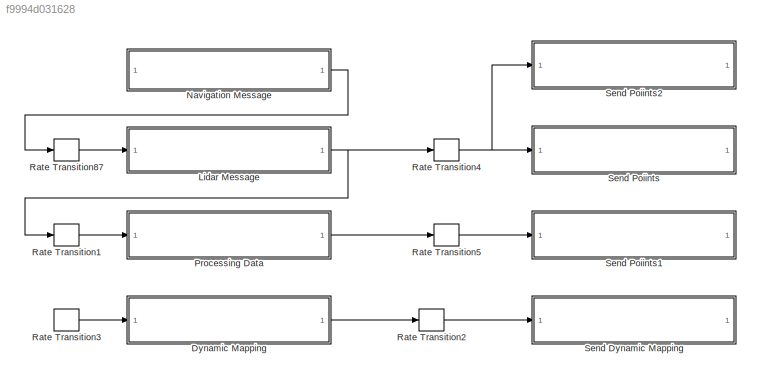
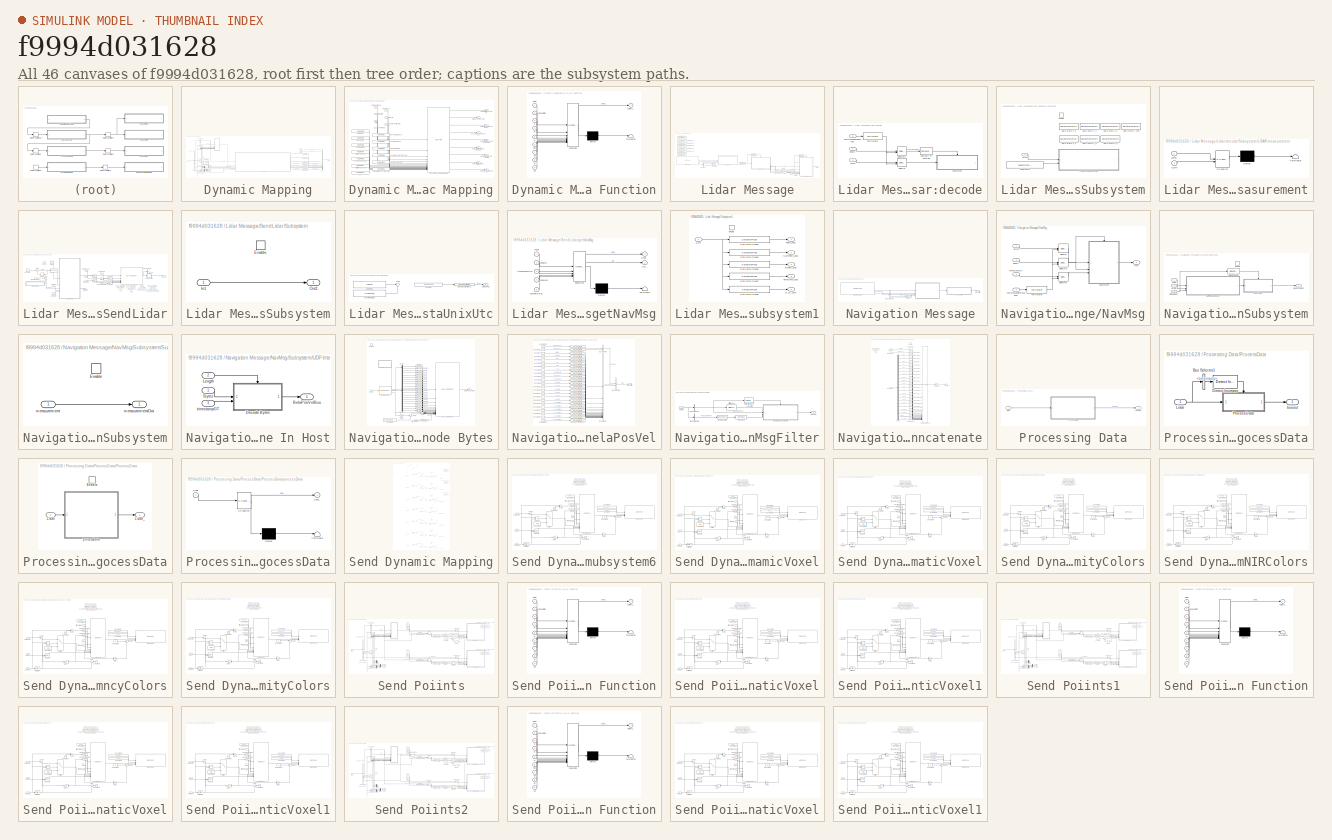
[diagram: thumbnail index - all 46 canvases of the model, root first then tree order]
MODEL slx_f9994d031628
KIND model
CONFIG AbsTol = auto
CONFIG EnableMultiTasking = on
CONFIG FixedStep = 0.025
CONFIG MaxStep = auto
CONFIG MinStep = auto
CONFIG RelTol = 1e-3
CONFIG SampleTimeConstraint = Unconstrained
CONFIG SolverName = FixedStepAuto
CONFIG StartTime = 0.0
CONFIG StopTime = inf
BLOCK [SubSystem] Dynamic Mapping
  Commented = on
  PartitionName = DynamicMapping
  ScheduleAs = Periodic partition
  SystemSampleTime = 0.1
  TreatAsAtomicUnit = on
BLOCK [BusCreator] Dynamic Mapping/Bus Creator
  DisplayOption = bar
  InheritFromInputs = on
  Inputs = 11
BLOCK [BusSelector] Dynamic Mapping/Bus Selector
  OutputSignals = lidarMeasurement2,navMeasurement,timestamp.timestamp,lidarMeasurement2.pointsReflect,nodeID
BLOCK [BusSelector] Dynamic Mapping/Bus Selector1
  OutputSignals = north,east,down,qw,qx,qy,qz
BLOCK [BusSelector] Dynamic Mapping/Bus Selector2
  OutputSignals = points,numberPoint
BLOCK [BusSelector] Dynamic Mapping/Bus Selector3
  OutputSignals = roll,pitch,yaw
BLOCK [DataTypeConversion] Dynamic Mapping/Cast
  OutDataTypeStr = single
  RndMeth = Floor
  SaturateOnIntegerOverflow = off
BLOCK [SubSystem] Dynamic Mapping/Dynamic Mapping
BLOCK [Inport] Dynamic Mapping/Dynamic Mapping/NIR
  Port = 5
BLOCK [Inport] Dynamic Mapping/Dynamic Mapping/NumFrame
  Port = 7
BLOCK [S-Function] Dynamic Mapping/Dynamic Mapping/SFunctionDynamicMapping
  EnableBusSupport = off
  FunctionName = SFunctionDynamicMapping
  Parameters = SampleTime
  SFcnIsStateOwnerBlock = off
  SFunctionDeploymentMode = off
BLOCK [Constant] Dynamic Mapping/Dynamic Mapping/clusterTolerance
  OutDataTypeStr = single
  Value = Parameter4
BLOCK [Constant] Dynamic Mapping/Dynamic Mapping/densityThreshold
  OutDataTypeStr = single
  Value = Parameter9
BLOCK [Constant] Dynamic Mapping/Dynamic Mapping/dt
  OutDataTypeStr = double
  Value = Parameter13
BLOCK [Constant] Dynamic Mapping/Dynamic Mapping/dynamicScoreThreshold
  OutDataTypeStr = single
  Value = Parameter8
BLOCK [Outport] Dynamic Mapping/Dynamic Mapping/dynamicVoxelVecSize
  Port = 4
BLOCK [Inport] Dynamic Mapping/Dynamic Mapping/inputCloud
  Port = 2
BLOCK [Inport] Dynamic Mapping/Dynamic Mapping/intensity
  Port = 4
BLOCK [Constant] Dynamic Mapping/Dynamic Mapping/mapCenter
  OutDataTypeStr = single
  Value = Parameter3
BLOCK [Constant] Dynamic Mapping/Dynamic Mapping/mapRes
  OutDataTypeStr = single
  Value = Parameter1
BLOCK [Constant] Dynamic Mapping/Dynamic Mapping/maxClusterSize
  OutDataTypeStr = uint32
  Value = Parameter6
BLOCK [Constant] Dynamic Mapping/Dynamic Mapping/maxDistanceThreshold
  OutDataTypeStr = single
  Value = Parameter12
BLOCK [Constant] Dynamic Mapping/Dynamic Mapping/minClusterSize
  OutDataTypeStr = uint32
  Value = Parameter5
BLOCK [Inport] Dynamic Mapping/Dynamic Mapping/numInputCloud
BLOCK [Outport] Dynamic Mapping/Dynamic Mapping/outputDynamicColors
  Port = 9
BLOCK [Outport] Dynamic Mapping/Dynamic Mapping/outputDynamicVoxelVec
  Port = 3
BLOCK [Outport] Dynamic Mapping/Dynamic Mapping/outputStaticIntensityColors
  Port = 7
BLOCK [Outport] Dynamic Mapping/Dynamic Mapping/outputStaticNIRColors
  Port = 8
BLOCK [Outport] Dynamic Mapping/Dynamic Mapping/outputStaticOccupancyColors
  Port = 5
BLOCK [Outport] Dynamic Mapping/Dynamic Mapping/outputStaticReflectivityColors
  Port = 6
BLOCK [Outport] Dynamic Mapping/Dynamic Mapping/outputStaticVoxelVec
BLOCK [Constant] Dynamic Mapping/Dynamic Mapping/reachingDistance
  OutDataTypeStr = single
  Value = Parameter2
BLOCK [Inport] Dynamic Mapping/Dynamic Mapping/reflectivity
  Port = 3
BLOCK [Constant] Dynamic Mapping/Dynamic Mapping/similarityThreshold
  OutDataTypeStr = single
  Value = Parameter11
BLOCK [Constant] Dynamic Mapping/Dynamic Mapping/staticThreshold
  OutDataTypeStr = single
  Value = Parameter7
BLOCK [Outport] Dynamic Mapping/Dynamic Mapping/staticVoxelVecSize
  Port = 2
BLOCK [Inport] Dynamic Mapping/Dynamic Mapping/vehiclePosition(NED)
  Port = 6
BLOCK [Constant] Dynamic Mapping/Dynamic Mapping/velocityThreshold
  OutDataTypeStr = single
  Value = Parameter10
BLOCK [From] Dynamic Mapping/From
BLOCK [From] Dynamic Mapping/From1
  GotoTag = B
BLOCK [Goto] Dynamic Mapping/Goto
BLOCK [Goto] Dynamic Mapping/Goto1
  GotoTag = B
BLOCK [Inport] Dynamic Mapping/Lidar
BLOCK [SubSystem] Dynamic Mapping/MATLAB Function
  ErrorFcn = Stateflow.Translate.translate
  PermitHierarchicalResolution = ExplicitOnly
  SFBlockType = MATLAB Function
  TreatAsAtomicUnit = on
BLOCK [Demux] Dynamic Mapping/MATLAB Function/ Demux 
  Outputs = 1
BLOCK [S-Function] Dynamic Mapping/MATLAB Function/ SFunction 
  EnableBusSupport = on
  FunctionName = sf_sfun
  PortCounts = [9 2]
  SFcnIsStateOwnerBlock = off
  SFunctionDeploymentMode = off
  Tag = Stateflow S-Function 2
BLOCK [Terminator] Dynamic Mapping/MATLAB Function/ Terminator 
BLOCK [Inport] Dynamic Mapping/MATLAB Function/D
  Port = 5
BLOCK [Inport] Dynamic Mapping/MATLAB Function/E
  Port = 4
BLOCK [Inport] Dynamic Mapping/MATLAB Function/N
  Port = 3
BLOCK [Inport] Dynamic Mapping/MATLAB Function/Point
BLOCK [Inport] Dynamic Mapping/MATLAB Function/numPoint
  Port = 2
BLOCK [Outport] Dynamic Mapping/MATLAB Function/points_
BLOCK [Inport] Dynamic Mapping/MATLAB Function/qw
  Port = 6
BLOCK [Inport] Dynamic Mapping/MATLAB Function/qx
  Port = 7
BLOCK [Inport] Dynamic Mapping/MATLAB Function/qy
  Port = 8
BLOCK [Inport] Dynamic Mapping/MATLAB Function/qz
  Port = 9
BLOCK [Mux] Dynamic Mapping/Mux
  DisplayOption = bar
  Inputs = 3
BLOCK [Mux] Dynamic Mapping/Mux1
  DisplayOption = bar
  Inputs = 3
BLOCK [Mux] Dynamic Mapping/Mux2
  DisplayOption = bar
  Inputs = 2
BLOCK [Outport] Dynamic Mapping/Output
BLOCK [Reshape] Dynamic Mapping/Reshape
  OutputDimensionality = Customize
  OutputDimensions = [128*1024*5,3]
BLOCK [Reshape] Dynamic Mapping/Reshape1
  OutputDimensionality = Customize
  OutputDimensions = [128*1024,3]
BLOCK [Reshape] Dynamic Mapping/Reshape2
  OutputDimensionality = Customize
  OutputDimensions = [128*1024*5,3]
BLOCK [Reshape] Dynamic Mapping/Reshape3
  OutputDimensionality = Customize
  OutputDimensions = [128*1024*5,3]
BLOCK [Reshape] Dynamic Mapping/Reshape4
  OutputDimensionality = Customize
  OutputDimensions = [128*1024*5,3]
BLOCK [Reshape] Dynamic Mapping/Reshape5
  OutputDimensionality = Customize
  OutputDimensions = [128*1024*5,3]
BLOCK [Reshape] Dynamic Mapping/Reshape6
  OutputDimensionality = Customize
  OutputDimensions = [128*1024,3]
BLOCK [Reshape] Dynamic Mapping/Reshape7
  OutputDimensionality = Customize
  OutputDimensions = [3,1]
BLOCK [Selector] Dynamic Mapping/Selector
  IndexOptions = Select all,Index vector (dialog)
  Indices = [1 3],1
  InputPortWidth = 3
  NumberOfDimensions = 2
  OutputSizes = 1,1
BLOCK [Selector] Dynamic Mapping/Selector1
  IndexOptions = Select all,Index vector (dialog)
  Indices = [1 3],2
  InputPortWidth = 3
  NumberOfDimensions = 2
  OutputSizes = 1,1
BLOCK [Selector] Dynamic Mapping/Selector2
  IndexOptions = Select all,Index vector (dialog)
  Indices = [1 3],2
  InputPortWidth = 3
  NumberOfDimensions = 2
  OutputSizes = 1,1
BLOCK [SubSystem] Lidar Message
  PartitionName = LidarMessageOS2
  ScheduleAs = Periodic partition
  SystemSampleTime = param.rateTransition_LidarMessage
  TreatAsAtomicUnit = on
BLOCK [BusSelector] Lidar Message/Bus Selector
  OutputSignals = numReceivedMessages,timestamp
BLOCK [DataTypeConversion] Lidar Message/Cast To int32
  OutDataTypeStr = int32
  RndMeth = Floor
  SaturateOnIntegerOverflow = off
BLOCK [DataStoreMemory] Lidar Message/Data Store Memory1
  DataStoreName = Speicher1_XYZ_body
  InitialValue = ones(128*1024,  3, 2, 'single')
  OutDataTypeStr = single
  ShareAcrossModelInstances = on
  ShowAdditionalParam = off
  SignalType = real
BLOCK [DataStoreMemory] Lidar Message/Data Store Memory10
  DataStoreName = Speicher1_timestamp_body
  InitialValue = ones(128* 1024,  2, 'double')
  OutDataTypeStr = double
  ShareAcrossModelInstances = on
  ShowAdditionalParam = off
  SignalType = real
BLOCK [DataStoreMemory] Lidar Message/Data Store Memory11
  DataStoreName = Speicher1_M_ID_body
  InitialValue = ones(128* 1024,  2, 'double')
  OutDataTypeStr = single
  ShareAcrossModelInstances = on
  ShowAdditionalParam = off
  SignalType = real
BLOCK [DataStoreMemory] Lidar Message/Data Store Memory2
  DataStoreName = Speicher1_numPoints_body
  InitialValue = [0 0]
  OutDataTypeStr = uint32
  ShareAcrossModelInstances = on
  ShowAdditionalParam = off
  SignalType = real
BLOCK [DataStoreMemory] Lidar Message/Data Store Memory3
  DataStoreName = Speicher_1v2
  InitialValue = 2
  OutDataTypeStr = uint8
  ShareAcrossModelInstances = on
  ShowAdditionalParam = off
  SignalType = real
BLOCK [DataStoreMemory] Lidar Message/Data Store Memory4
  DataStoreName = Cnt_1v2
  InitialValue = 1
  OutDataTypeStr = uint8
  ShareAcrossModelInstances = on
  ShowAdditionalParam = off
  SignalType = real
BLOCK [DataStoreMemory] Lidar Message/Data Store Memory9
  DataStoreName = Speicher1_Reflect_body
  InitialValue = ones(128*1024,  3, 2, 'single')
  OutDataTypeStr = single
  ShareAcrossModelInstances = on
  ShowAdditionalParam = off
  SignalType = real
BLOCK [DataStoreRead] Lidar Message/Data Store Read4
  DataStoreName = Speicher_1v2
  IndexOptions = Index vector (dialog)
  Indices = 1
  OutputSizes = 1
BLOCK [Reference] Lidar Message/Detect Change3  REF=simulink/Logic and Bit
Operations/Detect
Change
  SourceBlock = simulink/Logic and Bit\nOperations/Detect\nChange
  SourceType = Detect Change
BLOCK [Reference] Lidar Message/Detect Increase  REF=simulink/Logic and Bit
Operations/Detect
Increase
  SourceBlock = simulink/Logic and Bit\nOperations/Detect\nIncrease
  SourceType = Detect Increase
BLOCK [From] Lidar Message/From
BLOCK [Goto] Lidar Message/Goto
BLOCK [Outport] Lidar Message/Lidar1
BLOCK [SubSystem] Lidar Message/Lidar:decode
  TreatAsAtomicUnit = on
BLOCK [Reference] Lidar Message/Lidar:decode/Compare To Constant  REF=simulink/Logic and Bit
Operations/Compare
To Constant
  SourceBlock = simulink/Logic and Bit\nOperations/Compare\nTo Constant
  SourceType = Compare To Constant
BLOCK [ForIterator] Lidar Message/Lidar:decode/ForIterator
  IterationSource = external
  ResetStates = reset
BLOCK [Selector] Lidar Message/Lidar:decode/Selector
  IndexOptions = Select all,Index vector (port)
  Indices = [1 3],1
  InputPortWidth = 3
  NumberOfDimensions = 2
  OutputSizes = 1,1
BLOCK [Selector] Lidar Message/Lidar:decode/Selector2
  IndexOptions = Index vector (port)
  Indices = [1 3]
  InputPortWidth = 40
  OutputSizes = 1
BLOCK [SubSystem] Lidar Message/Lidar:decode/Subsystem
BLOCK [Constant] Lidar Message/Lidar:decode/Subsystem/Constant11
  Value = sensorData.n_mm
BLOCK [DataStoreMemory] Lidar Message/Lidar:decode/Subsystem/Data Store r_min
  DataStoreName = r_min
  InitialValue = sensorData.r_min-sensorData.n_mm
  OutDataTypeStr = double
  ReadBeforeWriteMsg = warning
  ShareAcrossModelInstances = on
  ShowAdditionalParam = off
  SignalType = real
  WriteAfterReadMsg = warning
  WriteAfterWriteMsg = warning
BLOCK [DataStoreMemory] Lidar Message/Lidar:decode/Subsystem/Data Store x_1
  DataStoreName = x_1
  InitialValue = sensorData.x_1
  OutDataTypeStr = double
  ReadBeforeWriteMsg = warning
  ShareAcrossModelInstances = on
  ShowAdditionalParam = off
  SignalType = real
  WriteAfterReadMsg = warning
  WriteAfterWriteMsg = warning
BLOCK [DataStoreMemory] Lidar Message/Lidar:decode/Subsystem/Data Store x_2
  DataStoreName = x_2
  InitialValue = sensorData.x_2
  OutDataTypeStr = double
  ReadBeforeWriteMsg = warning
  ShareAcrossModelInstances = on
  ShowAdditionalParam = off
  SignalType = real
  WriteAfterReadMsg = warning
  WriteAfterWriteMsg = warning
BLOCK [DataStoreMemory] Lidar Message/Lidar:decode/Subsystem/Data Store y_1
  DataStoreName = y_1
  InitialValue = sensorData.y_1
  OutDataTypeStr = double
  ReadBeforeWriteMsg = warning
  ShareAcrossModelInstances = on
  ShowAdditionalParam = off
  SignalType = real
  WriteAfterReadMsg = warning
  WriteAfterWriteMsg = warning
BLOCK [DataStoreMemory] Lidar Message/Lidar:decode/Subsystem/Data Store y_2
  DataStoreName = y_2
  InitialValue = sensorData.y_2
  OutDataTypeStr = double
  ReadBeforeWriteMsg = warning
  ShareAcrossModelInstances = on
  ShowAdditionalParam = off
  SignalType = real
  WriteAfterReadMsg = warning
  WriteAfterWriteMsg = warning
BLOCK [DataStoreMemory] Lidar Message/Lidar:decode/Subsystem/Data Store z_1
  DataStoreName = z_1
  InitialValue = sensorData.z_1
  OutDataTypeStr = double
  ReadBeforeWriteMsg = warning
  ShareAcrossModelInstances = on
  ShowAdditionalParam = off
  SignalType = real
  WriteAfterReadMsg = warning
  WriteAfterWriteMsg = warning
BLOCK [DataStoreMemory] Lidar Message/Lidar:decode/Subsystem/Data Store z_2
  DataStoreName = z_2
  InitialValue = sensorData.z_2
  OutDataTypeStr = double
  ReadBeforeWriteMsg = warning
  ShareAcrossModelInstances = on
  ShowAdditionalParam = off
  SignalType = real
  WriteAfterReadMsg = warning
  WriteAfterWriteMsg = warning
BLOCK [EnablePort] Lidar Message/Lidar:decode/Subsystem/Enable
BLOCK [SubSystem] Lidar Message/Lidar:decode/Subsystem/LIDAR:measurement
  ErrorFcn = Stateflow.Translate.translate
  PermitHierarchicalResolution = ExplicitOnly
  SFBlockType = MATLAB Function
  TreatAsAtomicUnit = on
BLOCK [Demux] Lidar Message/Lidar:decode/Subsystem/LIDAR:measurement/ Demux 
  Outputs = 1
BLOCK [S-Function] Lidar Message/Lidar:decode/Subsystem/LIDAR:measurement/ SFunction 
  EnableBusSupport = on
  FunctionName = sf_sfun
  PortCounts = [2 1]
  SFcnIsStateOwnerBlock = off
  SFunctionDeploymentMode = off
  Tag = Stateflow S-Function 12
BLOCK [Terminator] Lidar Message/Lidar:decode/Subsystem/LIDAR:measurement/ Terminator 
BLOCK [Inport] Lidar Message/Lidar:decode/Subsystem/LIDAR:measurement/bytes
BLOCK [Inport] Lidar Message/Lidar:decode/Subsystem/LIDAR:measurement/n_mm
  Port = 2
BLOCK [Inport] Lidar Message/Lidar:decode/Subsystem/bytes
BLOCK [Inport] Lidar Message/Lidar:decode/bytes
BLOCK [Inport] Lidar Message/Lidar:decode/length
  Port = 2
BLOCK [Inport] Lidar Message/Lidar:decode/numMessagesReceived
  OutDataTypeStr = int32
  Port = 3
  PortDimensions = 1
BLOCK [Inport] Lidar Message/NavMsg
BLOCK [Selector] Lidar Message/Selector
  IndexOptions = Index vector (dialog),Index vector (dialog)
  Indices = 1,1
  InputPortWidth = 3
  NumberOfDimensions = 2
  OutputSizes = 1,1
BLOCK [Selector] Lidar Message/Selector2
  IndexOptions = Index vector (dialog),Select all
  Indices = 1,1
  InputPortWidth = 3
  NumberOfDimensions = 2
  OutputSizes = 1,1
BLOCK [SubSystem] Lidar Message/SendLidar
BLOCK [BusAssignment] Lidar Message/SendLidar/Bus Assignment
  AssignedSignals = timestamp.timestampGT,lidarMeasurement.numberPoint,lidarMeasurement.points,lidarMeasurement.pointsReflect,lidarMeasurement.pointsTimestamp,lidarMeasurement.pointsMeasurementID
BLOCK [BusSelector] Lidar Message/SendLidar/Bus Selector3
  OutputSignals = valid
BLOCK [DataTypeConversion] Lidar Message/SendLidar/Cast
  OutDataTypeStr = uint32
  RndMeth = Floor
  SaturateOnIntegerOverflow = off
BLOCK [Constant] Lidar Message/SendLidar/Constant
  Value = numDelay
BLOCK [Constant] Lidar Message/SendLidar/Constant1
  OutDataTypeStr = uint32
BLOCK [EnablePort] Lidar Message/SendLidar/Enable
BLOCK [Memory] Lidar Message/SendLidar/Memory
  InheritSampleTime = on
  LinearizeAsDelay = on
  NameLocation = top
BLOCK [Selector] Lidar Message/SendLidar/Selector
  IndexOptions = Index vector (dialog),Select all
  Indices = 1:131072,1
  InputPortWidth = 3
  NumberOfDimensions = 2
  OutputSizes = 1,1
BLOCK [Selector] Lidar Message/SendLidar/Selector1
  IndexOptions = Index vector (dialog),Select all
  Indices = 1:131072,1
  InputPortWidth = 3
  NumberOfDimensions = 2
  OutputSizes = 1,1
BLOCK [Selector] Lidar Message/SendLidar/Selector2
  IndexOptions = Index vector (dialog),Select all
  Indices = 1:131072,1
  InputPortWidth = 3
  NumberOfDimensions = 2
  OutputSizes = 1,1
BLOCK [Selector] Lidar Message/SendLidar/Selector3
  IndexOptions = Index vector (dialog),Select all
  Indices = 1:131072,1
  InputPortWidth = 3
  NumberOfDimensions = 2
  OutputSizes = 1,1
BLOCK [Step] Lidar Message/SendLidar/Step
  After = 0
  Before = 1
  Time = 10
BLOCK [SubSystem] Lidar Message/SendLidar/Subsystem
BLOCK [EnablePort] Lidar Message/SendLidar/Subsystem/Enable
BLOCK [Inport] Lidar Message/SendLidar/Subsystem/In1
BLOCK [Outport] Lidar Message/SendLidar/Subsystem/Out1
BLOCK [Sum] Lidar Message/SendLidar/Sum
  Inputs = |++
BLOCK [Sum] Lidar Message/SendLidar/Sum1
  Inputs = |++
  LockScale = on
BLOCK [Terminator] Lidar Message/SendLidar/Terminator
BLOCK [Outport] Lidar Message/SendLidar/busout
BLOCK [SubSystem] Lidar Message/SendLidar/deltaUnixUtc
BLOCK [Constant] Lidar Message/SendLidar/deltaUnixUtc/Constant
  Value = -1690934400
BLOCK [SignalSpecification] Lidar Message/SendLidar/deltaUnixUtc/Signal Specification31
  Dimensions = 1
  OutDataTypeStr = double
  SignalType = real
  Unit = s
BLOCK [Sum] Lidar Message/SendLidar/deltaUnixUtc/Sum2
  Commented = on
  Inputs = |-+
BLOCK [Reference] Lidar Message/SendLidar/deltaUnixUtc/UNIX Time2  REF=GenericTarget/Time/UNIX Time
  Commented = on
  SourceBlock = GenericTarget/Time/UNIX Time
  SourceProductName = Generic Target
BLOCK [Reference] Lidar Message/SendLidar/deltaUnixUtc/UTC Timestamp2  REF=GenericTarget/Time/UTC Timestamp
  Commented = on
  SourceBlock = GenericTarget/Time/UTC Timestamp
  SourceProductName = Generic Target
BLOCK [Outport] Lidar Message/SendLidar/deltaUnixUtc/deltaUnixUtc
BLOCK [SubSystem] Lidar Message/SendLidar/getNavMsg
  ErrorFcn = Stateflow.Translate.translate
  PermitHierarchicalResolution = ExplicitOnly
  SFBlockType = MATLAB Function
  TreatAsAtomicUnit = on
BLOCK [Demux] Lidar Message/SendLidar/getNavMsg/ Demux 
  Outputs = 1
BLOCK [S-Function] Lidar Message/SendLidar/getNavMsg/ SFunction 
  EnableBusSupport = on
  FunctionName = sf_sfun
  PortCounts = [5 3]
  SFcnIsStateOwnerBlock = off
  SFunctionDeploymentMode = off
  Tag = Stateflow S-Function 3
BLOCK [Terminator] Lidar Message/SendLidar/getNavMsg/ Terminator 
BLOCK [Outport] Lidar Message/SendLidar/getNavMsg/Lidar_
BLOCK [Outport] Lidar Message/SendLidar/getNavMsg/idx_
  Port = 2
BLOCK [Inport] Lidar Message/SendLidar/getNavMsg/navMsg
  Port = 4
BLOCK [Inport] Lidar Message/SendLidar/getNavMsg/nodeID
  Port = 2
BLOCK [Inport] Lidar Message/SendLidar/getNavMsg/numberDelay
  Port = 5
BLOCK [Inport] Lidar Message/SendLidar/getNavMsg/reset
BLOCK [Inport] Lidar Message/SendLidar/getNavMsg/timestampUTC
  Port = 3
BLOCK [Inport] Lidar Message/SendLidar/measurementID
  Port = 5
BLOCK [Inport] Lidar Message/SendLidar/navMsg
  NameLocation = top
  Port = 8
BLOCK [Inport] Lidar Message/SendLidar/numPoints
  Port = 2
BLOCK [Inport] Lidar Message/SendLidar/points
BLOCK [Inport] Lidar Message/SendLidar/reflects
  Port = 3
BLOCK [Inport] Lidar Message/SendLidar/timeStamp
  Port = 4
BLOCK [Inport] Lidar Message/SendLidar/timeStampGT
  Port = 7
BLOCK [Inport] Lidar Message/SendLidar/timeStampLidar
  Port = 6
BLOCK [SubSystem] Lidar Message/Subsystem1
BLOCK [DataStoreRead] Lidar Message/Subsystem1/Data Store Read3
  DataStoreElements = Speicher1_XYZ_body
  DataStoreName = Speicher1_XYZ_body
  EnableIndexing = on
  IndexOptions = Select all,Select all,Index vector (port)
  Indices = 1,1,1
  NumberOfDimensions = 3
  OutputSizes = 1,1,1
BLOCK [DataStoreRead] Lidar Message/Subsystem1/Data Store Read5
  DataStoreElements = Speicher1_numPoints_body
  DataStoreName = Speicher1_numPoints_body
  EnableIndexing = on
  IndexOptions = Index vector (port)
  Indices = 1
  OutputSizes = 1
BLOCK [DataStoreRead] Lidar Message/Subsystem1/Data Store Read6
  DataStoreElements = Speicher1_Reflect_body
  DataStoreName = Speicher1_Reflect_body
  EnableIndexing = on
  IndexOptions = Select all,Select all,Index vector (port)
  Indices = 1,1,1
  NumberOfDimensions = 3
  OutputSizes = 1,1,1
BLOCK [DataStoreRead] Lidar Message/Subsystem1/Data Store Read7
  DataStoreElements = Speicher1_timestamp_body
  DataStoreName = Speicher1_timestamp_body
  EnableIndexing = on
  IndexOptions = Select all,Index vector (port)
  Indices = 1,1
  NumberOfDimensions = 2
  OutputSizes = 1,1
BLOCK [DataStoreRead] Lidar Message/Subsystem1/Data Store Read8
  DataStoreElements = Speicher1_M_ID_body
  DataStoreName = Speicher1_M_ID_body
  EnableIndexing = on
  IndexOptions = Select all,Index vector (port)
  Indices = 1,1
  NumberOfDimensions = 2
  OutputSizes = 1,1
BLOCK [EnablePort] Lidar Message/Subsystem1/Enable
BLOCK [Outport] Lidar Message/Subsystem1/M_ID_body
  Port = 5
BLOCK [Outport] Lidar Message/Subsystem1/NumPoints_body
  Port = 2
BLOCK [Outport] Lidar Message/Subsystem1/Points_body
BLOCK [Outport] Lidar Message/Subsystem1/Reflect_body
  Port = 3
BLOCK [Inport] Lidar Message/Subsystem1/S_1v2
BLOCK [Outport] Lidar Message/Subsystem1/Timestamp_body
  Port = 4
BLOCK [Reference] Lidar Message/UDP Receive1  REF=GenericTarget/Interface/UDP Receive
  SourceBlock = GenericTarget/Interface/UDP Receive
  SourceProductName = Generic Target
BLOCK [SubSystem] Navigation Message
  PartitionName = NavigationMessage
  ScheduleAs = Periodic partition
  SystemSampleTime = 0.025
  TreatAsAtomicUnit = on
BLOCK [BusSelector] Navigation Message/Bus Selector
  OutputSignals = timestamp,numReceivedMessages
BLOCK [DataTypeConversion] Navigation Message/Cast
  OutDataTypeStr = int32
  RndMeth = Floor
  SaturateOnIntegerOverflow = off
BLOCK [Outport] Navigation Message/NavFilter
BLOCK [SubSystem] Navigation Message/NavMsg
BLOCK [Inport] Navigation Message/NavMsg/Bytes
BLOCK [ForIterator] Navigation Message/NavMsg/ForIterator
  IterationSource = external
BLOCK [Outport] Navigation Message/NavMsg/Nav
BLOCK [Selector] Navigation Message/NavMsg/Selector
  IndexOptions = Select all,Index vector (port)
  Indices = [1 3],1
  InputPortWidth = 3
  NumberOfDimensions = 2
  OutputSizes = 1,1
BLOCK [Selector] Navigation Message/NavMsg/Selector1
  IndexOptions = Index vector (port)
  Indices = [1 3]
  InputPortWidth = 5
  OutputSizes = 1
BLOCK [Selector] Navigation Message/NavMsg/Selector2
  IndexOptions = Index vector (port)
  Indices = [1 3]
  InputPortWidth = 5
  OutputSizes = 1
BLOCK [SubSystem] Navigation Message/NavMsg/Subsystem
BLOCK [Inport] Navigation Message/NavMsg/Subsystem/Bytes
BLOCK [Reference] Navigation Message/NavMsg/Subsystem/Detect Change  REF=simulink/Logic and Bit
Operations/Detect
Change
  SourceBlock = simulink/Logic and Bit\nOperations/Detect\nChange
  SourceType = Detect Change
BLOCK [EnablePort] Navigation Message/NavMsg/Subsystem/Enable
BLOCK [Inport] Navigation Message/NavMsg/Subsystem/Length
  Port = 2
BLOCK [SubSystem] Navigation Message/NavMsg/Subsystem/Subsystem
BLOCK [EnablePort] Navigation Message/NavMsg/Subsystem/Subsystem/Enable
BLOCK [Inport] Navigation Message/NavMsg/Subsystem/Subsystem/measurement
BLOCK [Outport] Navigation Message/NavMsg/Subsystem/Subsystem/measurementOut
BLOCK [SubSystem] Navigation Message/NavMsg/Subsystem/UDP Interface In Host
BLOCK [Outport] Navigation Message/NavMsg/Subsystem/UDP Interface In Host/BelaPosVelBus
BLOCK [Inport] Navigation Message/NavMsg/Subsystem/UDP Interface In Host/Bytes
  OutDataTypeStr = uint8
BLOCK [SubSystem] Navigation Message/NavMsg/Subsystem/UDP Interface In Host/Decode Bytes
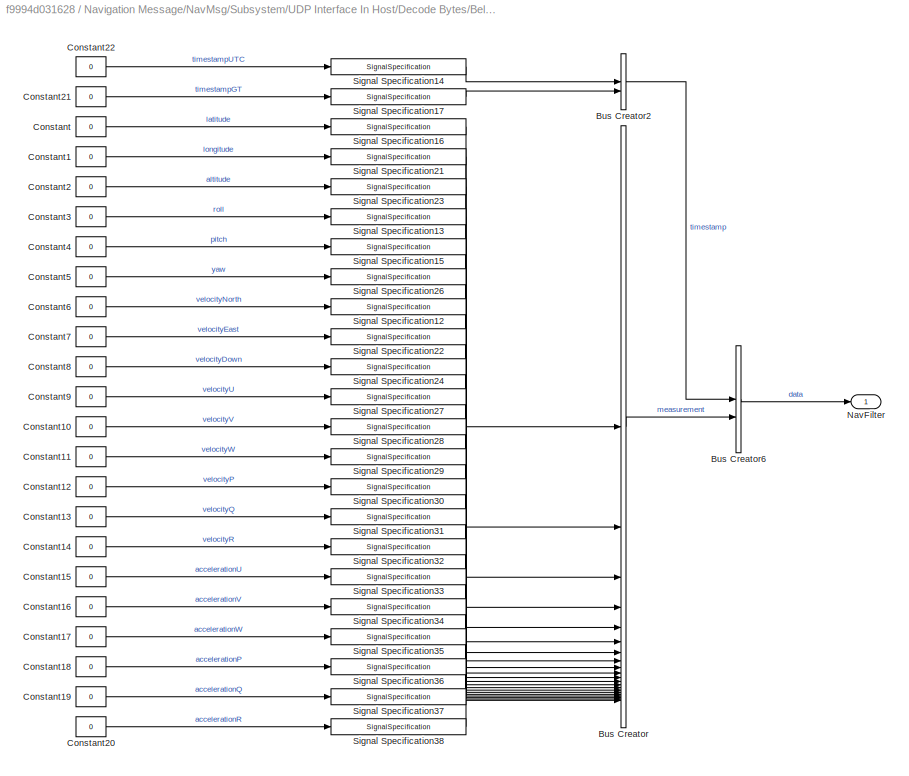
BLOCK [SubSystem] Navigation Message/NavMsg/Subsystem/UDP Interface In Host/Decode Bytes/BelaPosVel
BLOCK [BusCreator] Navigation Message/NavMsg/Subsystem/UDP Interface In Host/Decode Bytes/BelaPosVel/Bus Creator
  DisplayOption = bar
  InheritFromInputs = on
  Inputs = 21
BLOCK [BusCreator] Navigation Message/NavMsg/Subsystem/UDP Interface In Host/Decode Bytes/BelaPosVel/Bus Creator2
  DisplayOption = bar
  InheritFromInputs = on
  Inputs = 2
BLOCK [BusCreator] Navigation Message/NavMsg/Subsystem/UDP Interface In Host/Decode Bytes/BelaPosVel/Bus Creator6
  DisplayOption = bar
  InheritFromInputs = on
  Inputs = 2
BLOCK [Constant] Navigation Message/NavMsg/Subsystem/UDP Interface In Host/Decode Bytes/BelaPosVel/Constant
  OutDataTypeStr = double
  Value = 0
BLOCK [Constant] Navigation Message/NavMsg/Subsystem/UDP Interface In Host/Decode Bytes/BelaPosVel/Constant1
  OutDataTypeStr = double
  Value = 0
BLOCK [Constant] Navigation Message/NavMsg/Subsystem/UDP Interface In Host/Decode Bytes/BelaPosVel/Constant10
  OutDataTypeStr = double
  Value = 0
BLOCK [Constant] Navigation Message/NavMsg/Subsystem/UDP Interface In Host/Decode Bytes/BelaPosVel/Constant11
  OutDataTypeStr = double
  Value = 0
BLOCK [Constant] Navigation Message/NavMsg/Subsystem/UDP Interface In Host/Decode Bytes/BelaPosVel/Constant12
  OutDataTypeStr = double
  Value = 0
BLOCK [Constant] Navigation Message/NavMsg/Subsystem/UDP Interface In Host/Decode Bytes/BelaPosVel/Constant13
  OutDataTypeStr = double
  Value = 0
BLOCK [Constant] Navigation Message/NavMsg/Subsystem/UDP Interface In Host/Decode Bytes/BelaPosVel/Constant14
  OutDataTypeStr = double
  Value = 0
BLOCK [Constant] Navigation Message/NavMsg/Subsystem/UDP Interface In Host/Decode Bytes/BelaPosVel/Constant15
  OutDataTypeStr = double
  Value = 0
BLOCK [Constant] Navigation Message/NavMsg/Subsystem/UDP Interface In Host/Decode Bytes/BelaPosVel/Constant16
  OutDataTypeStr = double
  Value = 0
BLOCK [Constant] Navigation Message/NavMsg/Subsystem/UDP Interface In Host/Decode Bytes/BelaPosVel/Constant17
  OutDataTypeStr = double
  Value = 0
BLOCK [Constant] Navigation Message/NavMsg/Subsystem/UDP Interface In Host/Decode Bytes/BelaPosVel/Constant18
  OutDataTypeStr = double
  Value = 0
BLOCK [Constant] Navigation Message/NavMsg/Subsystem/UDP Interface In Host/Decode Bytes/BelaPosVel/Constant19
  OutDataTypeStr = double
  Value = 0
BLOCK [Constant] Navigation Message/NavMsg/Subsystem/UDP Interface In Host/Decode Bytes/BelaPosVel/Constant2
  OutDataTypeStr = double
  Value = 0
BLOCK [Constant] Navigation Message/NavMsg/Subsystem/UDP Interface In Host/Decode Bytes/BelaPosVel/Constant20
  OutDataTypeStr = double
  Value = 0
BLOCK [Constant] Navigation Message/NavMsg/Subsystem/UDP Interface In Host/Decode Bytes/BelaPosVel/Constant21
  OutDataTypeStr = double
  Value = 0
BLOCK [Constant] Navigation Message/NavMsg/Subsystem/UDP Interface In Host/Decode Bytes/BelaPosVel/Constant22
  OutDataTypeStr = double
  Value = 0
BLOCK [Constant] Navigation Message/NavMsg/Subsystem/UDP Interface In Host/Decode Bytes/BelaPosVel/Constant3
  OutDataTypeStr = double
  Value = 0
BLOCK [Constant] Navigation Message/NavMsg/Subsystem/UDP Interface In Host/Decode Bytes/BelaPosVel/Constant4
  OutDataTypeStr = double
  Value = 0
BLOCK [Constant] Navigation Message/NavMsg/Subsystem/UDP Interface In Host/Decode Bytes/BelaPosVel/Constant5
  OutDataTypeStr = double
  Value = 0
BLOCK [Constant] Navigation Message/NavMsg/Subsystem/UDP Interface In Host/Decode Bytes/BelaPosVel/Constant6
  OutDataTypeStr = double
  Value = 0
BLOCK [Constant] Navigation Message/NavMsg/Subsystem/UDP Interface In Host/Decode Bytes/BelaPosVel/Constant7
  OutDataTypeStr = double
  Value = 0
BLOCK [Constant] Navigation Message/NavMsg/Subsystem/UDP Interface In Host/Decode Bytes/BelaPosVel/Constant8
  OutDataTypeStr = double
  Value = 0
BLOCK [Constant] Navigation Message/NavMsg/Subsystem/UDP Interface In Host/Decode Bytes/BelaPosVel/Constant9
  OutDataTypeStr = double
  Value = 0
BLOCK [Outport] Navigation Message/NavMsg/Subsystem/UDP Interface In Host/Decode Bytes/BelaPosVel/NavFilter
BLOCK [SignalSpecification] Navigation Message/NavMsg/Subsystem/UDP Interface In Host/Decode Bytes/BelaPosVel/Signal Specification12
  Dimensions = 1
  OutDataTypeStr = double
  SignalType = real
  Unit = m/s
BLOCK [SignalSpecification] Navigation Message/NavMsg/Subsystem/UDP Interface In Host/Decode Bytes/BelaPosVel/Signal Specification13
  Dimensions = 1
  OutDataTypeStr = double
  SignalType = real
  Unit = rad
BLOCK [SignalSpecification] Navigation Message/NavMsg/Subsystem/UDP Interface In Host/Decode Bytes/BelaPosVel/Signal Specification14
  Dimensions = 1
  OutDataTypeStr = double
  SignalType = real
  Unit = s
BLOCK [SignalSpecification] Navigation Message/NavMsg/Subsystem/UDP Interface In Host/Decode Bytes/BelaPosVel/Signal Specification15
  Dimensions = 1
  OutDataTypeStr = double
  SignalType = real
  Unit = rad
BLOCK [SignalSpecification] Navigation Message/NavMsg/Subsystem/UDP Interface In Host/Decode Bytes/BelaPosVel/Signal Specification16
  Dimensions = 1
  OutDataTypeStr = double
  SignalType = real
  Unit = rad
BLOCK [SignalSpecification] Navigation Message/NavMsg/Subsystem/UDP Interface In Host/Decode Bytes/BelaPosVel/Signal Specification17
  Dimensions = 1
  OutDataTypeStr = double
  SignalType = real
  Unit = s
BLOCK [SignalSpecification] Navigation Message/NavMsg/Subsystem/UDP Interface In Host/Decode Bytes/BelaPosVel/Signal Specification21
  Dimensions = 1
  OutDataTypeStr = double
  SignalType = real
  Unit = rad
BLOCK [SignalSpecification] Navigation Message/NavMsg/Subsystem/UDP Interface In Host/Decode Bytes/BelaPosVel/Signal Specification22
  Dimensions = 1
  OutDataTypeStr = double
  SignalType = real
  Unit = m/s
BLOCK [SignalSpecification] Navigation Message/NavMsg/Subsystem/UDP Interface In Host/Decode Bytes/BelaPosVel/Signal Specification23
  Dimensions = 1
  OutDataTypeStr = double
  SignalType = real
  Unit = rad
BLOCK [SignalSpecification] Navigation Message/NavMsg/Subsystem/UDP Interface In Host/Decode Bytes/BelaPosVel/Signal Specification24
  Dimensions = 1
  OutDataTypeStr = double
  SignalType = real
  Unit = m/s
BLOCK [SignalSpecification] Navigation Message/NavMsg/Subsystem/UDP Interface In Host/Decode Bytes/BelaPosVel/Signal Specification26
  Dimensions = 1
  OutDataTypeStr = double
  SignalType = real
  Unit = rad
BLOCK [SignalSpecification] Navigation Message/NavMsg/Subsystem/UDP Interface In Host/Decode Bytes/BelaPosVel/Signal Specification27
  Dimensions = 1
  OutDataTypeStr = double
  SignalType = real
  Unit = m/s
BLOCK [SignalSpecification] Navigation Message/NavMsg/Subsystem/UDP Interface In Host/Decode Bytes/BelaPosVel/Signal Specification28
  Dimensions = 1
  OutDataTypeStr = double
  SignalType = real
  Unit = m/s
BLOCK [SignalSpecification] Navigation Message/NavMsg/Subsystem/UDP Interface In Host/Decode Bytes/BelaPosVel/Signal Specification29
  Dimensions = 1
  OutDataTypeStr = double
  SignalType = real
  Unit = m/s
BLOCK [SignalSpecification] Navigation Message/NavMsg/Subsystem/UDP Interface In Host/Decode Bytes/BelaPosVel/Signal Specification30
  Dimensions = 1
  OutDataTypeStr = double
  SignalType = real
  Unit = rad/s
BLOCK [SignalSpecification] Navigation Message/NavMsg/Subsystem/UDP Interface In Host/Decode Bytes/BelaPosVel/Signal Specification31
  Dimensions = 1
  OutDataTypeStr = double
  SignalType = real
  Unit = rad/s
BLOCK [SignalSpecification] Navigation Message/NavMsg/Subsystem/UDP Interface In Host/Decode Bytes/BelaPosVel/Signal Specification32
  Dimensions = 1
  OutDataTypeStr = double
  SignalType = real
  Unit = rad/s
BLOCK [SignalSpecification] Navigation Message/NavMsg/Subsystem/UDP Interface In Host/Decode Bytes/BelaPosVel/Signal Specification33
  Dimensions = 1
  OutDataTypeStr = double
  SignalType = real
  Unit = m/s^2
BLOCK [SignalSpecification] Navigation Message/NavMsg/Subsystem/UDP Interface In Host/Decode Bytes/BelaPosVel/Signal Specification34
  Dimensions = 1
  OutDataTypeStr = double
  SignalType = real
  Unit = m/s^2
BLOCK [SignalSpecification] Navigation Message/NavMsg/Subsystem/UDP Interface In Host/Decode Bytes/BelaPosVel/Signal Specification35
  Dimensions = 1
  OutDataTypeStr = double
  SignalType = real
  Unit = m/s^2
BLOCK [SignalSpecification] Navigation Message/NavMsg/Subsystem/UDP Interface In Host/Decode Bytes/BelaPosVel/Signal Specification36
  Dimensions = 1
  OutDataTypeStr = double
  SignalType = real
  Unit = rad/s^2
BLOCK [SignalSpecification] Navigation Message/NavMsg/Subsystem/UDP Interface In Host/Decode Bytes/BelaPosVel/Signal Specification37
  Dimensions = 1
  OutDataTypeStr = double
  SignalType = real
  Unit = rad/s^2
BLOCK [SignalSpecification] Navigation Message/NavMsg/Subsystem/UDP Interface In Host/Decode Bytes/BelaPosVel/Signal Specification38
  Dimensions = 1
  OutDataTypeStr = double
  SignalType = real
  Unit = rad/s^2
BLOCK [Outport] Navigation Message/NavMsg/Subsystem/UDP Interface In Host/Decode Bytes/BelaPosVelBus
BLOCK [BusAssignment] Navigation Message/NavMsg/Subsystem/UDP Interface In Host/Decode Bytes/Bus Assignment
  AssignedSignals = measurement.latitude,measurement.longitude,measurement.altitude,measurement.roll,measurement.pitch,measurement.yaw,measurement.velocityU,measurement.velocityV,measurement.velocityW,measurement.velocityP,measurement.velocityQ,measurement.velocityR,measurement.accelerationU,measurement.accelerationV,measurement.accelerationW,measurement.accelerationP,measurement.accelerationQ,measurement.acceleratio...<+123ch>
BLOCK [Reference] Navigation Message/NavMsg/Subsystem/UDP Interface In Host/Decode Bytes/Byte Unpack  REF=etargetslib/Byte Unpack
  SourceBlock = etargetslib/Byte Unpack
  SourceType = Byte Unpack
BLOCK [Inport] Navigation Message/NavMsg/Subsystem/UDP Interface In Host/Decode Bytes/Bytes
BLOCK [DataTypeConversion] Navigation Message/NavMsg/Subsystem/UDP Interface In Host/Decode Bytes/Cast1
  OutDataTypeStr = double
  RndMeth = Floor
  SaturateOnIntegerOverflow = off
BLOCK [DataTypeConversion] Navigation Message/NavMsg/Subsystem/UDP Interface In Host/Decode Bytes/Cast10
  OutDataTypeStr = double
  RndMeth = Floor
  SaturateOnIntegerOverflow = off
BLOCK [DataTypeConversion] Navigation Message/NavMsg/Subsystem/UDP Interface In Host/Decode Bytes/Cast11
  OutDataTypeStr = double
  RndMeth = Floor
  SaturateOnIntegerOverflow = off
BLOCK [DataTypeConversion] Navigation Message/NavMsg/Subsystem/UDP Interface In Host/Decode Bytes/Cast12
  OutDataTypeStr = double
  RndMeth = Floor
  SaturateOnIntegerOverflow = off
BLOCK [DataTypeConversion] Navigation Message/NavMsg/Subsystem/UDP Interface In Host/Decode Bytes/Cast13
  OutDataTypeStr = double
  RndMeth = Floor
  SaturateOnIntegerOverflow = off
BLOCK [DataTypeConversion] Navigation Message/NavMsg/Subsystem/UDP Interface In Host/Decode Bytes/Cast14
  OutDataTypeStr = double
  RndMeth = Floor
  SaturateOnIntegerOverflow = off
BLOCK [DataTypeConversion] Navigation Message/NavMsg/Subsystem/UDP Interface In Host/Decode Bytes/Cast15
  OutDataTypeStr = double
  RndMeth = Floor
  SaturateOnIntegerOverflow = off
BLOCK [DataTypeConversion] Navigation Message/NavMsg/Subsystem/UDP Interface In Host/Decode Bytes/Cast16
  OutDataTypeStr = double
  RndMeth = Floor
  SaturateOnIntegerOverflow = off
BLOCK [DataTypeConversion] Navigation Message/NavMsg/Subsystem/UDP Interface In Host/Decode Bytes/Cast17
  OutDataTypeStr = double
  RndMeth = Floor
  SaturateOnIntegerOverflow = off
BLOCK [DataTypeConversion] Navigation Message/NavMsg/Subsystem/UDP Interface In Host/Decode Bytes/Cast18
  OutDataTypeStr = double
  RndMeth = Floor
  SaturateOnIntegerOverflow = off
BLOCK [DataTypeConversion] Navigation Message/NavMsg/Subsystem/UDP Interface In Host/Decode Bytes/Cast19
  OutDataTypeStr = double
  RndMeth = Floor
  SaturateOnIntegerOverflow = off
BLOCK [DataTypeConversion] Navigation Message/NavMsg/Subsystem/UDP Interface In Host/Decode Bytes/Cast2
  OutDataTypeStr = double
  RndMeth = Floor
  SaturateOnIntegerOverflow = off
BLOCK [DataTypeConversion] Navigation Message/NavMsg/Subsystem/UDP Interface In Host/Decode Bytes/Cast20
  OutDataTypeStr = double
  RndMeth = Floor
  SaturateOnIntegerOverflow = off
BLOCK [DataTypeConversion] Navigation Message/NavMsg/Subsystem/UDP Interface In Host/Decode Bytes/Cast21
  OutDataTypeStr = double
  RndMeth = Floor
  SaturateOnIntegerOverflow = off
BLOCK [DataTypeConversion] Navigation Message/NavMsg/Subsystem/UDP Interface In Host/Decode Bytes/Cast22
  OutDataTypeStr = double
  RndMeth = Floor
  SaturateOnIntegerOverflow = off
BLOCK [DataTypeConversion] Navigation Message/NavMsg/Subsystem/UDP Interface In Host/Decode Bytes/Cast23
  OutDataTypeStr = double
  RndMeth = Floor
  SaturateOnIntegerOverflow = off
BLOCK [DataTypeConversion] Navigation Message/NavMsg/Subsystem/UDP Interface In Host/Decode Bytes/Cast3
  OutDataTypeStr = double
  RndMeth = Floor
  SaturateOnIntegerOverflow = off
BLOCK [DataTypeConversion] Navigation Message/NavMsg/Subsystem/UDP Interface In Host/Decode Bytes/Cast4
  OutDataTypeStr = double
  RndMeth = Floor
  SaturateOnIntegerOverflow = off
BLOCK [DataTypeConversion] Navigation Message/NavMsg/Subsystem/UDP Interface In Host/Decode Bytes/Cast5
  OutDataTypeStr = double
  RndMeth = Floor
  SaturateOnIntegerOverflow = off
BLOCK [DataTypeConversion] Navigation Message/NavMsg/Subsystem/UDP Interface In Host/Decode Bytes/Cast6
  OutDataTypeStr = double
  RndMeth = Floor
  SaturateOnIntegerOverflow = off
BLOCK [DataTypeConversion] Navigation Message/NavMsg/Subsystem/UDP Interface In Host/Decode Bytes/Cast7
  OutDataTypeStr = double
  RndMeth = Floor
  SaturateOnIntegerOverflow = off
BLOCK [DataTypeConversion] Navigation Message/NavMsg/Subsystem/UDP Interface In Host/Decode Bytes/Cast8
  OutDataTypeStr = double
  RndMeth = Floor
  SaturateOnIntegerOverflow = off
BLOCK [DataTypeConversion] Navigation Message/NavMsg/Subsystem/UDP Interface In Host/Decode Bytes/Cast9
  OutDataTypeStr = double
  RndMeth = Floor
  SaturateOnIntegerOverflow = off
BLOCK [Constant] Navigation Message/NavMsg/Subsystem/UDP Interface In Host/Decode Bytes/Constant1
  Value = 17.427051482643094
BLOCK [Demux] Navigation Message/NavMsg/Subsystem/UDP Interface In Host/Decode Bytes/Demux
  Outputs = 2
BLOCK [Demux] Navigation Message/NavMsg/Subsystem/UDP Interface In Host/Decode Bytes/Demux1
  Outputs = 19
BLOCK [EnablePort] Navigation Message/NavMsg/Subsystem/UDP Interface In Host/Decode Bytes/Enable
BLOCK [Gain] Navigation Message/NavMsg/Subsystem/UDP Interface In Host/Decode Bytes/Gain1
  Gain = 2.224677453845612e-05
BLOCK [Sum] Navigation Message/NavMsg/Subsystem/UDP Interface In Host/Decode Bytes/Sum1
  Inputs = |+-
  NameLocation = top
BLOCK [Sum] Navigation Message/NavMsg/Subsystem/UDP Interface In Host/Decode Bytes/Sum2
  Inputs = |++
BLOCK [Inport] Navigation Message/NavMsg/Subsystem/UDP Interface In Host/Decode Bytes/timestampGT
  Port = 2
BLOCK [Inport] Navigation Message/NavMsg/Subsystem/UDP Interface In Host/Length
  Port = 2
BLOCK [Inport] Navigation Message/NavMsg/Subsystem/UDP Interface In Host/timestampGT
  Port = 3
BLOCK [Outport] Navigation Message/NavMsg/Subsystem/measurement
BLOCK [Inport] Navigation Message/NavMsg/Subsystem/timestampGT
  Port = 3
BLOCK [Inport] Navigation Message/NavMsg/length
  Port = 2
BLOCK [Inport] Navigation Message/NavMsg/numMessagesReceived
  OutDataTypeStr = int32
  Port = 4
  PortDimensions = 1
BLOCK [Inport] Navigation Message/NavMsg/timestampGT
  Port = 3
BLOCK [SubSystem] Navigation Message/NavMsgFilter
BLOCK [BusSelector] Navigation Message/NavMsgFilter/Bus Selector
  OutputSignals = timestamp.timestampUTC
BLOCK [BusSelector] Navigation Message/NavMsgFilter/Bus Selector1
  OutputSignals = measurement
BLOCK [BusToVector] Navigation Message/NavMsgFilter/Bus to Vector1
BLOCK [Reference] Navigation Message/NavMsgFilter/Detect Increase  REF=simulink/Logic and Bit
Operations/Detect
Increase
  SourceBlock = simulink/Logic and Bit\nOperations/Detect\nIncrease
  SourceType = Detect Increase
BLOCK [Reference] Navigation Message/NavMsgFilter/Difference  REF=simulink/Discrete/Difference
  SourceBlock = simulink/Discrete/Difference
  SourceType = Difference
BLOCK [SubSystem] Navigation Message/NavMsgFilter/NavMsgConcatenate
BLOCK [Demux] Navigation Message/NavMsgFilter/NavMsgConcatenate/Demux
  Outputs = 21
BLOCK [EnablePort] Navigation Message/NavMsgFilter/NavMsgConcatenate/Enable
BLOCK [Outport] Navigation Message/NavMsgFilter/NavMsgConcatenate/NavFilter
BLOCK [Reference] Navigation Message/NavMsgFilter/NavMsgConcatenate/Tapped Delay  REF=simulink/Discrete/Tapped Delay
  SourceBlock = simulink/Discrete/Tapped Delay
  SourceType = Tapped Delay Line
BLOCK [Reference] Navigation Message/NavMsgFilter/NavMsgConcatenate/Tapped Delay1  REF=simulink/Discrete/Tapped Delay
  SourceBlock = simulink/Discrete/Tapped Delay
  SourceType = Tapped Delay Line
BLOCK [Reference] Navigation Message/NavMsgFilter/NavMsgConcatenate/Tapped Delay10  REF=simulink/Discrete/Tapped Delay
  SourceBlock = simulink/Discrete/Tapped Delay
  SourceType = Tapped Delay Line
BLOCK [Reference] Navigation Message/NavMsgFilter/NavMsgConcatenate/Tapped Delay11  REF=simulink/Discrete/Tapped Delay
  SourceBlock = simulink/Discrete/Tapped Delay
  SourceType = Tapped Delay Line
BLOCK [Reference] Navigation Message/NavMsgFilter/NavMsgConcatenate/Tapped Delay12  REF=simulink/Discrete/Tapped Delay
  SourceBlock = simulink/Discrete/Tapped Delay
  SourceType = Tapped Delay Line
BLOCK [Reference] Navigation Message/NavMsgFilter/NavMsgConcatenate/Tapped Delay13  REF=simulink/Discrete/Tapped Delay
  SourceBlock = simulink/Discrete/Tapped Delay
  SourceType = Tapped Delay Line
BLOCK [Reference] Navigation Message/NavMsgFilter/NavMsgConcatenate/Tapped Delay14  REF=simulink/Discrete/Tapped Delay
  SourceBlock = simulink/Discrete/Tapped Delay
  SourceType = Tapped Delay Line
BLOCK [Reference] Navigation Message/NavMsgFilter/NavMsgConcatenate/Tapped Delay15  REF=simulink/Discrete/Tapped Delay
  SourceBlock = simulink/Discrete/Tapped Delay
  SourceType = Tapped Delay Line
BLOCK [Reference] Navigation Message/NavMsgFilter/NavMsgConcatenate/Tapped Delay16  REF=simulink/Discrete/Tapped Delay
  SourceBlock = simulink/Discrete/Tapped Delay
  SourceType = Tapped Delay Line
BLOCK [Reference] Navigation Message/NavMsgFilter/NavMsgConcatenate/Tapped Delay17  REF=simulink/Discrete/Tapped Delay
  SourceBlock = simulink/Discrete/Tapped Delay
  SourceType = Tapped Delay Line
BLOCK [Reference] Navigation Message/NavMsgFilter/NavMsgConcatenate/Tapped Delay18  REF=simulink/Discrete/Tapped Delay
  SourceBlock = simulink/Discrete/Tapped Delay
  SourceType = Tapped Delay Line
BLOCK [Reference] Navigation Message/NavMsgFilter/NavMsgConcatenate/Tapped Delay19  REF=simulink/Discrete/Tapped Delay
  SourceBlock = simulink/Discrete/Tapped Delay
  SourceType = Tapped Delay Line
BLOCK [Reference] Navigation Message/NavMsgFilter/NavMsgConcatenate/Tapped Delay2  REF=simulink/Discrete/Tapped Delay
  SourceBlock = simulink/Discrete/Tapped Delay
  SourceType = Tapped Delay Line
BLOCK [Reference] Navigation Message/NavMsgFilter/NavMsgConcatenate/Tapped Delay20  REF=simulink/Discrete/Tapped Delay
  SourceBlock = simulink/Discrete/Tapped Delay
  SourceType = Tapped Delay Line
BLOCK [Reference] Navigation Message/NavMsgFilter/NavMsgConcatenate/Tapped Delay21  REF=simulink/Discrete/Tapped Delay
  SourceBlock = simulink/Discrete/Tapped Delay
  SourceType = Tapped Delay Line
BLOCK [Reference] Navigation Message/NavMsgFilter/NavMsgConcatenate/Tapped Delay22  REF=simulink/Discrete/Tapped Delay
  SourceBlock = simulink/Discrete/Tapped Delay
  SourceType = Tapped Delay Line
BLOCK [Reference] Navigation Message/NavMsgFilter/NavMsgConcatenate/Tapped Delay3  REF=simulink/Discrete/Tapped Delay
  SourceBlock = simulink/Discrete/Tapped Delay
  SourceType = Tapped Delay Line
BLOCK [Reference] Navigation Message/NavMsgFilter/NavMsgConcatenate/Tapped Delay4  REF=simulink/Discrete/Tapped Delay
  SourceBlock = simulink/Discrete/Tapped Delay
  SourceType = Tapped Delay Line
BLOCK [Reference] Navigation Message/NavMsgFilter/NavMsgConcatenate/Tapped Delay5  REF=simulink/Discrete/Tapped Delay
  SourceBlock = simulink/Discrete/Tapped Delay
  SourceType = Tapped Delay Line
BLOCK [Reference] Navigation Message/NavMsgFilter/NavMsgConcatenate/Tapped Delay6  REF=simulink/Discrete/Tapped Delay
  SourceBlock = simulink/Discrete/Tapped Delay
  SourceType = Tapped Delay Line
BLOCK [Reference] Navigation Message/NavMsgFilter/NavMsgConcatenate/Tapped Delay7  REF=simulink/Discrete/Tapped Delay
  SourceBlock = simulink/Discrete/Tapped Delay
  SourceType = Tapped Delay Line
BLOCK [Reference] Navigation Message/NavMsgFilter/NavMsgConcatenate/Tapped Delay8  REF=simulink/Discrete/Tapped Delay
  SourceBlock = simulink/Discrete/Tapped Delay
  SourceType = Tapped Delay Line
BLOCK [Reference] Navigation Message/NavMsgFilter/NavMsgConcatenate/Tapped Delay9  REF=simulink/Discrete/Tapped Delay
  SourceBlock = simulink/Discrete/Tapped Delay
  SourceType = Tapped Delay Line
BLOCK [Math] Navigation Message/NavMsgFilter/NavMsgConcatenate/Transpose
  Operator = transpose
BLOCK [Concatenate] Navigation Message/NavMsgFilter/NavMsgConcatenate/Vector Concatenate
  ConcatenateDimension = 2
  Mode = Multidimensional array
  NumInputs = 23
BLOCK [Inport] Navigation Message/NavMsgFilter/NavMsgConcatenate/measurement
  Port = 3
BLOCK [Inport] Navigation Message/NavMsgFilter/NavMsgConcatenate/sampletime
BLOCK [Inport] Navigation Message/NavMsgFilter/NavMsgConcatenate/timestampUTC
  Port = 2
BLOCK [Reshape] Navigation Message/NavMsgFilter/Reshape
  OutputDimensionality = Customize
  OutputDimensions = [21,1]
BLOCK [Inport] Navigation Message/NavMsgFilter/busin
BLOCK [Outport] Navigation Message/NavMsgFilter/busout
BLOCK [Reference] Navigation Message/UDP Receive  REF=GenericTarget/Interface/UDP Receive
  Priority = 0
  SourceBlock = GenericTarget/Interface/UDP Receive
  SourceProductName = Generic Target
BLOCK [SubSystem] Processing Data
  Commented = on
  PartitionName = ProcessingData
  ScheduleAs = Periodic partition
  SystemSampleTime = 0.1
  TreatAsAtomicUnit = on
BLOCK [Inport] Processing Data/Lidar
BLOCK [SubSystem] Processing Data/ProcessData
BLOCK [BusSelector] Processing Data/ProcessData/Bus Selector1
  OutputSignals = timestamp.timestamp
BLOCK [Reference] Processing Data/ProcessData/Detect Increase  REF=simulink/Logic and Bit
Operations/Detect
Increase
  SourceBlock = simulink/Logic and Bit\nOperations/Detect\nIncrease
  SourceType = Detect Increase
BLOCK [Inport] Processing Data/ProcessData/Lidar
BLOCK [SubSystem] Processing Data/ProcessData/ProcessData
BLOCK [EnablePort] Processing Data/ProcessData/ProcessData/Enable
BLOCK [Inport] Processing Data/ProcessData/ProcessData/Lidar
BLOCK [Outport] Processing Data/ProcessData/ProcessData/Lidar_
BLOCK [SubSystem] Processing Data/ProcessData/ProcessData/processData
  ErrorFcn = Stateflow.Translate.translate
  PermitHierarchicalResolution = ExplicitOnly
  SFBlockType = MATLAB Function
  TreatAsAtomicUnit = on
BLOCK [Demux] Processing Data/ProcessData/ProcessData/processData/ Demux 
  Outputs = 1
BLOCK [S-Function] Processing Data/ProcessData/ProcessData/processData/ SFunction 
  EnableBusSupport = on
  FunctionName = sf_sfun
  PortCounts = [1 2]
  SFcnIsStateOwnerBlock = off
  SFunctionDeploymentMode = off
  Tag = Stateflow S-Function 4
BLOCK [Terminator] Processing Data/ProcessData/ProcessData/processData/ Terminator 
BLOCK [Inport] Processing Data/ProcessData/ProcessData/processData/Lidar
BLOCK [Outport] Processing Data/ProcessData/ProcessData/processData/Lidar_
BLOCK [Outport] Processing Data/ProcessData/busout
BLOCK [Outport] Processing Data/busOut
BLOCK [RateTransition] Rate Transition1
  Commented = on
  OutPortSampleTime = 0.1
BLOCK [RateTransition] Rate Transition2
  Commented = on
  OutPortSampleTime = param.rateTransition_ProcessingData
BLOCK [RateTransition] Rate Transition3
  Commented = on
  OutPortSampleTime = param.rateTransition_ProcessingData
BLOCK [RateTransition] Rate Transition4
  OutPortSampleTime = 0.025
BLOCK [RateTransition] Rate Transition5
  Commented = on
  OutPortSampleTime = 0.1
BLOCK [RateTransition] Rate Transition87
  OutPortSampleTime = 0.025
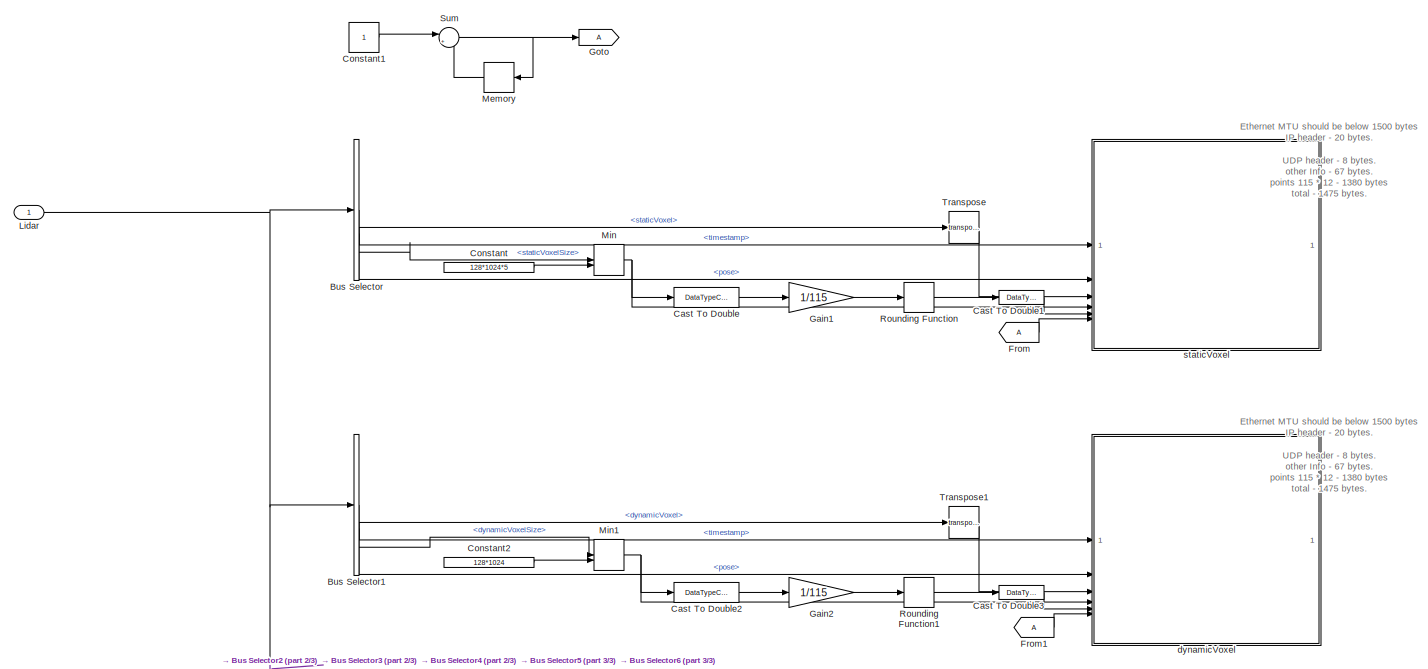
[diagram: Send Dynamic Mapping - part 1/3, full width, top band]
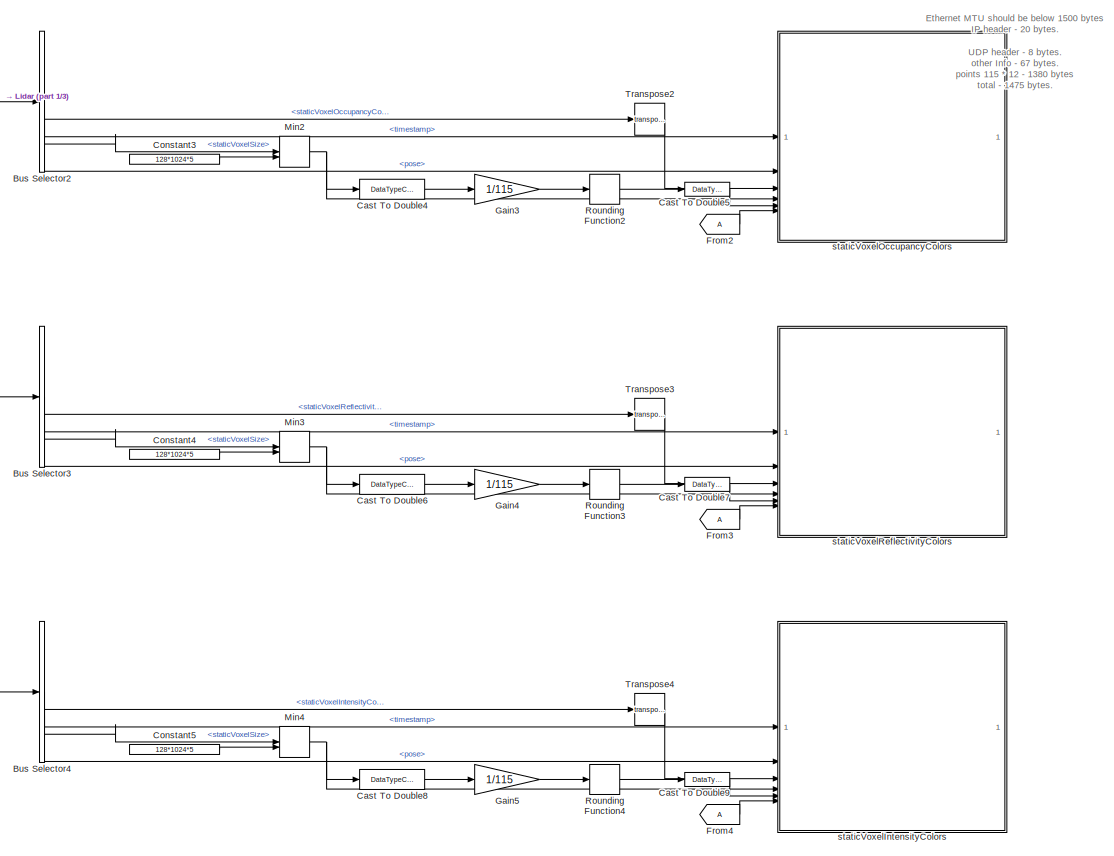
[diagram: Send Dynamic Mapping - part 2/3, full width, middle band]
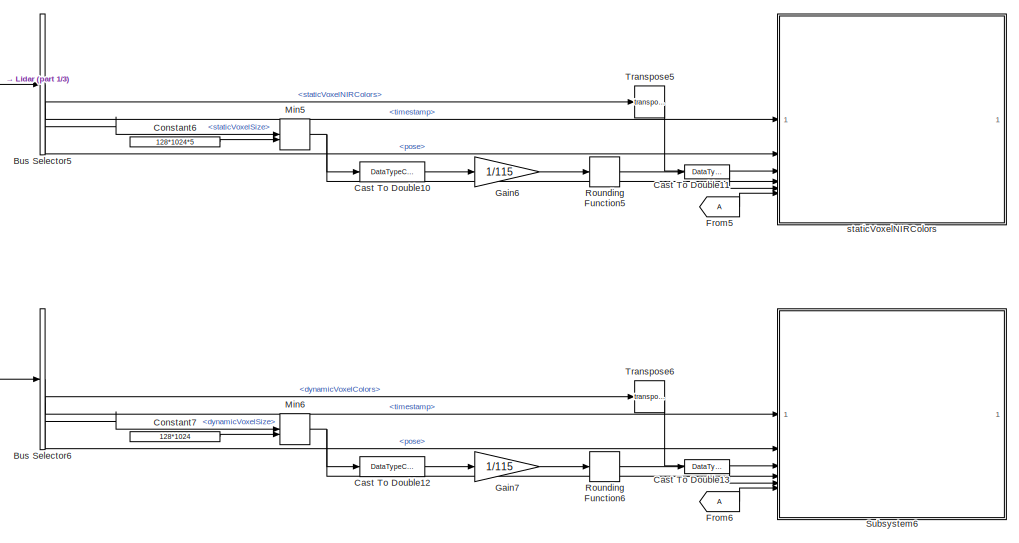
[diagram: Send Dynamic Mapping - part 3/3, bottom center region]
BLOCK [SubSystem] Send Dynamic Mapping
  Commented = on
  PartitionName = SendDM
  ScheduleAs = Periodic partition
  SystemSampleTime = 0.1
  TreatAsAtomicUnit = on
BLOCK [BusSelector] Send Dynamic Mapping/Bus Selector
  OutputSignals = timestamp,pose,staticVoxel,staticVoxelSize
BLOCK [BusSelector] Send Dynamic Mapping/Bus Selector1
  OutputSignals = timestamp,pose,dynamicVoxel,dynamicVoxelSize
BLOCK [BusSelector] Send Dynamic Mapping/Bus Selector2
  Commented = on
  OutputSignals = timestamp,pose,staticVoxelOccupancyColors,staticVoxelSize
BLOCK [BusSelector] Send Dynamic Mapping/Bus Selector3
  Commented = on
  OutputSignals = timestamp,pose,staticVoxelReflectivityColors,staticVoxelSize
BLOCK [BusSelector] Send Dynamic Mapping/Bus Selector4
  Commented = on
  OutputSignals = timestamp,pose,staticVoxelIntensityColors,staticVoxelSize
BLOCK [BusSelector] Send Dynamic Mapping/Bus Selector5
  Commented = on
  OutputSignals = timestamp,pose,staticVoxelNIRColors,staticVoxelSize
BLOCK [BusSelector] Send Dynamic Mapping/Bus Selector6
  Commented = on
  OutputSignals = timestamp,pose,dynamicVoxelColors,dynamicVoxelSize
BLOCK [DataTypeConversion] Send Dynamic Mapping/Cast To Double
  OutDataTypeStr = double
  RndMeth = Floor
  SaturateOnIntegerOverflow = off
BLOCK [DataTypeConversion] Send Dynamic Mapping/Cast To Double1
  OutDataTypeStr = int32
  RndMeth = Floor
  SaturateOnIntegerOverflow = off
BLOCK [DataTypeConversion] Send Dynamic Mapping/Cast To Double10
  Commented = on
  OutDataTypeStr = double
  RndMeth = Floor
  SaturateOnIntegerOverflow = off
BLOCK [DataTypeConversion] Send Dynamic Mapping/Cast To Double11
  Commented = on
  OutDataTypeStr = int32
  RndMeth = Floor
  SaturateOnIntegerOverflow = off
BLOCK [DataTypeConversion] Send Dynamic Mapping/Cast To Double12
  Commented = on
  OutDataTypeStr = double
  RndMeth = Floor
  SaturateOnIntegerOverflow = off
BLOCK [DataTypeConversion] Send Dynamic Mapping/Cast To Double13
  Commented = on
  OutDataTypeStr = int32
  RndMeth = Floor
  SaturateOnIntegerOverflow = off
BLOCK [DataTypeConversion] Send Dynamic Mapping/Cast To Double2
  OutDataTypeStr = double
  RndMeth = Floor
  SaturateOnIntegerOverflow = off
BLOCK [DataTypeConversion] Send Dynamic Mapping/Cast To Double3
  OutDataTypeStr = int32
  RndMeth = Floor
  SaturateOnIntegerOverflow = off
BLOCK [DataTypeConversion] Send Dynamic Mapping/Cast To Double4
  Commented = on
  OutDataTypeStr = double
  RndMeth = Floor
  SaturateOnIntegerOverflow = off
BLOCK [DataTypeConversion] Send Dynamic Mapping/Cast To Double5
  Commented = on
  OutDataTypeStr = int32
  RndMeth = Floor
  SaturateOnIntegerOverflow = off
BLOCK [DataTypeConversion] Send Dynamic Mapping/Cast To Double6
  Commented = on
  OutDataTypeStr = double
  RndMeth = Floor
  SaturateOnIntegerOverflow = off
BLOCK [DataTypeConversion] Send Dynamic Mapping/Cast To Double7
  Commented = on
  OutDataTypeStr = int32
  RndMeth = Floor
  SaturateOnIntegerOverflow = off
BLOCK [DataTypeConversion] Send Dynamic Mapping/Cast To Double8
  Commented = on
  OutDataTypeStr = double
  RndMeth = Floor
  SaturateOnIntegerOverflow = off
BLOCK [DataTypeConversion] Send Dynamic Mapping/Cast To Double9
  Commented = on
  OutDataTypeStr = int32
  RndMeth = Floor
  SaturateOnIntegerOverflow = off
BLOCK [Constant] Send Dynamic Mapping/Constant
  Value = 128*1024*5
BLOCK [Constant] Send Dynamic Mapping/Constant1
  OutDataTypeStr = uint32
BLOCK [Constant] Send Dynamic Mapping/Constant2
  Value = 128*1024
BLOCK [Constant] Send Dynamic Mapping/Constant3
  Commented = on
  Value = 128*1024*5
BLOCK [Constant] Send Dynamic Mapping/Constant4
  Commented = on
  Value = 128*1024*5
BLOCK [Constant] Send Dynamic Mapping/Constant5
  Commented = on
  Value = 128*1024*5
BLOCK [Constant] Send Dynamic Mapping/Constant6
  Commented = on
  Value = 128*1024*5
BLOCK [Constant] Send Dynamic Mapping/Constant7
  Commented = on
  Value = 128*1024
BLOCK [From] Send Dynamic Mapping/From
BLOCK [From] Send Dynamic Mapping/From1
BLOCK [From] Send Dynamic Mapping/From2
  Commented = on
BLOCK [From] Send Dynamic Mapping/From3
  Commented = on
BLOCK [From] Send Dynamic Mapping/From4
  Commented = on
BLOCK [From] Send Dynamic Mapping/From5
  Commented = on
BLOCK [From] Send Dynamic Mapping/From6
  Commented = on
BLOCK [Gain] Send Dynamic Mapping/Gain1
  Gain = 1/115
BLOCK [Gain] Send Dynamic Mapping/Gain2
  Gain = 1/115
BLOCK [Gain] Send Dynamic Mapping/Gain3
  Commented = on
  Gain = 1/115
BLOCK [Gain] Send Dynamic Mapping/Gain4
  Commented = on
  Gain = 1/115
BLOCK [Gain] Send Dynamic Mapping/Gain5
  Commented = on
  Gain = 1/115
BLOCK [Gain] Send Dynamic Mapping/Gain6
  Commented = on
  Gain = 1/115
BLOCK [Gain] Send Dynamic Mapping/Gain7
  Commented = on
  Gain = 1/115
BLOCK [Goto] Send Dynamic Mapping/Goto
BLOCK [Inport] Send Dynamic Mapping/Lidar
BLOCK [Memory] Send Dynamic Mapping/Memory
  InheritSampleTime = on
  LinearizeAsDelay = on
  NameLocation = top
BLOCK [MinMax] Send Dynamic Mapping/Min
  Inputs = 2
BLOCK [MinMax] Send Dynamic Mapping/Min1
  Inputs = 2
BLOCK [MinMax] Send Dynamic Mapping/Min2
  Commented = on
  Inputs = 2
BLOCK [MinMax] Send Dynamic Mapping/Min3
  Commented = on
  Inputs = 2
BLOCK [MinMax] Send Dynamic Mapping/Min4
  Commented = on
  Inputs = 2
BLOCK [MinMax] Send Dynamic Mapping/Min5
  Commented = on
  Inputs = 2
BLOCK [MinMax] Send Dynamic Mapping/Min6
  Commented = on
  Inputs = 2
BLOCK [Rounding] Send Dynamic Mapping/Rounding Function
  Operator = ceil
BLOCK [Rounding] Send Dynamic Mapping/Rounding Function1
  Operator = ceil
BLOCK [Rounding] Send Dynamic Mapping/Rounding Function2
  Commented = on
  Operator = ceil
BLOCK [Rounding] Send Dynamic Mapping/Rounding Function3
  Commented = on
  Operator = ceil
BLOCK [Rounding] Send Dynamic Mapping/Rounding Function4
  Commented = on
  Operator = ceil
BLOCK [Rounding] Send Dynamic Mapping/Rounding Function5
  Commented = on
  Operator = ceil
BLOCK [Rounding] Send Dynamic Mapping/Rounding Function6
  Commented = on
  Operator = ceil
BLOCK [SubSystem] Send Dynamic Mapping/Subsystem6
  Commented = on
BLOCK [Reference] Send Dynamic Mapping/Subsystem6/Byte Pack1  REF=etargetslib/Byte Pack
  SourceBlock = etargetslib/Byte Pack
  SourceType = Byte pack
BLOCK [DataTypeConversion] Send Dynamic Mapping/Subsystem6/Cast To Double1
  OutDataTypeStr = uint8
  RndMeth = Floor
  SaturateOnIntegerOverflow = off
BLOCK [DataTypeConversion] Send Dynamic Mapping/Subsystem6/Cast To Double2
  OutDataTypeStr = uint8
  RndMeth = Floor
  SaturateOnIntegerOverflow = off
BLOCK [Constant] Send Dynamic Mapping/Subsystem6/Constant1
  NameLocation = top
  OutDataTypeStr = int32
  Value = -1
BLOCK [Constant] Send Dynamic Mapping/Subsystem6/Constant2
  OutDataTypeStr = uint8
  Value = [0x53]
BLOCK [Constant] Send Dynamic Mapping/Subsystem6/Constant3
  OutDataTypeStr = uint8
  Value = [139,30,200,74]
BLOCK [Constant] Send Dynamic Mapping/Subsystem6/Constant4
  OutDataTypeStr = uint32
  Value = 43
BLOCK [Constant] Send Dynamic Mapping/Subsystem6/Constant5
  OutDataTypeStr = uint32
  Value = 115
BLOCK [Constant] Send Dynamic Mapping/Subsystem6/Constant6
  OutDataTypeStr = int32
  Value = -1
BLOCK [Constant] Send Dynamic Mapping/Subsystem6/Constant7
  OutDataTypeStr = uint16
  Value = 55006
BLOCK [RelationalOperator] Send Dynamic Mapping/Subsystem6/Equal1
  InputSameDT = off
  Operator = ==
  OutDataTypeStr = boolean
  RndMeth = Simplest
BLOCK [ForIterator] Send Dynamic Mapping/Subsystem6/For Iterator
  IterationSource = external
  ResetStates = reset
BLOCK [Gain] Send Dynamic Mapping/Subsystem6/Gain
  Gain = 115
  NameLocation = top
  OutDataTypeStr = int32
BLOCK [Gain] Send Dynamic Mapping/Subsystem6/Gain1
  Gain = 12
  LockScale = on
  OutDataTypeStr = uint32
BLOCK [Selector] Send Dynamic Mapping/Subsystem6/Selector
  IndexMode = Zero-based
  IndexOptions = Select all,Starting index (port)
  Indices = [1 3],1
  InputPortWidth = 3
  NumberOfDimensions = 2
  OutputSizes = 4e3,115
BLOCK [Sum] Send Dynamic Mapping/Subsystem6/Sum
  Inputs = |++
  NameLocation = top
BLOCK [Sum] Send Dynamic Mapping/Subsystem6/Sum1
  Inputs = |++
  OutDataTypeStr = uint32
BLOCK [Sum] Send Dynamic Mapping/Subsystem6/Sum2
  Inputs = |++
BLOCK [Sum] Send Dynamic Mapping/Subsystem6/Sum3
  Inputs = |+-
BLOCK [Switch] Send Dynamic Mapping/Subsystem6/Switch
  Criteria = u2 > Threshold
  InputSameDT = off
  SaturateOnIntegerOverflow = off
BLOCK [Reference] Send Dynamic Mapping/Subsystem6/UDP Send  REF=GenericTarget/Interface/UDP Send
  SourceBlock = GenericTarget/Interface/UDP Send
  SourceProductName = Generic Target
BLOCK [Inport] Send Dynamic Mapping/Subsystem6/frameID
  Port = 6
BLOCK [Inport] Send Dynamic Mapping/Subsystem6/nummsg
  Port = 5
BLOCK [Inport] Send Dynamic Mapping/Subsystem6/numpoint
  Port = 4
BLOCK [Inport] Send Dynamic Mapping/Subsystem6/point
  Port = 3
BLOCK [Inport] Send Dynamic Mapping/Subsystem6/pose
  Port = 2
BLOCK [Inport] Send Dynamic Mapping/Subsystem6/timestamp
BLOCK [Sum] Send Dynamic Mapping/Sum
  Inputs = |++
  LockScale = on
BLOCK [Math] Send Dynamic Mapping/Transpose
  Operator = transpose
BLOCK [Math] Send Dynamic Mapping/Transpose1
  Operator = transpose
BLOCK [Math] Send Dynamic Mapping/Transpose2
  Commented = on
  Operator = transpose
BLOCK [Math] Send Dynamic Mapping/Transpose3
  Commented = on
  Operator = transpose
BLOCK [Math] Send Dynamic Mapping/Transpose4
  Commented = on
  Operator = transpose
BLOCK [Math] Send Dynamic Mapping/Transpose5
  Commented = on
  Operator = transpose
BLOCK [Math] Send Dynamic Mapping/Transpose6
  Commented = on
  Operator = transpose
BLOCK [SubSystem] Send Dynamic Mapping/dynamicVoxel
BLOCK [Reference] Send Dynamic Mapping/dynamicVoxel/Byte Pack1  REF=etargetslib/Byte Pack
  SourceBlock = etargetslib/Byte Pack
  SourceType = Byte pack
BLOCK [DataTypeConversion] Send Dynamic Mapping/dynamicVoxel/Cast To Double1
  OutDataTypeStr = uint8
  RndMeth = Floor
  SaturateOnIntegerOverflow = off
BLOCK [DataTypeConversion] Send Dynamic Mapping/dynamicVoxel/Cast To Double2
  OutDataTypeStr = uint8
  RndMeth = Floor
  SaturateOnIntegerOverflow = off
BLOCK [Constant] Send Dynamic Mapping/dynamicVoxel/Constant1
  NameLocation = top
  OutDataTypeStr = int32
  Value = -1
BLOCK [Constant] Send Dynamic Mapping/dynamicVoxel/Constant2
  OutDataTypeStr = uint8
  Value = [0x53]
BLOCK [Constant] Send Dynamic Mapping/dynamicVoxel/Constant3
  OutDataTypeStr = uint8
  Value = [139,30,200,74]
BLOCK [Constant] Send Dynamic Mapping/dynamicVoxel/Constant4
  OutDataTypeStr = uint32
  Value = 43
BLOCK [Constant] Send Dynamic Mapping/dynamicVoxel/Constant5
  OutDataTypeStr = uint32
  Value = 115
BLOCK [Constant] Send Dynamic Mapping/dynamicVoxel/Constant6
  OutDataTypeStr = int32
  Value = -1
BLOCK [Constant] Send Dynamic Mapping/dynamicVoxel/Constant7
  OutDataTypeStr = uint16
  Value = 55001
BLOCK [RelationalOperator] Send Dynamic Mapping/dynamicVoxel/Equal1
  InputSameDT = off
  Operator = ==
  OutDataTypeStr = boolean
  RndMeth = Simplest
BLOCK [ForIterator] Send Dynamic Mapping/dynamicVoxel/For Iterator
  IterationSource = external
  ResetStates = reset
BLOCK [Gain] Send Dynamic Mapping/dynamicVoxel/Gain
  Gain = 115
  NameLocation = top
  OutDataTypeStr = int32
BLOCK [Gain] Send Dynamic Mapping/dynamicVoxel/Gain1
  Gain = 12
  LockScale = on
  OutDataTypeStr = uint32
BLOCK [Selector] Send Dynamic Mapping/dynamicVoxel/Selector
  IndexMode = Zero-based
  IndexOptions = Select all,Starting index (port)
  Indices = [1 3],1
  InputPortWidth = 3
  NumberOfDimensions = 2
  OutputSizes = 4e3,115
BLOCK [Sum] Send Dynamic Mapping/dynamicVoxel/Sum
  Inputs = |++
  NameLocation = top
BLOCK [Sum] Send Dynamic Mapping/dynamicVoxel/Sum1
  Inputs = |++
  OutDataTypeStr = uint32
BLOCK [Sum] Send Dynamic Mapping/dynamicVoxel/Sum2
  Inputs = |++
BLOCK [Sum] Send Dynamic Mapping/dynamicVoxel/Sum3
  Inputs = |+-
BLOCK [Switch] Send Dynamic Mapping/dynamicVoxel/Switch
  Criteria = u2 > Threshold
  InputSameDT = off
  SaturateOnIntegerOverflow = off
BLOCK [Reference] Send Dynamic Mapping/dynamicVoxel/UDP Send  REF=GenericTarget/Interface/UDP Send
  SourceBlock = GenericTarget/Interface/UDP Send
  SourceProductName = Generic Target
BLOCK [Inport] Send Dynamic Mapping/dynamicVoxel/frameID
  Port = 6
BLOCK [Inport] Send Dynamic Mapping/dynamicVoxel/nummsg
  Port = 5
BLOCK [Inport] Send Dynamic Mapping/dynamicVoxel/numpoint
  Port = 4
BLOCK [Inport] Send Dynamic Mapping/dynamicVoxel/point
  Port = 3
BLOCK [Inport] Send Dynamic Mapping/dynamicVoxel/pose
  Port = 2
BLOCK [Inport] Send Dynamic Mapping/dynamicVoxel/timestamp
BLOCK [SubSystem] Send Dynamic Mapping/staticVoxel
BLOCK [Reference] Send Dynamic Mapping/staticVoxel/Byte Pack1  REF=etargetslib/Byte Pack
  SourceBlock = etargetslib/Byte Pack
  SourceType = Byte pack
BLOCK [DataTypeConversion] Send Dynamic Mapping/staticVoxel/Cast To Double1
  OutDataTypeStr = uint8
  RndMeth = Floor
  SaturateOnIntegerOverflow = off
BLOCK [DataTypeConversion] Send Dynamic Mapping/staticVoxel/Cast To Double2
  OutDataTypeStr = uint8
  RndMeth = Floor
  SaturateOnIntegerOverflow = off
BLOCK [Constant] Send Dynamic Mapping/staticVoxel/Constant1
  NameLocation = top
  OutDataTypeStr = int32
  Value = -1
BLOCK [Constant] Send Dynamic Mapping/staticVoxel/Constant2
  OutDataTypeStr = uint8
  Value = [0x53]
BLOCK [Constant] Send Dynamic Mapping/staticVoxel/Constant3
  OutDataTypeStr = uint8
  Value = [139,30,200,74]
BLOCK [Constant] Send Dynamic Mapping/staticVoxel/Constant4
  OutDataTypeStr = uint32
  Value = 43
BLOCK [Constant] Send Dynamic Mapping/staticVoxel/Constant5
  OutDataTypeStr = uint32
  Value = 115
BLOCK [Constant] Send Dynamic Mapping/staticVoxel/Constant6
  OutDataTypeStr = int32
  Value = -1
BLOCK [Constant] Send Dynamic Mapping/staticVoxel/Constant7
  OutDataTypeStr = uint16
  Value = 55000
BLOCK [RelationalOperator] Send Dynamic Mapping/staticVoxel/Equal1
  InputSameDT = off
  Operator = ==
  OutDataTypeStr = boolean
  RndMeth = Simplest
BLOCK [ForIterator] Send Dynamic Mapping/staticVoxel/For Iterator
  IterationSource = external
  ResetStates = reset
BLOCK [Gain] Send Dynamic Mapping/staticVoxel/Gain
  Gain = 115
  NameLocation = top
  OutDataTypeStr = int32
BLOCK [Gain] Send Dynamic Mapping/staticVoxel/Gain1
  Gain = 12
  LockScale = on
  OutDataTypeStr = uint32
BLOCK [Selector] Send Dynamic Mapping/staticVoxel/Selector
  IndexMode = Zero-based
  IndexOptions = Select all,Starting index (port)
  Indices = [1 3],1
  InputPortWidth = 3
  NumberOfDimensions = 2
  OutputSizes = 4e3,115
BLOCK [Sum] Send Dynamic Mapping/staticVoxel/Sum
  Inputs = |++
  NameLocation = top
BLOCK [Sum] Send Dynamic Mapping/staticVoxel/Sum1
  Inputs = |++
  OutDataTypeStr = uint32
BLOCK [Sum] Send Dynamic Mapping/staticVoxel/Sum2
  Inputs = |++
BLOCK [Sum] Send Dynamic Mapping/staticVoxel/Sum3
  Inputs = |+-
BLOCK [Switch] Send Dynamic Mapping/staticVoxel/Switch
  Criteria = u2 > Threshold
  InputSameDT = off
  SaturateOnIntegerOverflow = off
BLOCK [Reference] Send Dynamic Mapping/staticVoxel/UDP Send  REF=GenericTarget/Interface/UDP Send
  SourceBlock = GenericTarget/Interface/UDP Send
  SourceProductName = Generic Target
BLOCK [Inport] Send Dynamic Mapping/staticVoxel/frameID
  Port = 6
BLOCK [Inport] Send Dynamic Mapping/staticVoxel/nummsg
  Port = 5
BLOCK [Inport] Send Dynamic Mapping/staticVoxel/numpoint
  Port = 4
BLOCK [Inport] Send Dynamic Mapping/staticVoxel/point
  Port = 3
BLOCK [Inport] Send Dynamic Mapping/staticVoxel/pose
  Port = 2
BLOCK [Inport] Send Dynamic Mapping/staticVoxel/timestamp
BLOCK [SubSystem] Send Dynamic Mapping/staticVoxelIntensityColors
  Commented = on
BLOCK [Reference] Send Dynamic Mapping/staticVoxelIntensityColors/Byte Pack1  REF=etargetslib/Byte Pack
  SourceBlock = etargetslib/Byte Pack
  SourceType = Byte pack
BLOCK [DataTypeConversion] Send Dynamic Mapping/staticVoxelIntensityColors/Cast To Double1
  OutDataTypeStr = uint8
  RndMeth = Floor
  SaturateOnIntegerOverflow = off
BLOCK [DataTypeConversion] Send Dynamic Mapping/staticVoxelIntensityColors/Cast To Double2
  OutDataTypeStr = uint8
  RndMeth = Floor
  SaturateOnIntegerOverflow = off
BLOCK [Constant] Send Dynamic Mapping/staticVoxelIntensityColors/Constant1
  NameLocation = top
  OutDataTypeStr = int32
  Value = -1
BLOCK [Constant] Send Dynamic Mapping/staticVoxelIntensityColors/Constant2
  OutDataTypeStr = uint8
  Value = [0x53]
BLOCK [Constant] Send Dynamic Mapping/staticVoxelIntensityColors/Constant3
  OutDataTypeStr = uint8
  Value = [139,30,200,74]
BLOCK [Constant] Send Dynamic Mapping/staticVoxelIntensityColors/Constant4
  OutDataTypeStr = uint32
  Value = 43
BLOCK [Constant] Send Dynamic Mapping/staticVoxelIntensityColors/Constant5
  OutDataTypeStr = uint32
  Value = 115
BLOCK [Constant] Send Dynamic Mapping/staticVoxelIntensityColors/Constant6
  OutDataTypeStr = int32
  Value = -1
BLOCK [Constant] Send Dynamic Mapping/staticVoxelIntensityColors/Constant7
  OutDataTypeStr = uint16
  Value = 55004
BLOCK [RelationalOperator] Send Dynamic Mapping/staticVoxelIntensityColors/Equal1
  InputSameDT = off
  Operator = ==
  OutDataTypeStr = boolean
  RndMeth = Simplest
BLOCK [ForIterator] Send Dynamic Mapping/staticVoxelIntensityColors/For Iterator
  IterationSource = external
  ResetStates = reset
BLOCK [Gain] Send Dynamic Mapping/staticVoxelIntensityColors/Gain
  Gain = 115
  NameLocation = top
  OutDataTypeStr = int32
BLOCK [Gain] Send Dynamic Mapping/staticVoxelIntensityColors/Gain1
  Gain = 12
  LockScale = on
  OutDataTypeStr = uint32
BLOCK [Selector] Send Dynamic Mapping/staticVoxelIntensityColors/Selector
  IndexMode = Zero-based
  IndexOptions = Select all,Starting index (port)
  Indices = [1 3],1
  InputPortWidth = 3
  NumberOfDimensions = 2
  OutputSizes = 4e3,115
BLOCK [Sum] Send Dynamic Mapping/staticVoxelIntensityColors/Sum
  Inputs = |++
  NameLocation = top
BLOCK [Sum] Send Dynamic Mapping/staticVoxelIntensityColors/Sum1
  Inputs = |++
  OutDataTypeStr = uint32
BLOCK [Sum] Send Dynamic Mapping/staticVoxelIntensityColors/Sum2
  Inputs = |++
BLOCK [Sum] Send Dynamic Mapping/staticVoxelIntensityColors/Sum3
  Inputs = |+-
BLOCK [Switch] Send Dynamic Mapping/staticVoxelIntensityColors/Switch
  Criteria = u2 > Threshold
  InputSameDT = off
  SaturateOnIntegerOverflow = off
BLOCK [Reference] Send Dynamic Mapping/staticVoxelIntensityColors/UDP Send  REF=GenericTarget/Interface/UDP Send
  SourceBlock = GenericTarget/Interface/UDP Send
  SourceProductName = Generic Target
BLOCK [Inport] Send Dynamic Mapping/staticVoxelIntensityColors/frameID
  Port = 6
BLOCK [Inport] Send Dynamic Mapping/staticVoxelIntensityColors/nummsg
  Port = 5
BLOCK [Inport] Send Dynamic Mapping/staticVoxelIntensityColors/numpoint
  Port = 4
BLOCK [Inport] Send Dynamic Mapping/staticVoxelIntensityColors/point
  Port = 3
BLOCK [Inport] Send Dynamic Mapping/staticVoxelIntensityColors/pose
  Port = 2
BLOCK [Inport] Send Dynamic Mapping/staticVoxelIntensityColors/timestamp
BLOCK [SubSystem] Send Dynamic Mapping/staticVoxelNIRColors
  Commented = on
BLOCK [Reference] Send Dynamic Mapping/staticVoxelNIRColors/Byte Pack1  REF=etargetslib/Byte Pack
  SourceBlock = etargetslib/Byte Pack
  SourceType = Byte pack
BLOCK [DataTypeConversion] Send Dynamic Mapping/staticVoxelNIRColors/Cast To Double1
  OutDataTypeStr = uint8
  RndMeth = Floor
  SaturateOnIntegerOverflow = off
BLOCK [DataTypeConversion] Send Dynamic Mapping/staticVoxelNIRColors/Cast To Double2
  OutDataTypeStr = uint8
  RndMeth = Floor
  SaturateOnIntegerOverflow = off
BLOCK [Constant] Send Dynamic Mapping/staticVoxelNIRColors/Constant1
  NameLocation = top
  OutDataTypeStr = int32
  Value = -1
BLOCK [Constant] Send Dynamic Mapping/staticVoxelNIRColors/Constant2
  OutDataTypeStr = uint8
  Value = [0x53]
BLOCK [Constant] Send Dynamic Mapping/staticVoxelNIRColors/Constant3
  OutDataTypeStr = uint8
  Value = [139,30,200,74]
BLOCK [Constant] Send Dynamic Mapping/staticVoxelNIRColors/Constant4
  OutDataTypeStr = uint32
  Value = 43
BLOCK [Constant] Send Dynamic Mapping/staticVoxelNIRColors/Constant5
  OutDataTypeStr = uint32
  Value = 115
BLOCK [Constant] Send Dynamic Mapping/staticVoxelNIRColors/Constant6
  OutDataTypeStr = int32
  Value = -1
BLOCK [Constant] Send Dynamic Mapping/staticVoxelNIRColors/Constant7
  OutDataTypeStr = uint16
  Value = 55005
BLOCK [RelationalOperator] Send Dynamic Mapping/staticVoxelNIRColors/Equal1
  InputSameDT = off
  Operator = ==
  OutDataTypeStr = boolean
  RndMeth = Simplest
BLOCK [ForIterator] Send Dynamic Mapping/staticVoxelNIRColors/For Iterator
  IterationSource = external
  ResetStates = reset
BLOCK [Gain] Send Dynamic Mapping/staticVoxelNIRColors/Gain
  Gain = 115
  NameLocation = top
  OutDataTypeStr = int32
BLOCK [Gain] Send Dynamic Mapping/staticVoxelNIRColors/Gain1
  Gain = 12
  LockScale = on
  OutDataTypeStr = uint32
BLOCK [Selector] Send Dynamic Mapping/staticVoxelNIRColors/Selector
  IndexMode = Zero-based
  IndexOptions = Select all,Starting index (port)
  Indices = [1 3],1
  InputPortWidth = 3
  NumberOfDimensions = 2
  OutputSizes = 4e3,115
BLOCK [Sum] Send Dynamic Mapping/staticVoxelNIRColors/Sum
  Inputs = |++
  NameLocation = top
BLOCK [Sum] Send Dynamic Mapping/staticVoxelNIRColors/Sum1
  Inputs = |++
  OutDataTypeStr = uint32
BLOCK [Sum] Send Dynamic Mapping/staticVoxelNIRColors/Sum2
  Inputs = |++
BLOCK [Sum] Send Dynamic Mapping/staticVoxelNIRColors/Sum3
  Inputs = |+-
BLOCK [Switch] Send Dynamic Mapping/staticVoxelNIRColors/Switch
  Criteria = u2 > Threshold
  InputSameDT = off
  SaturateOnIntegerOverflow = off
BLOCK [Reference] Send Dynamic Mapping/staticVoxelNIRColors/UDP Send  REF=GenericTarget/Interface/UDP Send
  SourceBlock = GenericTarget/Interface/UDP Send
  SourceProductName = Generic Target
BLOCK [Inport] Send Dynamic Mapping/staticVoxelNIRColors/frameID
  Port = 6
BLOCK [Inport] Send Dynamic Mapping/staticVoxelNIRColors/nummsg
  Port = 5
BLOCK [Inport] Send Dynamic Mapping/staticVoxelNIRColors/numpoint
  Port = 4
BLOCK [Inport] Send Dynamic Mapping/staticVoxelNIRColors/point
  Port = 3
BLOCK [Inport] Send Dynamic Mapping/staticVoxelNIRColors/pose
  Port = 2
BLOCK [Inport] Send Dynamic Mapping/staticVoxelNIRColors/timestamp
BLOCK [SubSystem] Send Dynamic Mapping/staticVoxelOccupancyColors
  Commented = on
BLOCK [Reference] Send Dynamic Mapping/staticVoxelOccupancyColors/Byte Pack1  REF=etargetslib/Byte Pack
  SourceBlock = etargetslib/Byte Pack
  SourceType = Byte pack
BLOCK [DataTypeConversion] Send Dynamic Mapping/staticVoxelOccupancyColors/Cast To Double1
  OutDataTypeStr = uint8
  RndMeth = Floor
  SaturateOnIntegerOverflow = off
BLOCK [DataTypeConversion] Send Dynamic Mapping/staticVoxelOccupancyColors/Cast To Double2
  OutDataTypeStr = uint8
  RndMeth = Floor
  SaturateOnIntegerOverflow = off
BLOCK [Constant] Send Dynamic Mapping/staticVoxelOccupancyColors/Constant1
  NameLocation = top
  OutDataTypeStr = int32
  Value = -1
BLOCK [Constant] Send Dynamic Mapping/staticVoxelOccupancyColors/Constant2
  OutDataTypeStr = uint8
  Value = [0x53]
BLOCK [Constant] Send Dynamic Mapping/staticVoxelOccupancyColors/Constant3
  OutDataTypeStr = uint8
  Value = [139,30,200,74]
BLOCK [Constant] Send Dynamic Mapping/staticVoxelOccupancyColors/Constant4
  OutDataTypeStr = uint32
  Value = 43
BLOCK [Constant] Send Dynamic Mapping/staticVoxelOccupancyColors/Constant5
  OutDataTypeStr = uint32
  Value = 115
BLOCK [Constant] Send Dynamic Mapping/staticVoxelOccupancyColors/Constant6
  OutDataTypeStr = int32
  Value = -1
BLOCK [Constant] Send Dynamic Mapping/staticVoxelOccupancyColors/Constant7
  OutDataTypeStr = uint16
  Value = 55002
BLOCK [RelationalOperator] Send Dynamic Mapping/staticVoxelOccupancyColors/Equal1
  InputSameDT = off
  Operator = ==
  OutDataTypeStr = boolean
  RndMeth = Simplest
BLOCK [ForIterator] Send Dynamic Mapping/staticVoxelOccupancyColors/For Iterator
  IterationSource = external
  ResetStates = reset
BLOCK [Gain] Send Dynamic Mapping/staticVoxelOccupancyColors/Gain
  Gain = 115
  NameLocation = top
  OutDataTypeStr = int32
BLOCK [Gain] Send Dynamic Mapping/staticVoxelOccupancyColors/Gain1
  Gain = 12
  LockScale = on
  OutDataTypeStr = uint32
BLOCK [Selector] Send Dynamic Mapping/staticVoxelOccupancyColors/Selector
  IndexMode = Zero-based
  IndexOptions = Select all,Starting index (port)
  Indices = [1 3],1
  InputPortWidth = 3
  NumberOfDimensions = 2
  OutputSizes = 4e3,115
BLOCK [Sum] Send Dynamic Mapping/staticVoxelOccupancyColors/Sum
  Inputs = |++
  NameLocation = top
BLOCK [Sum] Send Dynamic Mapping/staticVoxelOccupancyColors/Sum1
  Inputs = |++
  OutDataTypeStr = uint32
BLOCK [Sum] Send Dynamic Mapping/staticVoxelOccupancyColors/Sum2
  Inputs = |++
BLOCK [Sum] Send Dynamic Mapping/staticVoxelOccupancyColors/Sum3
  Inputs = |+-
BLOCK [Switch] Send Dynamic Mapping/staticVoxelOccupancyColors/Switch
  Criteria = u2 > Threshold
  InputSameDT = off
  SaturateOnIntegerOverflow = off
BLOCK [Reference] Send Dynamic Mapping/staticVoxelOccupancyColors/UDP Send  REF=GenericTarget/Interface/UDP Send
  SourceBlock = GenericTarget/Interface/UDP Send
  SourceProductName = Generic Target
BLOCK [Inport] Send Dynamic Mapping/staticVoxelOccupancyColors/frameID
  Port = 6
BLOCK [Inport] Send Dynamic Mapping/staticVoxelOccupancyColors/nummsg
  Port = 5
BLOCK [Inport] Send Dynamic Mapping/staticVoxelOccupancyColors/numpoint
  Port = 4
BLOCK [Inport] Send Dynamic Mapping/staticVoxelOccupancyColors/point
  Port = 3
BLOCK [Inport] Send Dynamic Mapping/staticVoxelOccupancyColors/pose
  Port = 2
BLOCK [Inport] Send Dynamic Mapping/staticVoxelOccupancyColors/timestamp
BLOCK [SubSystem] Send Dynamic Mapping/staticVoxelReflectivityColors
  Commented = on
BLOCK [Reference] Send Dynamic Mapping/staticVoxelReflectivityColors/Byte Pack1  REF=etargetslib/Byte Pack
  SourceBlock = etargetslib/Byte Pack
  SourceType = Byte pack
BLOCK [DataTypeConversion] Send Dynamic Mapping/staticVoxelReflectivityColors/Cast To Double1
  OutDataTypeStr = uint8
  RndMeth = Floor
  SaturateOnIntegerOverflow = off
BLOCK [DataTypeConversion] Send Dynamic Mapping/staticVoxelReflectivityColors/Cast To Double2
  OutDataTypeStr = uint8
  RndMeth = Floor
  SaturateOnIntegerOverflow = off
BLOCK [Constant] Send Dynamic Mapping/staticVoxelReflectivityColors/Constant1
  NameLocation = top
  OutDataTypeStr = int32
  Value = -1
BLOCK [Constant] Send Dynamic Mapping/staticVoxelReflectivityColors/Constant2
  OutDataTypeStr = uint8
  Value = [0x53]
BLOCK [Constant] Send Dynamic Mapping/staticVoxelReflectivityColors/Constant3
  OutDataTypeStr = uint8
  Value = [139,30,200,74]
BLOCK [Constant] Send Dynamic Mapping/staticVoxelReflectivityColors/Constant4
  OutDataTypeStr = uint32
  Value = 43
BLOCK [Constant] Send Dynamic Mapping/staticVoxelReflectivityColors/Constant5
  OutDataTypeStr = uint32
  Value = 115
BLOCK [Constant] Send Dynamic Mapping/staticVoxelReflectivityColors/Constant6
  OutDataTypeStr = int32
  Value = -1
BLOCK [Constant] Send Dynamic Mapping/staticVoxelReflectivityColors/Constant7
  OutDataTypeStr = uint16
  Value = 55003
BLOCK [RelationalOperator] Send Dynamic Mapping/staticVoxelReflectivityColors/Equal1
  InputSameDT = off
  Operator = ==
  OutDataTypeStr = boolean
  RndMeth = Simplest
BLOCK [ForIterator] Send Dynamic Mapping/staticVoxelReflectivityColors/For Iterator
  IterationSource = external
  ResetStates = reset
BLOCK [Gain] Send Dynamic Mapping/staticVoxelReflectivityColors/Gain
  Gain = 115
  NameLocation = top
  OutDataTypeStr = int32
BLOCK [Gain] Send Dynamic Mapping/staticVoxelReflectivityColors/Gain1
  Gain = 12
  LockScale = on
  OutDataTypeStr = uint32
BLOCK [Selector] Send Dynamic Mapping/staticVoxelReflectivityColors/Selector
  IndexMode = Zero-based
  IndexOptions = Select all,Starting index (port)
  Indices = [1 3],1
  InputPortWidth = 3
  NumberOfDimensions = 2
  OutputSizes = 4e3,115
BLOCK [Sum] Send Dynamic Mapping/staticVoxelReflectivityColors/Sum
  Inputs = |++
  NameLocation = top
BLOCK [Sum] Send Dynamic Mapping/staticVoxelReflectivityColors/Sum1
  Inputs = |++
  OutDataTypeStr = uint32
BLOCK [Sum] Send Dynamic Mapping/staticVoxelReflectivityColors/Sum2
  Inputs = |++
BLOCK [Sum] Send Dynamic Mapping/staticVoxelReflectivityColors/Sum3
  Inputs = |+-
BLOCK [Switch] Send Dynamic Mapping/staticVoxelReflectivityColors/Switch
  Criteria = u2 > Threshold
  InputSameDT = off
  SaturateOnIntegerOverflow = off
BLOCK [Reference] Send Dynamic Mapping/staticVoxelReflectivityColors/UDP Send  REF=GenericTarget/Interface/UDP Send
  SourceBlock = GenericTarget/Interface/UDP Send
  SourceProductName = Generic Target
BLOCK [Inport] Send Dynamic Mapping/staticVoxelReflectivityColors/frameID
  Port = 6
BLOCK [Inport] Send Dynamic Mapping/staticVoxelReflectivityColors/nummsg
  Port = 5
BLOCK [Inport] Send Dynamic Mapping/staticVoxelReflectivityColors/numpoint
  Port = 4
BLOCK [Inport] Send Dynamic Mapping/staticVoxelReflectivityColors/point
  Port = 3
BLOCK [Inport] Send Dynamic Mapping/staticVoxelReflectivityColors/pose
  Port = 2
BLOCK [Inport] Send Dynamic Mapping/staticVoxelReflectivityColors/timestamp
BLOCK [SubSystem] Send Poiints
  Commented = on
  PartitionName = SendPoint
  ScheduleAs = Periodic partition
  SystemSampleTime = 0.025
  TreatAsAtomicUnit = on
BLOCK [BusSelector] Send Poiints/Bus Selector2
  OutputSignals = lidarMeasurement,navMeasurement,timestamp.timestamp,lidarMeasurement.pointsReflect
BLOCK [BusSelector] Send Poiints/Bus Selector3
  OutputSignals = north,east,down,qw,qx,qy,qz
BLOCK [BusSelector] Send Poiints/Bus Selector4
  OutputSignals = points,numberPoint
BLOCK [BusSelector] Send Poiints/Bus Selector5
  OutputSignals = roll,pitch,yaw
BLOCK [DataTypeConversion] Send Poiints/Cast To Double
  OutDataTypeStr = double
  RndMeth = Floor
  SaturateOnIntegerOverflow = off
BLOCK [DataTypeConversion] Send Poiints/Cast To Double1
  OutDataTypeStr = int32
  RndMeth = Floor
  SaturateOnIntegerOverflow = off
BLOCK [DataTypeConversion] Send Poiints/Cast To Double2
  Commented = on
  OutDataTypeStr = double
  RndMeth = Floor
  SaturateOnIntegerOverflow = off
BLOCK [DataTypeConversion] Send Poiints/Cast To Double3
  Commented = on
  OutDataTypeStr = int32
  RndMeth = Floor
  SaturateOnIntegerOverflow = off
BLOCK [Constant] Send Poiints/Constant
  OutDataTypeStr = uint32
  Value = 128*1024
BLOCK [Constant] Send Poiints/Constant1
  OutDataTypeStr = uint32
BLOCK [Constant] Send Poiints/Constant2
  Commented = on
  OutDataTypeStr = uint32
  Value = 128*1024
BLOCK [From] Send Poiints/From1
BLOCK [From] Send Poiints/From2
  GotoTag = B
BLOCK [From] Send Poiints/From3
  Commented = on
BLOCK [From] Send Poiints/From4
  Commented = on
  GotoTag = B
BLOCK [Gain] Send Poiints/Gain1
  Gain = 1/110
BLOCK [Gain] Send Poiints/Gain2
  Commented = on
  Gain = 1/110
BLOCK [Goto] Send Poiints/Goto1
BLOCK [Goto] Send Poiints/Goto2
  GotoTag = B
BLOCK [Inport] Send Poiints/Lidar
BLOCK [SubSystem] Send Poiints/MATLAB Function
  ErrorFcn = Stateflow.Translate.translate
  PermitHierarchicalResolution = ExplicitOnly
  SFBlockType = MATLAB Function
  TreatAsAtomicUnit = on
BLOCK [Demux] Send Poiints/MATLAB Function/ Demux 
  Outputs = 1
BLOCK [S-Function] Send Poiints/MATLAB Function/ SFunction 
  EnableBusSupport = on
  FunctionName = sf_sfun
  PortCounts = [9 2]
  SFcnIsStateOwnerBlock = off
  SFunctionDeploymentMode = off
  Tag = Stateflow S-Function 1
BLOCK [Terminator] Send Poiints/MATLAB Function/ Terminator 
BLOCK [Inport] Send Poiints/MATLAB Function/D
  Port = 5
BLOCK [Inport] Send Poiints/MATLAB Function/E
  Port = 4
BLOCK [Inport] Send Poiints/MATLAB Function/N
  Port = 3
BLOCK [Inport] Send Poiints/MATLAB Function/Point
BLOCK [Inport] Send Poiints/MATLAB Function/numPoint
  Port = 2
BLOCK [Outport] Send Poiints/MATLAB Function/points_
BLOCK [Inport] Send Poiints/MATLAB Function/qw
  Port = 6
BLOCK [Inport] Send Poiints/MATLAB Function/qx
  Port = 7
BLOCK [Inport] Send Poiints/MATLAB Function/qy
  Port = 8
BLOCK [Inport] Send Poiints/MATLAB Function/qz
  Port = 9
BLOCK [Memory] Send Poiints/Memory
  InheritSampleTime = on
  LinearizeAsDelay = on
  NameLocation = top
BLOCK [MinMax] Send Poiints/Min
  Inputs = 2
  OutDataTypeStr = uint32
BLOCK [MinMax] Send Poiints/Min1
  Commented = on
  Inputs = 2
  OutDataTypeStr = uint32
BLOCK [Mux] Send Poiints/Mux
  DisplayOption = bar
  Inputs = 3
BLOCK [Mux] Send Poiints/Mux1
  DisplayOption = bar
  Inputs = 3
BLOCK [Mux] Send Poiints/Mux2
  DisplayOption = bar
  Inputs = 2
BLOCK [Rounding] Send Poiints/Rounding Function
  Operator = ceil
BLOCK [Rounding] Send Poiints/Rounding Function1
  Commented = on
  Operator = ceil
BLOCK [Sum] Send Poiints/Sum
  Inputs = |++
  LockScale = on
BLOCK [Math] Send Poiints/Transpose
  Operator = transpose
BLOCK [Math] Send Poiints/Transpose1
  Commented = on
  Operator = transpose
BLOCK [SubSystem] Send Poiints/staticVoxel
BLOCK [Reference] Send Poiints/staticVoxel/Byte Pack1  REF=etargetslib/Byte Pack
  SourceBlock = etargetslib/Byte Pack
  SourceType = Byte pack
BLOCK [DataTypeConversion] Send Poiints/staticVoxel/Cast To Double1
  OutDataTypeStr = uint32
  RndMeth = Floor
  SaturateOnIntegerOverflow = off
BLOCK [DataTypeConversion] Send Poiints/staticVoxel/Cast To Double2
  OutDataTypeStr = uint32
  RndMeth = Floor
  SaturateOnIntegerOverflow = off
BLOCK [Constant] Send Poiints/staticVoxel/Constant1
  NameLocation = top
  OutDataTypeStr = int32
  Value = -1
BLOCK [Constant] Send Poiints/staticVoxel/Constant2
  OutDataTypeStr = uint8
  Value = [0x53]
BLOCK [Constant] Send Poiints/staticVoxel/Constant3
  OutDataTypeStr = uint8
  Value = [127,0,0,1]
BLOCK [Constant] Send Poiints/staticVoxel/Constant4
  OutDataTypeStr = uint32
  Value = 73
BLOCK [Constant] Send Poiints/staticVoxel/Constant5
  OutDataTypeStr = uint32
  Value = 110
BLOCK [Constant] Send Poiints/staticVoxel/Constant6
  OutDataTypeStr = int32
  Value = -1
BLOCK [Constant] Send Poiints/staticVoxel/Constant7
  OutDataTypeStr = uint16
  Value = 61234
BLOCK [RelationalOperator] Send Poiints/staticVoxel/Equal1
  InputSameDT = off
  Operator = ==
  OutDataTypeStr = boolean
  RndMeth = Simplest
BLOCK [ForIterator] Send Poiints/staticVoxel/For Iterator
  IterationSource = external
  ResetStates = reset
BLOCK [Gain] Send Poiints/staticVoxel/Gain
  Gain = 110
  NameLocation = top
  OutDataTypeStr = int32
BLOCK [Gain] Send Poiints/staticVoxel/Gain1
  Gain = 12
  LockScale = on
  OutDataTypeStr = uint32
BLOCK [Selector] Send Poiints/staticVoxel/Selector
  IndexMode = Zero-based
  IndexOptions = Select all,Starting index (port)
  Indices = [1 3],1
  InputPortWidth = 3
  NumberOfDimensions = 2
  OutputSizes = 4e3,110
BLOCK [Sum] Send Poiints/staticVoxel/Sum
  Inputs = |++
  NameLocation = top
BLOCK [Sum] Send Poiints/staticVoxel/Sum1
  Inputs = |++
  OutDataTypeStr = uint32
BLOCK [Sum] Send Poiints/staticVoxel/Sum2
  Inputs = |++
BLOCK [Sum] Send Poiints/staticVoxel/Sum3
  Inputs = |+-
  OutDataTypeStr = int32
BLOCK [Switch] Send Poiints/staticVoxel/Switch
  Criteria = u2 > Threshold
  InputSameDT = off
  SaturateOnIntegerOverflow = off
BLOCK [Reference] Send Poiints/staticVoxel/UDP Send  REF=GenericTarget/Interface/UDP Send
  SourceBlock = GenericTarget/Interface/UDP Send
  SourceProductName = Generic Target
BLOCK [Inport] Send Poiints/staticVoxel/frameID
  Port = 6
BLOCK [Inport] Send Poiints/staticVoxel/nummsg
  Port = 5
BLOCK [Inport] Send Poiints/staticVoxel/numpoint
  Port = 4
BLOCK [Inport] Send Poiints/staticVoxel/point
  Port = 3
BLOCK [Inport] Send Poiints/staticVoxel/pose
  Port = 2
BLOCK [Inport] Send Poiints/staticVoxel/timestamp
BLOCK [SubSystem] Send Poiints/staticVoxel1
  Commented = on
BLOCK [Reference] Send Poiints/staticVoxel1/Byte Pack1  REF=etargetslib/Byte Pack
  SourceBlock = etargetslib/Byte Pack
  SourceType = Byte pack
BLOCK [DataTypeConversion] Send Poiints/staticVoxel1/Cast To Double1
  OutDataTypeStr = uint32
  RndMeth = Floor
  SaturateOnIntegerOverflow = off
BLOCK [DataTypeConversion] Send Poiints/staticVoxel1/Cast To Double2
  OutDataTypeStr = uint32
  RndMeth = Floor
  SaturateOnIntegerOverflow = off
BLOCK [Constant] Send Poiints/staticVoxel1/Constant1
  NameLocation = top
  OutDataTypeStr = int32
  Value = -1
BLOCK [Constant] Send Poiints/staticVoxel1/Constant2
  OutDataTypeStr = uint8
  Value = [0x53]
BLOCK [Constant] Send Poiints/staticVoxel1/Constant3
  OutDataTypeStr = uint8
  Value = [127,0,0,1]
BLOCK [Constant] Send Poiints/staticVoxel1/Constant4
  OutDataTypeStr = uint32
  Value = 73
BLOCK [Constant] Send Poiints/staticVoxel1/Constant5
  OutDataTypeStr = uint32
  Value = 110
BLOCK [Constant] Send Poiints/staticVoxel1/Constant6
  OutDataTypeStr = int32
  Value = -1
BLOCK [Constant] Send Poiints/staticVoxel1/Constant7
  OutDataTypeStr = uint16
  Value = 61235
BLOCK [RelationalOperator] Send Poiints/staticVoxel1/Equal1
  InputSameDT = off
  Operator = ==
  OutDataTypeStr = boolean
  RndMeth = Simplest
BLOCK [ForIterator] Send Poiints/staticVoxel1/For Iterator
  IterationSource = external
  ResetStates = reset
BLOCK [Gain] Send Poiints/staticVoxel1/Gain
  Gain = 110
  NameLocation = top
  OutDataTypeStr = int32
BLOCK [Gain] Send Poiints/staticVoxel1/Gain1
  Gain = 12
  LockScale = on
  OutDataTypeStr = uint32
BLOCK [Selector] Send Poiints/staticVoxel1/Selector
  IndexMode = Zero-based
  IndexOptions = Select all,Starting index (port)
  Indices = [1 3],1
  InputPortWidth = 3
  NumberOfDimensions = 2
  OutputSizes = 4e3,110
BLOCK [Sum] Send Poiints/staticVoxel1/Sum
  Inputs = |++
  NameLocation = top
BLOCK [Sum] Send Poiints/staticVoxel1/Sum1
  Inputs = |++
  OutDataTypeStr = uint32
BLOCK [Sum] Send Poiints/staticVoxel1/Sum2
  Inputs = |++
BLOCK [Sum] Send Poiints/staticVoxel1/Sum3
  Inputs = |+-
  OutDataTypeStr = int32
BLOCK [Switch] Send Poiints/staticVoxel1/Switch
  Criteria = u2 > Threshold
  InputSameDT = off
  SaturateOnIntegerOverflow = off
BLOCK [Reference] Send Poiints/staticVoxel1/UDP Send  REF=GenericTarget/Interface/UDP Send
  SourceBlock = GenericTarget/Interface/UDP Send
  SourceProductName = Generic Target
BLOCK [Inport] Send Poiints/staticVoxel1/frameID
  Port = 6
BLOCK [Inport] Send Poiints/staticVoxel1/nummsg
  Port = 5
BLOCK [Inport] Send Poiints/staticVoxel1/numpoint
  Port = 4
BLOCK [Inport] Send Poiints/staticVoxel1/point
  Port = 3
BLOCK [Inport] Send Poiints/staticVoxel1/pose
  Port = 2
BLOCK [Inport] Send Poiints/staticVoxel1/timestamp
BLOCK [SubSystem] Send Poiints1
  Commented = on
  PartitionName = SendPoint
  ScheduleAs = Periodic partition
  SystemSampleTime = 0.1
  TreatAsAtomicUnit = on
BLOCK [BusSelector] Send Poiints1/Bus Selector2
  OutputSignals = lidarMeasurement2,navMeasurement,timestamp.timestamp,lidarMeasurement2.pointsReflect
BLOCK [BusSelector] Send Poiints1/Bus Selector3
  OutputSignals = north,east,down,qw,qx,qy,qz
BLOCK [BusSelector] Send Poiints1/Bus Selector4
  OutputSignals = points,numberPoint
BLOCK [BusSelector] Send Poiints1/Bus Selector5
  OutputSignals = roll,pitch,yaw
BLOCK [DataTypeConversion] Send Poiints1/Cast To Double
  OutDataTypeStr = double
  RndMeth = Floor
  SaturateOnIntegerOverflow = off
BLOCK [DataTypeConversion] Send Poiints1/Cast To Double1
  OutDataTypeStr = int32
  RndMeth = Floor
  SaturateOnIntegerOverflow = off
BLOCK [DataTypeConversion] Send Poiints1/Cast To Double2
  OutDataTypeStr = double
  RndMeth = Floor
  SaturateOnIntegerOverflow = off
BLOCK [DataTypeConversion] Send Poiints1/Cast To Double3
  OutDataTypeStr = int32
  RndMeth = Floor
  SaturateOnIntegerOverflow = off
BLOCK [Constant] Send Poiints1/Constant
  OutDataTypeStr = uint32
  Value = 128*1024
BLOCK [Constant] Send Poiints1/Constant1
  OutDataTypeStr = uint32
BLOCK [Constant] Send Poiints1/Constant2
  OutDataTypeStr = uint32
  Value = 128*1024
BLOCK [From] Send Poiints1/From1
BLOCK [From] Send Poiints1/From2
  GotoTag = B
BLOCK [From] Send Poiints1/From3
BLOCK [From] Send Poiints1/From4
  GotoTag = B
BLOCK [Gain] Send Poiints1/Gain1
  Gain = 1/110
BLOCK [Gain] Send Poiints1/Gain2
  Gain = 1/110
BLOCK [Goto] Send Poiints1/Goto1
BLOCK [Goto] Send Poiints1/Goto2
  GotoTag = B
BLOCK [Inport] Send Poiints1/Lidar
BLOCK [SubSystem] Send Poiints1/MATLAB Function
  ErrorFcn = Stateflow.Translate.translate
  PermitHierarchicalResolution = ExplicitOnly
  SFBlockType = MATLAB Function
  TreatAsAtomicUnit = on
BLOCK [Demux] Send Poiints1/MATLAB Function/ Demux 
  Outputs = 1
BLOCK [S-Function] Send Poiints1/MATLAB Function/ SFunction 
  EnableBusSupport = on
  FunctionName = sf_sfun
  PortCounts = [9 2]
  SFcnIsStateOwnerBlock = off
  SFunctionDeploymentMode = off
  Tag = Stateflow S-Function 5
BLOCK [Terminator] Send Poiints1/MATLAB Function/ Terminator 
BLOCK [Inport] Send Poiints1/MATLAB Function/D
  Port = 5
BLOCK [Inport] Send Poiints1/MATLAB Function/E
  Port = 4
BLOCK [Inport] Send Poiints1/MATLAB Function/N
  Port = 3
BLOCK [Inport] Send Poiints1/MATLAB Function/Point
BLOCK [Inport] Send Poiints1/MATLAB Function/numPoint
  Port = 2
BLOCK [Outport] Send Poiints1/MATLAB Function/points_
BLOCK [Inport] Send Poiints1/MATLAB Function/qw
  Port = 6
BLOCK [Inport] Send Poiints1/MATLAB Function/qx
  Port = 7
BLOCK [Inport] Send Poiints1/MATLAB Function/qy
  Port = 8
BLOCK [Inport] Send Poiints1/MATLAB Function/qz
  Port = 9
BLOCK [Memory] Send Poiints1/Memory
  InheritSampleTime = on
  LinearizeAsDelay = on
  NameLocation = top
BLOCK [MinMax] Send Poiints1/Min
  Inputs = 2
  OutDataTypeStr = uint32
BLOCK [MinMax] Send Poiints1/Min1
  Inputs = 2
  OutDataTypeStr = uint32
BLOCK [Mux] Send Poiints1/Mux
  DisplayOption = bar
  Inputs = 3
BLOCK [Mux] Send Poiints1/Mux1
  DisplayOption = bar
  Inputs = 3
BLOCK [Mux] Send Poiints1/Mux2
  DisplayOption = bar
  Inputs = 2
BLOCK [Rounding] Send Poiints1/Rounding Function
  Operator = ceil
BLOCK [Rounding] Send Poiints1/Rounding Function1
  Operator = ceil
BLOCK [Sum] Send Poiints1/Sum
  Inputs = |++
  LockScale = on
BLOCK [Math] Send Poiints1/Transpose
  Operator = transpose
BLOCK [Math] Send Poiints1/Transpose1
  Operator = transpose
BLOCK [SubSystem] Send Poiints1/staticVoxel
BLOCK [Reference] Send Poiints1/staticVoxel/Byte Pack1  REF=etargetslib/Byte Pack
  SourceBlock = etargetslib/Byte Pack
  SourceType = Byte pack
BLOCK [DataTypeConversion] Send Poiints1/staticVoxel/Cast To Double1
  OutDataTypeStr = uint32
  RndMeth = Floor
  SaturateOnIntegerOverflow = off
BLOCK [DataTypeConversion] Send Poiints1/staticVoxel/Cast To Double2
  OutDataTypeStr = uint32
  RndMeth = Floor
  SaturateOnIntegerOverflow = off
BLOCK [Constant] Send Poiints1/staticVoxel/Constant1
  NameLocation = top
  OutDataTypeStr = int32
  Value = -1
BLOCK [Constant] Send Poiints1/staticVoxel/Constant2
  OutDataTypeStr = uint8
  Value = [0x53]
BLOCK [Constant] Send Poiints1/staticVoxel/Constant3
  OutDataTypeStr = uint8
  Value = [127,0,0,1]
BLOCK [Constant] Send Poiints1/staticVoxel/Constant4
  OutDataTypeStr = uint32
  Value = 73
BLOCK [Constant] Send Poiints1/staticVoxel/Constant5
  OutDataTypeStr = uint32
  Value = 110
BLOCK [Constant] Send Poiints1/staticVoxel/Constant6
  OutDataTypeStr = int32
  Value = -1
BLOCK [Constant] Send Poiints1/staticVoxel/Constant7
  OutDataTypeStr = uint16
  Value = 61234
BLOCK [RelationalOperator] Send Poiints1/staticVoxel/Equal1
  InputSameDT = off
  Operator = ==
  OutDataTypeStr = boolean
  RndMeth = Simplest
BLOCK [ForIterator] Send Poiints1/staticVoxel/For Iterator
  IterationSource = external
  ResetStates = reset
BLOCK [Gain] Send Poiints1/staticVoxel/Gain
  Gain = 110
  NameLocation = top
  OutDataTypeStr = int32
BLOCK [Gain] Send Poiints1/staticVoxel/Gain1
  Gain = 12
  LockScale = on
  OutDataTypeStr = uint32
BLOCK [Selector] Send Poiints1/staticVoxel/Selector
  IndexMode = Zero-based
  IndexOptions = Select all,Starting index (port)
  Indices = [1 3],1
  InputPortWidth = 3
  NumberOfDimensions = 2
  OutputSizes = 4e3,110
BLOCK [Sum] Send Poiints1/staticVoxel/Sum
  Inputs = |++
  NameLocation = top
BLOCK [Sum] Send Poiints1/staticVoxel/Sum1
  Inputs = |++
  OutDataTypeStr = uint32
BLOCK [Sum] Send Poiints1/staticVoxel/Sum2
  Inputs = |++
BLOCK [Sum] Send Poiints1/staticVoxel/Sum3
  Inputs = |+-
  OutDataTypeStr = int32
BLOCK [Switch] Send Poiints1/staticVoxel/Switch
  Criteria = u2 > Threshold
  InputSameDT = off
  SaturateOnIntegerOverflow = off
BLOCK [Reference] Send Poiints1/staticVoxel/UDP Send  REF=GenericTarget/Interface/UDP Send
  SourceBlock = GenericTarget/Interface/UDP Send
  SourceProductName = Generic Target
BLOCK [Inport] Send Poiints1/staticVoxel/frameID
  Port = 6
BLOCK [Inport] Send Poiints1/staticVoxel/nummsg
  Port = 5
BLOCK [Inport] Send Poiints1/staticVoxel/numpoint
  Port = 4
BLOCK [Inport] Send Poiints1/staticVoxel/point
  Port = 3
BLOCK [Inport] Send Poiints1/staticVoxel/pose
  Port = 2
BLOCK [Inport] Send Poiints1/staticVoxel/timestamp
BLOCK [SubSystem] Send Poiints1/staticVoxel1
BLOCK [Reference] Send Poiints1/staticVoxel1/Byte Pack1  REF=etargetslib/Byte Pack
  SourceBlock = etargetslib/Byte Pack
  SourceType = Byte pack
BLOCK [DataTypeConversion] Send Poiints1/staticVoxel1/Cast To Double1
  OutDataTypeStr = uint32
  RndMeth = Floor
  SaturateOnIntegerOverflow = off
BLOCK [DataTypeConversion] Send Poiints1/staticVoxel1/Cast To Double2
  OutDataTypeStr = uint32
  RndMeth = Floor
  SaturateOnIntegerOverflow = off
BLOCK [Constant] Send Poiints1/staticVoxel1/Constant1
  NameLocation = top
  OutDataTypeStr = int32
  Value = -1
BLOCK [Constant] Send Poiints1/staticVoxel1/Constant2
  OutDataTypeStr = uint8
  Value = [0x53]
BLOCK [Constant] Send Poiints1/staticVoxel1/Constant3
  OutDataTypeStr = uint8
  Value = [127,0,0,1]
BLOCK [Constant] Send Poiints1/staticVoxel1/Constant4
  OutDataTypeStr = uint32
  Value = 73
BLOCK [Constant] Send Poiints1/staticVoxel1/Constant5
  OutDataTypeStr = uint32
  Value = 110
BLOCK [Constant] Send Poiints1/staticVoxel1/Constant6
  OutDataTypeStr = int32
  Value = -1
BLOCK [Constant] Send Poiints1/staticVoxel1/Constant7
  OutDataTypeStr = uint16
  Value = 61235
BLOCK [RelationalOperator] Send Poiints1/staticVoxel1/Equal1
  InputSameDT = off
  Operator = ==
  OutDataTypeStr = boolean
  RndMeth = Simplest
BLOCK [ForIterator] Send Poiints1/staticVoxel1/For Iterator
  IterationSource = external
  ResetStates = reset
BLOCK [Gain] Send Poiints1/staticVoxel1/Gain
  Gain = 110
  NameLocation = top
  OutDataTypeStr = int32
BLOCK [Gain] Send Poiints1/staticVoxel1/Gain1
  Gain = 12
  LockScale = on
  OutDataTypeStr = uint32
BLOCK [Selector] Send Poiints1/staticVoxel1/Selector
  IndexMode = Zero-based
  IndexOptions = Select all,Starting index (port)
  Indices = [1 3],1
  InputPortWidth = 3
  NumberOfDimensions = 2
  OutputSizes = 4e3,110
BLOCK [Sum] Send Poiints1/staticVoxel1/Sum
  Inputs = |++
  NameLocation = top
BLOCK [Sum] Send Poiints1/staticVoxel1/Sum1
  Inputs = |++
  OutDataTypeStr = uint32
BLOCK [Sum] Send Poiints1/staticVoxel1/Sum2
  Inputs = |++
BLOCK [Sum] Send Poiints1/staticVoxel1/Sum3
  Inputs = |+-
  OutDataTypeStr = int32
BLOCK [Switch] Send Poiints1/staticVoxel1/Switch
  Criteria = u2 > Threshold
  InputSameDT = off
  SaturateOnIntegerOverflow = off
BLOCK [Reference] Send Poiints1/staticVoxel1/UDP Send  REF=GenericTarget/Interface/UDP Send
  SourceBlock = GenericTarget/Interface/UDP Send
  SourceProductName = Generic Target
BLOCK [Inport] Send Poiints1/staticVoxel1/frameID
  Port = 6
BLOCK [Inport] Send Poiints1/staticVoxel1/nummsg
  Port = 5
BLOCK [Inport] Send Poiints1/staticVoxel1/numpoint
  Port = 4
BLOCK [Inport] Send Poiints1/staticVoxel1/point
  Port = 3
BLOCK [Inport] Send Poiints1/staticVoxel1/pose
  Port = 2
BLOCK [Inport] Send Poiints1/staticVoxel1/timestamp
BLOCK [SubSystem] Send Poiints2
  PartitionName = SendPoint
  ScheduleAs = Periodic partition
  SystemSampleTime = 0.025
  TreatAsAtomicUnit = on
BLOCK [BusSelector] Send Poiints2/Bus Selector2
  OutputSignals = lidarMeasurement,navMeasurement,timestamp.timestamp,lidarMeasurement.pointsReflect
BLOCK [BusSelector] Send Poiints2/Bus Selector3
  OutputSignals = north,east,down,qw,qx,qy,qz
BLOCK [BusSelector] Send Poiints2/Bus Selector4
  OutputSignals = points,numberPoint
BLOCK [BusSelector] Send Poiints2/Bus Selector5
  OutputSignals = roll,pitch,yaw
BLOCK [DataTypeConversion] Send Poiints2/Cast To Double
  OutDataTypeStr = double
  RndMeth = Floor
  SaturateOnIntegerOverflow = off
BLOCK [DataTypeConversion] Send Poiints2/Cast To Double1
  OutDataTypeStr = int32
  RndMeth = Floor
  SaturateOnIntegerOverflow = off
BLOCK [DataTypeConversion] Send Poiints2/Cast To Double2
  Commented = on
  OutDataTypeStr = double
  RndMeth = Floor
  SaturateOnIntegerOverflow = off
BLOCK [DataTypeConversion] Send Poiints2/Cast To Double3
  Commented = on
  OutDataTypeStr = int32
  RndMeth = Floor
  SaturateOnIntegerOverflow = off
BLOCK [Constant] Send Poiints2/Constant
  OutDataTypeStr = uint32
  Value = 128*1024
BLOCK [Constant] Send Poiints2/Constant1
  OutDataTypeStr = uint32
BLOCK [Constant] Send Poiints2/Constant2
  Commented = on
  OutDataTypeStr = uint32
  Value = 128*1024
BLOCK [From] Send Poiints2/From1
BLOCK [From] Send Poiints2/From2
  GotoTag = B
BLOCK [From] Send Poiints2/From3
  Commented = on
BLOCK [From] Send Poiints2/From4
  Commented = on
  GotoTag = B
BLOCK [Gain] Send Poiints2/Gain1
  Gain = 1/55
BLOCK [Gain] Send Poiints2/Gain2
  Commented = on
  Gain = 1/110
BLOCK [Goto] Send Poiints2/Goto1
BLOCK [Goto] Send Poiints2/Goto2
  GotoTag = B
BLOCK [Inport] Send Poiints2/Lidar
BLOCK [SubSystem] Send Poiints2/MATLAB Function
  ErrorFcn = Stateflow.Translate.translate
  PermitHierarchicalResolution = ExplicitOnly
  SFBlockType = MATLAB Function
  TreatAsAtomicUnit = on
BLOCK [Demux] Send Poiints2/MATLAB Function/ Demux 
  Outputs = 1
BLOCK [S-Function] Send Poiints2/MATLAB Function/ SFunction 
  EnableBusSupport = on
  FunctionName = sf_sfun
  PortCounts = [9 2]
  SFcnIsStateOwnerBlock = off
  SFunctionDeploymentMode = off
  Tag = Stateflow S-Function 6
BLOCK [Terminator] Send Poiints2/MATLAB Function/ Terminator 
BLOCK [Inport] Send Poiints2/MATLAB Function/D
  Port = 5
BLOCK [Inport] Send Poiints2/MATLAB Function/E
  Port = 4
BLOCK [Inport] Send Poiints2/MATLAB Function/N
  Port = 3
BLOCK [Inport] Send Poiints2/MATLAB Function/Point
BLOCK [Inport] Send Poiints2/MATLAB Function/numPoint
  Port = 2
BLOCK [Outport] Send Poiints2/MATLAB Function/points_
BLOCK [Inport] Send Poiints2/MATLAB Function/qw
  Port = 6
BLOCK [Inport] Send Poiints2/MATLAB Function/qx
  Port = 7
BLOCK [Inport] Send Poiints2/MATLAB Function/qy
  Port = 8
BLOCK [Inport] Send Poiints2/MATLAB Function/qz
  Port = 9
BLOCK [Concatenate] Send Poiints2/Matrix Concatenate
  ConcatenateDimension = 2
  Mode = Multidimensional array
BLOCK [Memory] Send Poiints2/Memory
  InheritSampleTime = on
  LinearizeAsDelay = on
  NameLocation = top
BLOCK [MinMax] Send Poiints2/Min
  Inputs = 2
  OutDataTypeStr = uint32
BLOCK [MinMax] Send Poiints2/Min1
  Commented = on
  Inputs = 2
  OutDataTypeStr = uint32
BLOCK [Mux] Send Poiints2/Mux
  DisplayOption = bar
  Inputs = 3
BLOCK [Mux] Send Poiints2/Mux1
  DisplayOption = bar
  Inputs = 3
BLOCK [Mux] Send Poiints2/Mux2
  DisplayOption = bar
  Inputs = 2
BLOCK [Rounding] Send Poiints2/Rounding Function
  Operator = ceil
BLOCK [Rounding] Send Poiints2/Rounding Function1
  Commented = on
  Operator = ceil
BLOCK [Sum] Send Poiints2/Sum
  Inputs = |++
  LockScale = on
BLOCK [Math] Send Poiints2/Transpose
  Operator = transpose
BLOCK [Math] Send Poiints2/Transpose1
  Commented = on
  Operator = transpose
BLOCK [SubSystem] Send Poiints2/staticVoxel
BLOCK [Reference] Send Poiints2/staticVoxel/Byte Pack1  REF=etargetslib/Byte Pack
  SourceBlock = etargetslib/Byte Pack
  SourceType = Byte pack
BLOCK [DataTypeConversion] Send Poiints2/staticVoxel/Cast To Double1
  OutDataTypeStr = uint32
  RndMeth = Floor
  SaturateOnIntegerOverflow = off
BLOCK [DataTypeConversion] Send Poiints2/staticVoxel/Cast To Double2
  OutDataTypeStr = uint32
  RndMeth = Floor
  SaturateOnIntegerOverflow = off
BLOCK [Constant] Send Poiints2/staticVoxel/Constant1
  NameLocation = top
  OutDataTypeStr = int32
  Value = -1
BLOCK [Constant] Send Poiints2/staticVoxel/Constant2
  OutDataTypeStr = uint8
  Value = [0x53]
BLOCK [Constant] Send Poiints2/staticVoxel/Constant3
  OutDataTypeStr = uint8
  Value = [127,0,0,1]
BLOCK [Constant] Send Poiints2/staticVoxel/Constant4
  OutDataTypeStr = uint32
  Value = 73
BLOCK [Constant] Send Poiints2/staticVoxel/Constant5
  OutDataTypeStr = uint32
  Value = 55
BLOCK [Constant] Send Poiints2/staticVoxel/Constant6
  OutDataTypeStr = int32
  Value = -1
BLOCK [Constant] Send Poiints2/staticVoxel/Constant7
  OutDataTypeStr = uint16
  Value = 61234
BLOCK [RelationalOperator] Send Poiints2/staticVoxel/Equal1
  InputSameDT = off
  Operator = ==
  OutDataTypeStr = boolean
  RndMeth = Simplest
BLOCK [ForIterator] Send Poiints2/staticVoxel/For Iterator
  IterationSource = external
  ResetStates = reset
BLOCK [Gain] Send Poiints2/staticVoxel/Gain
  Gain = 55
  NameLocation = top
  OutDataTypeStr = int32
BLOCK [Gain] Send Poiints2/staticVoxel/Gain1
  Gain = 24
  LockScale = on
  OutDataTypeStr = uint32
BLOCK [Selector] Send Poiints2/staticVoxel/Selector
  IndexMode = Zero-based
  IndexOptions = Select all,Starting index (port)
  Indices = [1 3],1
  InputPortWidth = 3
  NumberOfDimensions = 2
  OutputSizes = 4e3,55
BLOCK [Sum] Send Poiints2/staticVoxel/Sum
  Inputs = |++
  NameLocation = top
BLOCK [Sum] Send Poiints2/staticVoxel/Sum1
  Inputs = |++
  OutDataTypeStr = uint32
BLOCK [Sum] Send Poiints2/staticVoxel/Sum2
  Inputs = |++
BLOCK [Sum] Send Poiints2/staticVoxel/Sum3
  Inputs = |+-
  OutDataTypeStr = int32
BLOCK [Switch] Send Poiints2/staticVoxel/Switch
  Criteria = u2 > Threshold
  InputSameDT = off
  SaturateOnIntegerOverflow = off
BLOCK [Reference] Send Poiints2/staticVoxel/UDP Send  REF=GenericTarget/Interface/UDP Send
  SourceBlock = GenericTarget/Interface/UDP Send
  SourceProductName = Generic Target
BLOCK [Inport] Send Poiints2/staticVoxel/frameID
  Port = 6
BLOCK [Inport] Send Poiints2/staticVoxel/nummsg
  Port = 5
BLOCK [Inport] Send Poiints2/staticVoxel/numpoint
  Port = 4
BLOCK [Inport] Send Poiints2/staticVoxel/point
  Port = 3
BLOCK [Inport] Send Poiints2/staticVoxel/pose
  Port = 2
BLOCK [Inport] Send Poiints2/staticVoxel/timestamp
BLOCK [SubSystem] Send Poiints2/staticVoxel1
  Commented = on
BLOCK [Reference] Send Poiints2/staticVoxel1/Byte Pack1  REF=etargetslib/Byte Pack
  SourceBlock = etargetslib/Byte Pack
  SourceType = Byte pack
BLOCK [DataTypeConversion] Send Poiints2/staticVoxel1/Cast To Double1
  OutDataTypeStr = uint32
  RndMeth = Floor
  SaturateOnIntegerOverflow = off
BLOCK [DataTypeConversion] Send Poiints2/staticVoxel1/Cast To Double2
  OutDataTypeStr = uint32
  RndMeth = Floor
  SaturateOnIntegerOverflow = off
BLOCK [Constant] Send Poiints2/staticVoxel1/Constant1
  NameLocation = top
  OutDataTypeStr = int32
  Value = -1
BLOCK [Constant] Send Poiints2/staticVoxel1/Constant2
  OutDataTypeStr = uint8
  Value = [0x53]
BLOCK [Constant] Send Poiints2/staticVoxel1/Constant3
  OutDataTypeStr = uint8
  Value = [127,0,0,1]
BLOCK [Constant] Send Poiints2/staticVoxel1/Constant4
  OutDataTypeStr = uint32
  Value = 73
BLOCK [Constant] Send Poiints2/staticVoxel1/Constant5
  OutDataTypeStr = uint32
  Value = 110
BLOCK [Constant] Send Poiints2/staticVoxel1/Constant6
  OutDataTypeStr = int32
  Value = -1
BLOCK [Constant] Send Poiints2/staticVoxel1/Constant7
  OutDataTypeStr = uint16
  Value = 61235
BLOCK [RelationalOperator] Send Poiints2/staticVoxel1/Equal1
  InputSameDT = off
  Operator = ==
  OutDataTypeStr = boolean
  RndMeth = Simplest
BLOCK [ForIterator] Send Poiints2/staticVoxel1/For Iterator
  IterationSource = external
  ResetStates = reset
BLOCK [Gain] Send Poiints2/staticVoxel1/Gain
  Gain = 110
  NameLocation = top
  OutDataTypeStr = int32
BLOCK [Gain] Send Poiints2/staticVoxel1/Gain1
  Gain = 12
  LockScale = on
  OutDataTypeStr = uint32
BLOCK [Selector] Send Poiints2/staticVoxel1/Selector
  IndexMode = Zero-based
  IndexOptions = Select all,Starting index (port)
  Indices = [1 3],1
  InputPortWidth = 3
  NumberOfDimensions = 2
  OutputSizes = 4e3,110
BLOCK [Sum] Send Poiints2/staticVoxel1/Sum
  Inputs = |++
  NameLocation = top
BLOCK [Sum] Send Poiints2/staticVoxel1/Sum1
  Inputs = |++
  OutDataTypeStr = uint32
BLOCK [Sum] Send Poiints2/staticVoxel1/Sum2
  Inputs = |++
BLOCK [Sum] Send Poiints2/staticVoxel1/Sum3
  Inputs = |+-
  OutDataTypeStr = int32
BLOCK [Switch] Send Poiints2/staticVoxel1/Switch
  Criteria = u2 > Threshold
  InputSameDT = off
  SaturateOnIntegerOverflow = off
BLOCK [Reference] Send Poiints2/staticVoxel1/UDP Send  REF=GenericTarget/Interface/UDP Send
  SourceBlock = GenericTarget/Interface/UDP Send
  SourceProductName = Generic Target
BLOCK [Inport] Send Poiints2/staticVoxel1/frameID
  Port = 6
BLOCK [Inport] Send Poiints2/staticVoxel1/nummsg
  Port = 5
BLOCK [Inport] Send Poiints2/staticVoxel1/numpoint
  Port = 4
BLOCK [Inport] Send Poiints2/staticVoxel1/point
  Port = 3
BLOCK [Inport] Send Poiints2/staticVoxel1/pose
  Port = 2
BLOCK [Inport] Send Poiints2/staticVoxel1/timestamp
ANNOTATION Lidar Message/SendLidar: Data:(4) 1-valid 2-sampletime 3-timestampUTC 4-measurement
ANNOTATION Lidar Message/SendLidar: Measurement:(23) 1-sampletime 2-timeStampUTC 3-Lat 4-Lon 5-Alt 6-Roll 7-Pitch 8-Yaw 9-VelNorth 10-VelEast 11-VelDown 12-VelU 13-VelV 14-VelW 15-VelP 16-VelQ 17-VelR 18-AccU 19-AccV 20-AccW 21-AccP 22-AccQ 23-AccR
ANNOTATION Lidar Message/SendLidar: Measurement:(35) 1-sampletime 2-timeStampUTC 3-Lat 4-Lon 5-Alt 6-Roll 7-Pitch 8-Yaw 9-VelNorth 10-VelEast 11-VelDown 12-VelU 13-VelV 14-VelW 15-VelP 16-VelQ 17-VelR 18-AccU 19-AccV 20-AccW 21-AccP 22-AccQ 23-AccR 24-StdLat 25-StdLon 26-StdAlt 27-StdRoll 28-StdPitch 29-StdYaw 30-StdVnorth 31-StdVeast 32-StdVdown 33-StdVelU 34-StdVelV 35-StdVelW
ANNOTATION Lidar Message/SendLidar: Measurement:(5) 1-numberPoints 2-Points 3-PointsReflect 4-pointTimestamps 5-pointMeasurementIDs
ANNOTATION Navigation Message/NavMsgFilter/NavMsgConcatenate: Measurement:(23) 1-sampletime 2-timeStampUTC 3-Lat 4-Lon 5-Alt 6-Roll 7-Pitch 8-Yaw 9-VelNorth 10-VelEast 11-VelDown 12-VelU 13-VelV 14-VelW 15-VelP 16-VelQ 17-VelR 18-AccU 19-AccV 20-AccW 21-AccP 22-AccQ 23-AccR
ANNOTATION Send Dynamic Mapping: Ethernet MTU should be below 1500 bytes IP header - 20 bytes. UDP header - 8 bytes. other Info - 67 bytes. points 115 * 12 - 1380 bytes total - 1475 bytes.
ANNOTATION Send Dynamic Mapping/Subsystem6: uint8 0x53 bzw 'S' double Timestamp uint8 MaxSegment uint8 SegmentImdex double North East Down uint32 FrameID uint32 num Points uint32 Points : XYZ total 43 bytes
ANNOTATION Send Dynamic Mapping/dynamicVoxel: uint8 0x53 bzw 'S' double Timestamp uint8 MaxSegment uint8 SegmentImdex double North East Down Roll Pitch Yaw uint32 FrameID uint32 num Points single Points : XYZ total 67 bytes
ANNOTATION Send Dynamic Mapping/staticVoxel: uint8 0x53 bzw 'S' double Timestamp uint8 MaxSegment uint8 SegmentImdex double North East Down Roll Pitch Yaw uint32 FrameID uint32 num Points single Points : XYZ total 67 bytes
ANNOTATION Send Dynamic Mapping/staticVoxelIntensityColors: uint8 0x53 bzw 'S' double Timestamp uint8 MaxSegment uint8 SegmentImdex double North East Down uint32 FrameID uint32 num Points uint32 Points : XYZ total 43 bytes
ANNOTATION Send Dynamic Mapping/staticVoxelNIRColors: uint8 0x53 bzw 'S' double Timestamp uint8 MaxSegment uint8 SegmentImdex double North East Down uint32 FrameID uint32 num Points uint32 Points : XYZ total 43 bytes
ANNOTATION Send Dynamic Mapping/staticVoxelOccupancyColors: uint8 0x53 bzw 'S' double Timestamp uint8 MaxSegment uint8 SegmentImdex double North East Down Roll Pitch Yaw uint32 FrameID uint32 num Points uint32 Points : XYZ total 67 bytes
ANNOTATION Send Dynamic Mapping/staticVoxelReflectivityColors: uint8 0x53 bzw 'S' double Timestamp uint8 MaxSegment uint8 SegmentImdex double North East Down uint32 FrameID uint32 num Points uint32 Points : XYZ total 43 bytes
ANNOTATION Send Poiints: Ethernet MTU should be below 1500 bytes IP header - 20 bytes. UDP header - 8 bytes. other Info - 73 bytes. points 110 * 12 - 1320 bytes total - 1393 bytes.
ANNOTATION Send Poiints/staticVoxel: uint8 0x53 bzw 'S' Sz: 1 double Timestamp Sz: 8 uint32 MaxSegment Sz: 4 uint32 SegmentImdex Sz: 4 double North East Down Roll Pitch Yaw Sz: 48 uint32 FrameID Sz: 4 uint32 num Points Sz: 4 single Points : XYZ Sz: 12 * np total 73 bytes
ANNOTATION Send Poiints/staticVoxel1: uint8 0x53 bzw 'S' Sz: 1 double Timestamp Sz: 8 uint32 MaxSegment Sz: 4 uint32 SegmentImdex Sz: 4 double North East Down Roll Pitch Yaw Sz: 48 uint32 FrameID Sz: 4 uint32 num Points Sz: 4 single Points : XYZ Sz: 12 * np total 73 bytes
ANNOTATION Send Poiints1: Ethernet MTU should be below 1500 bytes IP header - 20 bytes. UDP header - 8 bytes. other Info - 73 bytes. points 110 * 12 - 1320 bytes total - 1393 bytes.
ANNOTATION Send Poiints1/staticVoxel: uint8 0x53 bzw 'S' Sz: 1 double Timestamp Sz: 8 uint32 MaxSegment Sz: 4 uint32 SegmentImdex Sz: 4 double North East Down Roll Pitch Yaw Sz: 48 uint32 FrameID Sz: 4 uint32 num Points Sz: 4 single Points : XYZ Sz: 12 * np total 73 bytes
ANNOTATION Send Poiints1/staticVoxel1: uint8 0x53 bzw 'S' Sz: 1 double Timestamp Sz: 8 uint32 MaxSegment Sz: 4 uint32 SegmentImdex Sz: 4 double North East Down Roll Pitch Yaw Sz: 48 uint32 FrameID Sz: 4 uint32 num Points Sz: 4 single Points : XYZ Sz: 12 * np total 73 bytes
ANNOTATION Send Poiints2: Ethernet MTU should be below 1500 bytes IP header - 20 bytes. UDP header - 8 bytes. other Info - 73 bytes. points 110 * 12 - 1320 bytes total - 1393 bytes.
ANNOTATION Send Poiints2: Ethernet MTU should be below 1500 bytes IP header - 20 bytes. UDP header - 8 bytes. other Info - 73 bytes. points 55 * 24 - 1320 bytes total - 1393 bytes.
ANNOTATION Send Poiints2/staticVoxel: uint8 0x53 bzw 'S' Sz: 1 double Timestamp Sz: 8 uint32 MaxSegment Sz: 4 uint32 SegmentImdex Sz: 4 double North East Down Roll Pitch Yaw Sz: 48 uint32 FrameID Sz: 4 uint32 num Points Sz: 4 single Points : XYZ Sz: 12 * np total 73 bytes
ANNOTATION Send Poiints2/staticVoxel1: uint8 0x53 bzw 'S' Sz: 1 double Timestamp Sz: 8 uint32 MaxSegment Sz: 4 uint32 SegmentImdex Sz: 4 double North East Down Roll Pitch Yaw Sz: 48 uint32 FrameID Sz: 4 uint32 num Points Sz: 4 single Points : XYZ Sz: 12 * np total 73 bytes
LINE Dynamic Mapping/Bus Creator:1 -> Dynamic Mapping/Output:1
NET Dynamic Mapping/Bus Selector1:1 -> Dynamic Mapping/MATLAB Function:3, Dynamic Mapping/Mux:1
NET Dynamic Mapping/Bus Selector1:2 -> Dynamic Mapping/MATLAB Function:4, Dynamic Mapping/Mux:2
NET Dynamic Mapping/Bus Selector1:3 -> Dynamic Mapping/MATLAB Function:5, Dynamic Mapping/Mux:3
LINE Dynamic Mapping/Bus Selector1:4 -> Dynamic Mapping/MATLAB Function:6
LINE Dynamic Mapping/Bus Selector1:5 -> Dynamic Mapping/MATLAB Function:7
LINE Dynamic Mapping/Bus Selector1:6 -> Dynamic Mapping/MATLAB Function:8
LINE Dynamic Mapping/Bus Selector1:7 -> Dynamic Mapping/MATLAB Function:9
LINE Dynamic Mapping/Bus Selector2:1 -> Dynamic Mapping/MATLAB Function:1
NET Dynamic Mapping/Bus Selector2:2 -> Dynamic Mapping/Dynamic Mapping:1, Dynamic Mapping/MATLAB Function:2
LINE Dynamic Mapping/Bus Selector3:1 -> Dynamic Mapping/Mux1:1
LINE Dynamic Mapping/Bus Selector3:2 -> Dynamic Mapping/Mux1:2
LINE Dynamic Mapping/Bus Selector3:3 -> Dynamic Mapping/Mux1:3
LINE Dynamic Mapping/Bus Selector:1 -> Dynamic Mapping/Bus Selector2:1
NET Dynamic Mapping/Bus Selector:2 -> Dynamic Mapping/Bus Selector1:1, Dynamic Mapping/Bus Selector3:1
LINE Dynamic Mapping/Bus Selector:3 -> Dynamic Mapping/Goto:1
NET Dynamic Mapping/Bus Selector:4 -> Dynamic Mapping/Selector1:1, Dynamic Mapping/Selector2:1, Dynamic Mapping/Selector:1
LINE Dynamic Mapping/Bus Selector:5 -> Dynamic Mapping/Dynamic Mapping:7
LINE Dynamic Mapping/Cast:1 -> Dynamic Mapping/Dynamic Mapping:6
LINE Dynamic Mapping/Dynamic Mapping/NIR:1 -> Dynamic Mapping/Dynamic Mapping/SFunctionDynamicMapping:5
LINE Dynamic Mapping/Dynamic Mapping/NumFrame:1 -> Dynamic Mapping/Dynamic Mapping/SFunctionDynamicMapping:7
LINE Dynamic Mapping/Dynamic Mapping/SFunctionDynamicMapping:1 -> Dynamic Mapping/Dynamic Mapping/outputStaticVoxelVec:1
LINE Dynamic Mapping/Dynamic Mapping/SFunctionDynamicMapping:2 -> Dynamic Mapping/Dynamic Mapping/staticVoxelVecSize:1
LINE Dynamic Mapping/Dynamic Mapping/SFunctionDynamicMapping:3 -> Dynamic Mapping/Dynamic Mapping/outputDynamicVoxelVec:1
LINE Dynamic Mapping/Dynamic Mapping/SFunctionDynamicMapping:4 -> Dynamic Mapping/Dynamic Mapping/dynamicVoxelVecSize:1
LINE Dynamic Mapping/Dynamic Mapping/SFunctionDynamicMapping:5 -> Dynamic Mapping/Dynamic Mapping/outputStaticOccupancyColors:1
LINE Dynamic Mapping/Dynamic Mapping/SFunctionDynamicMapping:6 -> Dynamic Mapping/Dynamic Mapping/outputStaticReflectivityColors:1
LINE Dynamic Mapping/Dynamic Mapping/SFunctionDynamicMapping:7 -> Dynamic Mapping/Dynamic Mapping/outputStaticIntensityColors:1
LINE Dynamic Mapping/Dynamic Mapping/SFunctionDynamicMapping:8 -> Dynamic Mapping/Dynamic Mapping/outputStaticNIRColors:1
LINE Dynamic Mapping/Dynamic Mapping/SFunctionDynamicMapping:9 -> Dynamic Mapping/Dynamic Mapping/outputDynamicColors:1
LINE Dynamic Mapping/Dynamic Mapping/clusterTolerance:1 -> Dynamic Mapping/Dynamic Mapping/SFunctionDynamicMapping:11
LINE Dynamic Mapping/Dynamic Mapping/densityThreshold:1 -> Dynamic Mapping/Dynamic Mapping/SFunctionDynamicMapping:16
LINE Dynamic Mapping/Dynamic Mapping/dt:1 -> Dynamic Mapping/Dynamic Mapping/SFunctionDynamicMapping:20
LINE Dynamic Mapping/Dynamic Mapping/dynamicScoreThreshold:1 -> Dynamic Mapping/Dynamic Mapping/SFunctionDynamicMapping:15
LINE Dynamic Mapping/Dynamic Mapping/inputCloud:1 -> Dynamic Mapping/Dynamic Mapping/SFunctionDynamicMapping:2
LINE Dynamic Mapping/Dynamic Mapping/intensity:1 -> Dynamic Mapping/Dynamic Mapping/SFunctionDynamicMapping:4
LINE Dynamic Mapping/Dynamic Mapping/mapCenter:1 -> Dynamic Mapping/Dynamic Mapping/SFunctionDynamicMapping:10
LINE Dynamic Mapping/Dynamic Mapping/mapRes:1 -> Dynamic Mapping/Dynamic Mapping/SFunctionDynamicMapping:8
LINE Dynamic Mapping/Dynamic Mapping/maxClusterSize:1 -> Dynamic Mapping/Dynamic Mapping/SFunctionDynamicMapping:13
LINE Dynamic Mapping/Dynamic Mapping/maxDistanceThreshold:1 -> Dynamic Mapping/Dynamic Mapping/SFunctionDynamicMapping:19
LINE Dynamic Mapping/Dynamic Mapping/minClusterSize:1 -> Dynamic Mapping/Dynamic Mapping/SFunctionDynamicMapping:12
LINE Dynamic Mapping/Dynamic Mapping/numInputCloud:1 -> Dynamic Mapping/Dynamic Mapping/SFunctionDynamicMapping:1
LINE Dynamic Mapping/Dynamic Mapping/reachingDistance:1 -> Dynamic Mapping/Dynamic Mapping/SFunctionDynamicMapping:9
LINE Dynamic Mapping/Dynamic Mapping/reflectivity:1 -> Dynamic Mapping/Dynamic Mapping/SFunctionDynamicMapping:3
LINE Dynamic Mapping/Dynamic Mapping/similarityThreshold:1 -> Dynamic Mapping/Dynamic Mapping/SFunctionDynamicMapping:18
LINE Dynamic Mapping/Dynamic Mapping/staticThreshold:1 -> Dynamic Mapping/Dynamic Mapping/SFunctionDynamicMapping:14
LINE Dynamic Mapping/Dynamic Mapping/vehiclePosition(NED):1 -> Dynamic Mapping/Dynamic Mapping/SFunctionDynamicMapping:6
LINE Dynamic Mapping/Dynamic Mapping/velocityThreshold:1 -> Dynamic Mapping/Dynamic Mapping/SFunctionDynamicMapping:17
LINE Dynamic Mapping/Dynamic Mapping:1 -> Dynamic Mapping/Reshape:1
LINE Dynamic Mapping/Dynamic Mapping:2 -> Dynamic Mapping/Bus Creator:4
LINE Dynamic Mapping/Dynamic Mapping:3 -> Dynamic Mapping/Reshape1:1
LINE Dynamic Mapping/Dynamic Mapping:4 -> Dynamic Mapping/Bus Creator:6
LINE Dynamic Mapping/Dynamic Mapping:5 -> Dynamic Mapping/Reshape2:1
LINE Dynamic Mapping/Dynamic Mapping:6 -> Dynamic Mapping/Reshape3:1
LINE Dynamic Mapping/Dynamic Mapping:7 -> Dynamic Mapping/Reshape4:1
LINE Dynamic Mapping/Dynamic Mapping:8 -> Dynamic Mapping/Reshape5:1
LINE Dynamic Mapping/Dynamic Mapping:9 -> Dynamic Mapping/Reshape6:1
LINE Dynamic Mapping/From1:1 -> Dynamic Mapping/Bus Creator:2
LINE Dynamic Mapping/From:1 -> Dynamic Mapping/Bus Creator:1
LINE Dynamic Mapping/Lidar:1 -> Dynamic Mapping/Bus Selector:1
LINE Dynamic Mapping/MATLAB Function:1 -> Dynamic Mapping/Dynamic Mapping:2
LINE Dynamic Mapping/Mux1:1 -> Dynamic Mapping/Mux2:2
LINE Dynamic Mapping/Mux2:1 -> Dynamic Mapping/Goto1:1
NET Dynamic Mapping/Mux:1 -> Dynamic Mapping/Mux2:1, Dynamic Mapping/Reshape7:1
LINE Dynamic Mapping/Reshape1:1 -> Dynamic Mapping/Bus Creator:5
LINE Dynamic Mapping/Reshape2:1 -> Dynamic Mapping/Bus Creator:7
LINE Dynamic Mapping/Reshape3:1 -> Dynamic Mapping/Bus Creator:8
LINE Dynamic Mapping/Reshape4:1 -> Dynamic Mapping/Bus Creator:9
LINE Dynamic Mapping/Reshape5:1 -> Dynamic Mapping/Bus Creator:10
LINE Dynamic Mapping/Reshape6:1 -> Dynamic Mapping/Bus Creator:11
LINE Dynamic Mapping/Reshape7:1 -> Dynamic Mapping/Cast:1
LINE Dynamic Mapping/Reshape:1 -> Dynamic Mapping/Bus Creator:3
LINE Dynamic Mapping/Selector1:1 -> Dynamic Mapping/Dynamic Mapping:4
LINE Dynamic Mapping/Selector2:1 -> Dynamic Mapping/Dynamic Mapping:5
LINE Dynamic Mapping/Selector:1 -> Dynamic Mapping/Dynamic Mapping:3
LINE Dynamic Mapping:1 -> Rate Transition2:1
LINE Lidar Message/Bus Selector:1 -> Lidar Message/Cast To int32:1
LINE Lidar Message/Bus Selector:2 -> Lidar Message/Goto:1
LINE Lidar Message/Cast To int32:1 -> Lidar Message/Lidar:decode:3
NET Lidar Message/Data Store Read4:1 -> Lidar Message/Detect Change3:1, Lidar Message/Subsystem1:1
LINE Lidar Message/Detect Change3:1 -> Lidar Message/Subsystem1:enable
LINE Lidar Message/Detect Increase:1 -> Lidar Message/SendLidar:enable
LINE Lidar Message/From:1 -> Lidar Message/Selector2:1
LINE Lidar Message/Lidar:decode/Compare To Constant:1 -> Lidar Message/Lidar:decode/Subsystem:enable
NET Lidar Message/Lidar:decode/ForIterator:1 -> Lidar Message/Lidar:decode/Selector2:2, Lidar Message/Lidar:decode/Selector:2
LINE Lidar Message/Lidar:decode/Selector2:1 -> Lidar Message/Lidar:decode/Compare To Constant:1
LINE Lidar Message/Lidar:decode/Selector:1 -> Lidar Message/Lidar:decode/Subsystem:1
LINE Lidar Message/Lidar:decode/Subsystem/Constant11:1 -> Lidar Message/Lidar:decode/Subsystem/LIDAR:measurement:2
LINE Lidar Message/Lidar:decode/Subsystem/bytes:1 -> Lidar Message/Lidar:decode/Subsystem/LIDAR:measurement:1
LINE Lidar Message/Lidar:decode/bytes:1 -> Lidar Message/Lidar:decode/Selector:1
LINE Lidar Message/Lidar:decode/length:1 -> Lidar Message/Lidar:decode/Selector2:1
LINE Lidar Message/Lidar:decode/numMessagesReceived:1 -> Lidar Message/Lidar:decode/ForIterator:1
LINE Lidar Message/NavMsg:1 -> Lidar Message/SendLidar:8
LINE Lidar Message/Selector2:1 -> Lidar Message/SendLidar:7
NET Lidar Message/Selector:1 -> Lidar Message/Detect Increase:1, Lidar Message/SendLidar:6
NET Lidar Message/SendLidar/Bus Assignment:1 -> Lidar Message/SendLidar/Bus Selector3:1, Lidar Message/SendLidar/Subsystem:1
LINE Lidar Message/SendLidar/Bus Selector3:1 -> Lidar Message/SendLidar/Subsystem:enable
LINE Lidar Message/SendLidar/Cast:1 -> Lidar Message/SendLidar/getNavMsg:2
LINE Lidar Message/SendLidar/Constant1:1 -> Lidar Message/SendLidar/Sum1:1
LINE Lidar Message/SendLidar/Constant:1 -> Lidar Message/SendLidar/getNavMsg:5
LINE Lidar Message/SendLidar/Memory:1 -> Lidar Message/SendLidar/Sum1:2
LINE Lidar Message/SendLidar/Selector1:1 -> Lidar Message/SendLidar/Bus Assignment:5
LINE Lidar Message/SendLidar/Selector2:1 -> Lidar Message/SendLidar/Bus Assignment:6
LINE Lidar Message/SendLidar/Selector3:1 -> Lidar Message/SendLidar/Bus Assignment:7
LINE Lidar Message/SendLidar/Selector:1 -> Lidar Message/SendLidar/Bus Assignment:4
LINE Lidar Message/SendLidar/Step:1 -> Lidar Message/SendLidar/getNavMsg:1
LINE Lidar Message/SendLidar/Subsystem/In1:1 -> Lidar Message/SendLidar/Subsystem/Out1:1
LINE Lidar Message/SendLidar/Subsystem:1 -> Lidar Message/SendLidar/busout:1
NET Lidar Message/SendLidar/Sum1:1 -> Lidar Message/SendLidar/Cast:1, Lidar Message/SendLidar/Memory:1
LINE Lidar Message/SendLidar/Sum:1 -> Lidar Message/SendLidar/getNavMsg:3
LINE Lidar Message/SendLidar/deltaUnixUtc/Constant:1 -> Lidar Message/SendLidar/deltaUnixUtc/Signal Specification31:1
LINE Lidar Message/SendLidar/deltaUnixUtc/Signal Specification31:1 -> Lidar Message/SendLidar/deltaUnixUtc/deltaUnixUtc:1
LINE Lidar Message/SendLidar/deltaUnixUtc/UNIX Time2:1 -> Lidar Message/SendLidar/deltaUnixUtc/Sum2:1
LINE Lidar Message/SendLidar/deltaUnixUtc/UTC Timestamp2:1 -> Lidar Message/SendLidar/deltaUnixUtc/Sum2:2
LINE Lidar Message/SendLidar/deltaUnixUtc:1 -> Lidar Message/SendLidar/Sum:2
LINE Lidar Message/SendLidar/getNavMsg:1 -> Lidar Message/SendLidar/Bus Assignment:1
LINE Lidar Message/SendLidar/getNavMsg:2 -> Lidar Message/SendLidar/Terminator:1
LINE Lidar Message/SendLidar/measurementID:1 -> Lidar Message/SendLidar/Selector3:1
LINE Lidar Message/SendLidar/navMsg:1 -> Lidar Message/SendLidar/getNavMsg:4
LINE Lidar Message/SendLidar/numPoints:1 -> Lidar Message/SendLidar/Bus Assignment:3
LINE Lidar Message/SendLidar/points:1 -> Lidar Message/SendLidar/Selector:1
LINE Lidar Message/SendLidar/reflects:1 -> Lidar Message/SendLidar/Selector1:1
LINE Lidar Message/SendLidar/timeStamp:1 -> Lidar Message/SendLidar/Selector2:1
LINE Lidar Message/SendLidar/timeStampGT:1 -> Lidar Message/SendLidar/Bus Assignment:2
LINE Lidar Message/SendLidar/timeStampLidar:1 -> Lidar Message/SendLidar/Sum:1
LINE Lidar Message/SendLidar:1 -> Lidar Message/Lidar1:1
LINE Lidar Message/Subsystem1/Data Store Read3:1 -> Lidar Message/Subsystem1/Points_body:1
LINE Lidar Message/Subsystem1/Data Store Read5:1 -> Lidar Message/Subsystem1/NumPoints_body:1
LINE Lidar Message/Subsystem1/Data Store Read6:1 -> Lidar Message/Subsystem1/Reflect_body:1
LINE Lidar Message/Subsystem1/Data Store Read7:1 -> Lidar Message/Subsystem1/Timestamp_body:1
LINE Lidar Message/Subsystem1/Data Store Read8:1 -> Lidar Message/Subsystem1/M_ID_body:1
NET Lidar Message/Subsystem1/S_1v2:1 -> Lidar Message/Subsystem1/Data Store Read3:1, Lidar Message/Subsystem1/Data Store Read5:1, Lidar Message/Subsystem1/Data Store Read6:1, Lidar Message/Subsystem1/Data Store Read7:1, Lidar Message/Subsystem1/Data Store Read8:1
LINE Lidar Message/Subsystem1:1 -> Lidar Message/SendLidar:1
LINE Lidar Message/Subsystem1:2 -> Lidar Message/SendLidar:2
LINE Lidar Message/Subsystem1:3 -> Lidar Message/SendLidar:3
NET Lidar Message/Subsystem1:4 -> Lidar Message/Selector:1, Lidar Message/SendLidar:4
LINE Lidar Message/Subsystem1:5 -> Lidar Message/SendLidar:5
LINE Lidar Message/UDP Receive1:1 -> Lidar Message/Lidar:decode:1
LINE Lidar Message/UDP Receive1:2 -> Lidar Message/Lidar:decode:2
LINE Lidar Message/UDP Receive1:3 -> Lidar Message/Bus Selector:1
NET Lidar Message:1 -> Rate Transition1:1, Rate Transition4:1
LINE Navigation Message/Bus Selector:1 -> Navigation Message/NavMsg:3
LINE Navigation Message/Bus Selector:2 -> Navigation Message/Cast:1
LINE Navigation Message/Cast:1 -> Navigation Message/NavMsg:4
LINE Navigation Message/NavMsg/Bytes:1 -> Navigation Message/NavMsg/Selector:1
NET Navigation Message/NavMsg/ForIterator:1 -> Navigation Message/NavMsg/Selector1:2, Navigation Message/NavMsg/Selector2:2, Navigation Message/NavMsg/Selector:2
LINE Navigation Message/NavMsg/Selector1:1 -> Navigation Message/NavMsg/Subsystem:3
NET Navigation Message/NavMsg/Selector2:1 -> Navigation Message/NavMsg/Subsystem:2, Navigation Message/NavMsg/Subsystem:enable
LINE Navigation Message/NavMsg/Selector:1 -> Navigation Message/NavMsg/Subsystem:1
LINE Navigation Message/NavMsg/Subsystem/Bytes:1 -> Navigation Message/NavMsg/Subsystem/UDP Interface In Host:1
LINE Navigation Message/NavMsg/Subsystem/Detect Change:1 -> Navigation Message/NavMsg/Subsystem/Subsystem:enable
LINE Navigation Message/NavMsg/Subsystem/Length:1 -> Navigation Message/NavMsg/Subsystem/UDP Interface In Host:2
LINE Navigation Message/NavMsg/Subsystem/Subsystem/measurement:1 -> Navigation Message/NavMsg/Subsystem/Subsystem/measurementOut:1
LINE Navigation Message/NavMsg/Subsystem/Subsystem:1 -> Navigation Message/NavMsg/Subsystem/measurement:1
LINE Navigation Message/NavMsg/Subsystem/UDP Interface In Host/Bytes:1 -> Navigation Message/NavMsg/Subsystem/UDP Interface In Host/Decode Bytes:1
LINE Navigation Message/NavMsg/Subsystem/UDP Interface In Host/Decode Bytes/BelaPosVel/Bus Creator2:1 -> Navigation Message/NavMsg/Subsystem/UDP Interface In Host/Decode Bytes/BelaPosVel/Bus Creator6:1
LINE Navigation Message/NavMsg/Subsystem/UDP Interface In Host/Decode Bytes/BelaPosVel/Bus Creator6:1 -> Navigation Message/NavMsg/Subsystem/UDP Interface In Host/Decode Bytes/BelaPosVel/NavFilter:1
LINE Navigation Message/NavMsg/Subsystem/UDP Interface In Host/Decode Bytes/BelaPosVel/Bus Creator:1 -> Navigation Message/NavMsg/Subsystem/UDP Interface In Host/Decode Bytes/BelaPosVel/Bus Creator6:2
LINE Navigation Message/NavMsg/Subsystem/UDP Interface In Host/Decode Bytes/BelaPosVel/Constant10:1 -> Navigation Message/NavMsg/Subsystem/UDP Interface In Host/Decode Bytes/BelaPosVel/Signal Specification28:1
LINE Navigation Message/NavMsg/Subsystem/UDP Interface In Host/Decode Bytes/BelaPosVel/Constant11:1 -> Navigation Message/NavMsg/Subsystem/UDP Interface In Host/Decode Bytes/BelaPosVel/Signal Specification29:1
LINE Navigation Message/NavMsg/Subsystem/UDP Interface In Host/Decode Bytes/BelaPosVel/Constant12:1 -> Navigation Message/NavMsg/Subsystem/UDP Interface In Host/Decode Bytes/BelaPosVel/Signal Specification30:1
LINE Navigation Message/NavMsg/Subsystem/UDP Interface In Host/Decode Bytes/BelaPosVel/Constant13:1 -> Navigation Message/NavMsg/Subsystem/UDP Interface In Host/Decode Bytes/BelaPosVel/Signal Specification31:1
LINE Navigation Message/NavMsg/Subsystem/UDP Interface In Host/Decode Bytes/BelaPosVel/Constant14:1 -> Navigation Message/NavMsg/Subsystem/UDP Interface In Host/Decode Bytes/BelaPosVel/Signal Specification32:1
LINE Navigation Message/NavMsg/Subsystem/UDP Interface In Host/Decode Bytes/BelaPosVel/Constant15:1 -> Navigation Message/NavMsg/Subsystem/UDP Interface In Host/Decode Bytes/BelaPosVel/Signal Specification33:1
LINE Navigation Message/NavMsg/Subsystem/UDP Interface In Host/Decode Bytes/BelaPosVel/Constant16:1 -> Navigation Message/NavMsg/Subsystem/UDP Interface In Host/Decode Bytes/BelaPosVel/Signal Specification34:1
LINE Navigation Message/NavMsg/Subsystem/UDP Interface In Host/Decode Bytes/BelaPosVel/Constant17:1 -> Navigation Message/NavMsg/Subsystem/UDP Interface In Host/Decode Bytes/BelaPosVel/Signal Specification35:1
LINE Navigation Message/NavMsg/Subsystem/UDP Interface In Host/Decode Bytes/BelaPosVel/Constant18:1 -> Navigation Message/NavMsg/Subsystem/UDP Interface In Host/Decode Bytes/BelaPosVel/Signal Specification36:1
LINE Navigation Message/NavMsg/Subsystem/UDP Interface In Host/Decode Bytes/BelaPosVel/Constant19:1 -> Navigation Message/NavMsg/Subsystem/UDP Interface In Host/Decode Bytes/BelaPosVel/Signal Specification37:1
LINE Navigation Message/NavMsg/Subsystem/UDP Interface In Host/Decode Bytes/BelaPosVel/Constant1:1 -> Navigation Message/NavMsg/Subsystem/UDP Interface In Host/Decode Bytes/BelaPosVel/Signal Specification21:1
LINE Navigation Message/NavMsg/Subsystem/UDP Interface In Host/Decode Bytes/BelaPosVel/Constant20:1 -> Navigation Message/NavMsg/Subsystem/UDP Interface In Host/Decode Bytes/BelaPosVel/Signal Specification38:1
LINE Navigation Message/NavMsg/Subsystem/UDP Interface In Host/Decode Bytes/BelaPosVel/Constant21:1 -> Navigation Message/NavMsg/Subsystem/UDP Interface In Host/Decode Bytes/BelaPosVel/Signal Specification17:1
LINE Navigation Message/NavMsg/Subsystem/UDP Interface In Host/Decode Bytes/BelaPosVel/Constant22:1 -> Navigation Message/NavMsg/Subsystem/UDP Interface In Host/Decode Bytes/BelaPosVel/Signal Specification14:1
LINE Navigation Message/NavMsg/Subsystem/UDP Interface In Host/Decode Bytes/BelaPosVel/Constant2:1 -> Navigation Message/NavMsg/Subsystem/UDP Interface In Host/Decode Bytes/BelaPosVel/Signal Specification23:1
LINE Navigation Message/NavMsg/Subsystem/UDP Interface In Host/Decode Bytes/BelaPosVel/Constant3:1 -> Navigation Message/NavMsg/Subsystem/UDP Interface In Host/Decode Bytes/BelaPosVel/Signal Specification13:1
LINE Navigation Message/NavMsg/Subsystem/UDP Interface In Host/Decode Bytes/BelaPosVel/Constant4:1 -> Navigation Message/NavMsg/Subsystem/UDP Interface In Host/Decode Bytes/BelaPosVel/Signal Specification15:1
LINE Navigation Message/NavMsg/Subsystem/UDP Interface In Host/Decode Bytes/BelaPosVel/Constant5:1 -> Navigation Message/NavMsg/Subsystem/UDP Interface In Host/Decode Bytes/BelaPosVel/Signal Specification26:1
LINE Navigation Message/NavMsg/Subsystem/UDP Interface In Host/Decode Bytes/BelaPosVel/Constant6:1 -> Navigation Message/NavMsg/Subsystem/UDP Interface In Host/Decode Bytes/BelaPosVel/Signal Specification12:1
LINE Navigation Message/NavMsg/Subsystem/UDP Interface In Host/Decode Bytes/BelaPosVel/Constant7:1 -> Navigation Message/NavMsg/Subsystem/UDP Interface In Host/Decode Bytes/BelaPosVel/Signal Specification22:1
LINE Navigation Message/NavMsg/Subsystem/UDP Interface In Host/Decode Bytes/BelaPosVel/Constant8:1 -> Navigation Message/NavMsg/Subsystem/UDP Interface In Host/Decode Bytes/BelaPosVel/Signal Specification24:1
LINE Navigation Message/NavMsg/Subsystem/UDP Interface In Host/Decode Bytes/BelaPosVel/Constant9:1 -> Navigation Message/NavMsg/Subsystem/UDP Interface In Host/Decode Bytes/BelaPosVel/Signal Specification27:1
LINE Navigation Message/NavMsg/Subsystem/UDP Interface In Host/Decode Bytes/BelaPosVel/Constant:1 -> Navigation Message/NavMsg/Subsystem/UDP Interface In Host/Decode Bytes/BelaPosVel/Signal Specification16:1
LINE Navigation Message/NavMsg/Subsystem/UDP Interface In Host/Decode Bytes/BelaPosVel/Signal Specification12:1 -> Navigation Message/NavMsg/Subsystem/UDP Interface In Host/Decode Bytes/BelaPosVel/Bus Creator:7
LINE Navigation Message/NavMsg/Subsystem/UDP Interface In Host/Decode Bytes/BelaPosVel/Signal Specification13:1 -> Navigation Message/NavMsg/Subsystem/UDP Interface In Host/Decode Bytes/BelaPosVel/Bus Creator:4
LINE Navigation Message/NavMsg/Subsystem/UDP Interface In Host/Decode Bytes/BelaPosVel/Signal Specification14:1 -> Navigation Message/NavMsg/Subsystem/UDP Interface In Host/Decode Bytes/BelaPosVel/Bus Creator2:1
LINE Navigation Message/NavMsg/Subsystem/UDP Interface In Host/Decode Bytes/BelaPosVel/Signal Specification15:1 -> Navigation Message/NavMsg/Subsystem/UDP Interface In Host/Decode Bytes/BelaPosVel/Bus Creator:5
LINE Navigation Message/NavMsg/Subsystem/UDP Interface In Host/Decode Bytes/BelaPosVel/Signal Specification16:1 -> Navigation Message/NavMsg/Subsystem/UDP Interface In Host/Decode Bytes/BelaPosVel/Bus Creator:1
LINE Navigation Message/NavMsg/Subsystem/UDP Interface In Host/Decode Bytes/BelaPosVel/Signal Specification17:1 -> Navigation Message/NavMsg/Subsystem/UDP Interface In Host/Decode Bytes/BelaPosVel/Bus Creator2:2
LINE Navigation Message/NavMsg/Subsystem/UDP Interface In Host/Decode Bytes/BelaPosVel/Signal Specification21:1 -> Navigation Message/NavMsg/Subsystem/UDP Interface In Host/Decode Bytes/BelaPosVel/Bus Creator:2
LINE Navigation Message/NavMsg/Subsystem/UDP Interface In Host/Decode Bytes/BelaPosVel/Signal Specification22:1 -> Navigation Message/NavMsg/Subsystem/UDP Interface In Host/Decode Bytes/BelaPosVel/Bus Creator:8
LINE Navigation Message/NavMsg/Subsystem/UDP Interface In Host/Decode Bytes/BelaPosVel/Signal Specification23:1 -> Navigation Message/NavMsg/Subsystem/UDP Interface In Host/Decode Bytes/BelaPosVel/Bus Creator:3
LINE Navigation Message/NavMsg/Subsystem/UDP Interface In Host/Decode Bytes/BelaPosVel/Signal Specification24:1 -> Navigation Message/NavMsg/Subsystem/UDP Interface In Host/Decode Bytes/BelaPosVel/Bus Creator:9
LINE Navigation Message/NavMsg/Subsystem/UDP Interface In Host/Decode Bytes/BelaPosVel/Signal Specification26:1 -> Navigation Message/NavMsg/Subsystem/UDP Interface In Host/Decode Bytes/BelaPosVel/Bus Creator:6
LINE Navigation Message/NavMsg/Subsystem/UDP Interface In Host/Decode Bytes/BelaPosVel/Signal Specification27:1 -> Navigation Message/NavMsg/Subsystem/UDP Interface In Host/Decode Bytes/BelaPosVel/Bus Creator:10
LINE Navigation Message/NavMsg/Subsystem/UDP Interface In Host/Decode Bytes/BelaPosVel/Signal Specification28:1 -> Navigation Message/NavMsg/Subsystem/UDP Interface In Host/Decode Bytes/BelaPosVel/Bus Creator:11
LINE Navigation Message/NavMsg/Subsystem/UDP Interface In Host/Decode Bytes/BelaPosVel/Signal Specification29:1 -> Navigation Message/NavMsg/Subsystem/UDP Interface In Host/Decode Bytes/BelaPosVel/Bus Creator:12
LINE Navigation Message/NavMsg/Subsystem/UDP Interface In Host/Decode Bytes/BelaPosVel/Signal Specification30:1 -> Navigation Message/NavMsg/Subsystem/UDP Interface In Host/Decode Bytes/BelaPosVel/Bus Creator:13
LINE Navigation Message/NavMsg/Subsystem/UDP Interface In Host/Decode Bytes/BelaPosVel/Signal Specification31:1 -> Navigation Message/NavMsg/Subsystem/UDP Interface In Host/Decode Bytes/BelaPosVel/Bus Creator:14
LINE Navigation Message/NavMsg/Subsystem/UDP Interface In Host/Decode Bytes/BelaPosVel/Signal Specification32:1 -> Navigation Message/NavMsg/Subsystem/UDP Interface In Host/Decode Bytes/BelaPosVel/Bus Creator:15
LINE Navigation Message/NavMsg/Subsystem/UDP Interface In Host/Decode Bytes/BelaPosVel/Signal Specification33:1 -> Navigation Message/NavMsg/Subsystem/UDP Interface In Host/Decode Bytes/BelaPosVel/Bus Creator:16
LINE Navigation Message/NavMsg/Subsystem/UDP Interface In Host/Decode Bytes/BelaPosVel/Signal Specification34:1 -> Navigation Message/NavMsg/Subsystem/UDP Interface In Host/Decode Bytes/BelaPosVel/Bus Creator:17
LINE Navigation Message/NavMsg/Subsystem/UDP Interface In Host/Decode Bytes/BelaPosVel/Signal Specification35:1 -> Navigation Message/NavMsg/Subsystem/UDP Interface In Host/Decode Bytes/BelaPosVel/Bus Creator:18
LINE Navigation Message/NavMsg/Subsystem/UDP Interface In Host/Decode Bytes/BelaPosVel/Signal Specification36:1 -> Navigation Message/NavMsg/Subsystem/UDP Interface In Host/Decode Bytes/BelaPosVel/Bus Creator:19
LINE Navigation Message/NavMsg/Subsystem/UDP Interface In Host/Decode Bytes/BelaPosVel/Signal Specification37:1 -> Navigation Message/NavMsg/Subsystem/UDP Interface In Host/Decode Bytes/BelaPosVel/Bus Creator:20
LINE Navigation Message/NavMsg/Subsystem/UDP Interface In Host/Decode Bytes/BelaPosVel/Signal Specification38:1 -> Navigation Message/NavMsg/Subsystem/UDP Interface In Host/Decode Bytes/BelaPosVel/Bus Creator:21
LINE Navigation Message/NavMsg/Subsystem/UDP Interface In Host/Decode Bytes/BelaPosVel:1 -> Navigation Message/NavMsg/Subsystem/UDP Interface In Host/Decode Bytes/Bus Assignment:1
LINE Navigation Message/NavMsg/Subsystem/UDP Interface In Host/Decode Bytes/Bus Assignment:1 -> Navigation Message/NavMsg/Subsystem/UDP Interface In Host/Decode Bytes/BelaPosVelBus:1
LINE Navigation Message/NavMsg/Subsystem/UDP Interface In Host/Decode Bytes/Byte Unpack:1 -> Navigation Message/NavMsg/Subsystem/UDP Interface In Host/Decode Bytes/Demux:1
LINE Navigation Message/NavMsg/Subsystem/UDP Interface In Host/Decode Bytes/Byte Unpack:2 -> Navigation Message/NavMsg/Subsystem/UDP Interface In Host/Decode Bytes/Demux1:1
NET Navigation Message/NavMsg/Subsystem/UDP Interface In Host/Decode Bytes/Byte Unpack:3 -> Navigation Message/NavMsg/Subsystem/UDP Interface In Host/Decode Bytes/Gain1:1, Navigation Message/NavMsg/Subsystem/UDP Interface In Host/Decode Bytes/Sum1:1
LINE Navigation Message/NavMsg/Subsystem/UDP Interface In Host/Decode Bytes/Bytes:1 -> Navigation Message/NavMsg/Subsystem/UDP Interface In Host/Decode Bytes/Byte Unpack:1
LINE Navigation Message/NavMsg/Subsystem/UDP Interface In Host/Decode Bytes/Cast10:1 -> Navigation Message/NavMsg/Subsystem/UDP Interface In Host/Decode Bytes/Bus Assignment:13
LINE Navigation Message/NavMsg/Subsystem/UDP Interface In Host/Decode Bytes/Cast11:1 -> Navigation Message/NavMsg/Subsystem/UDP Interface In Host/Decode Bytes/Bus Assignment:14
LINE Navigation Message/NavMsg/Subsystem/UDP Interface In Host/Decode Bytes/Cast12:1 -> Navigation Message/NavMsg/Subsystem/UDP Interface In Host/Decode Bytes/Bus Assignment:15
LINE Navigation Message/NavMsg/Subsystem/UDP Interface In Host/Decode Bytes/Cast13:1 -> Navigation Message/NavMsg/Subsystem/UDP Interface In Host/Decode Bytes/Bus Assignment:16
LINE Navigation Message/NavMsg/Subsystem/UDP Interface In Host/Decode Bytes/Cast14:1 -> Navigation Message/NavMsg/Subsystem/UDP Interface In Host/Decode Bytes/Bus Assignment:17
LINE Navigation Message/NavMsg/Subsystem/UDP Interface In Host/Decode Bytes/Cast15:1 -> Navigation Message/NavMsg/Subsystem/UDP Interface In Host/Decode Bytes/Bus Assignment:18
LINE Navigation Message/NavMsg/Subsystem/UDP Interface In Host/Decode Bytes/Cast16:1 -> Navigation Message/NavMsg/Subsystem/UDP Interface In Host/Decode Bytes/Bus Assignment:19
LINE Navigation Message/NavMsg/Subsystem/UDP Interface In Host/Decode Bytes/Cast17:1 -> Navigation Message/NavMsg/Subsystem/UDP Interface In Host/Decode Bytes/Bus Assignment:20
LINE Navigation Message/NavMsg/Subsystem/UDP Interface In Host/Decode Bytes/Cast18:1 -> Navigation Message/NavMsg/Subsystem/UDP Interface In Host/Decode Bytes/Bus Assignment:21
LINE Navigation Message/NavMsg/Subsystem/UDP Interface In Host/Decode Bytes/Cast19:1 -> Navigation Message/NavMsg/Subsystem/UDP Interface In Host/Decode Bytes/Bus Assignment:22
LINE Navigation Message/NavMsg/Subsystem/UDP Interface In Host/Decode Bytes/Cast1:1 -> Navigation Message/NavMsg/Subsystem/UDP Interface In Host/Decode Bytes/Bus Assignment:5
LINE Navigation Message/NavMsg/Subsystem/UDP Interface In Host/Decode Bytes/Cast20:1 -> Navigation Message/NavMsg/Subsystem/UDP Interface In Host/Decode Bytes/Bus Assignment:23
LINE Navigation Message/NavMsg/Subsystem/UDP Interface In Host/Decode Bytes/Cast21:1 -> Navigation Message/NavMsg/Subsystem/UDP Interface In Host/Decode Bytes/Bus Assignment:24
LINE Navigation Message/NavMsg/Subsystem/UDP Interface In Host/Decode Bytes/Cast22:1 -> Navigation Message/NavMsg/Subsystem/UDP Interface In Host/Decode Bytes/Bus Assignment:2
LINE Navigation Message/NavMsg/Subsystem/UDP Interface In Host/Decode Bytes/Cast23:1 -> Navigation Message/NavMsg/Subsystem/UDP Interface In Host/Decode Bytes/Bus Assignment:3
LINE Navigation Message/NavMsg/Subsystem/UDP Interface In Host/Decode Bytes/Cast2:1 -> Navigation Message/NavMsg/Subsystem/UDP Interface In Host/Decode Bytes/Bus Assignment:4
LINE Navigation Message/NavMsg/Subsystem/UDP Interface In Host/Decode Bytes/Cast3:1 -> Navigation Message/NavMsg/Subsystem/UDP Interface In Host/Decode Bytes/Bus Assignment:6
LINE Navigation Message/NavMsg/Subsystem/UDP Interface In Host/Decode Bytes/Cast4:1 -> Navigation Message/NavMsg/Subsystem/UDP Interface In Host/Decode Bytes/Bus Assignment:7
LINE Navigation Message/NavMsg/Subsystem/UDP Interface In Host/Decode Bytes/Cast5:1 -> Navigation Message/NavMsg/Subsystem/UDP Interface In Host/Decode Bytes/Bus Assignment:8
LINE Navigation Message/NavMsg/Subsystem/UDP Interface In Host/Decode Bytes/Cast6:1 -> Navigation Message/NavMsg/Subsystem/UDP Interface In Host/Decode Bytes/Bus Assignment:9
LINE Navigation Message/NavMsg/Subsystem/UDP Interface In Host/Decode Bytes/Cast7:1 -> Navigation Message/NavMsg/Subsystem/UDP Interface In Host/Decode Bytes/Bus Assignment:10
LINE Navigation Message/NavMsg/Subsystem/UDP Interface In Host/Decode Bytes/Cast8:1 -> Navigation Message/NavMsg/Subsystem/UDP Interface In Host/Decode Bytes/Bus Assignment:11
LINE Navigation Message/NavMsg/Subsystem/UDP Interface In Host/Decode Bytes/Cast9:1 -> Navigation Message/NavMsg/Subsystem/UDP Interface In Host/Decode Bytes/Bus Assignment:12
LINE Navigation Message/NavMsg/Subsystem/UDP Interface In Host/Decode Bytes/Constant1:1 -> Navigation Message/NavMsg/Subsystem/UDP Interface In Host/Decode Bytes/Sum2:2
LINE Navigation Message/NavMsg/Subsystem/UDP Interface In Host/Decode Bytes/Demux1:1 -> Navigation Message/NavMsg/Subsystem/UDP Interface In Host/Decode Bytes/Cast2:1
LINE Navigation Message/NavMsg/Subsystem/UDP Interface In Host/Decode Bytes/Demux1:10 -> Navigation Message/NavMsg/Subsystem/UDP Interface In Host/Decode Bytes/Cast10:1
LINE Navigation Message/NavMsg/Subsystem/UDP Interface In Host/Decode Bytes/Demux1:11 -> Navigation Message/NavMsg/Subsystem/UDP Interface In Host/Decode Bytes/Cast11:1
LINE Navigation Message/NavMsg/Subsystem/UDP Interface In Host/Decode Bytes/Demux1:12 -> Navigation Message/NavMsg/Subsystem/UDP Interface In Host/Decode Bytes/Cast12:1
LINE Navigation Message/NavMsg/Subsystem/UDP Interface In Host/Decode Bytes/Demux1:13 -> Navigation Message/NavMsg/Subsystem/UDP Interface In Host/Decode Bytes/Cast13:1
LINE Navigation Message/NavMsg/Subsystem/UDP Interface In Host/Decode Bytes/Demux1:14 -> Navigation Message/NavMsg/Subsystem/UDP Interface In Host/Decode Bytes/Cast14:1
LINE Navigation Message/NavMsg/Subsystem/UDP Interface In Host/Decode Bytes/Demux1:15 -> Navigation Message/NavMsg/Subsystem/UDP Interface In Host/Decode Bytes/Cast15:1
LINE Navigation Message/NavMsg/Subsystem/UDP Interface In Host/Decode Bytes/Demux1:16 -> Navigation Message/NavMsg/Subsystem/UDP Interface In Host/Decode Bytes/Cast16:1
LINE Navigation Message/NavMsg/Subsystem/UDP Interface In Host/Decode Bytes/Demux1:17 -> Navigation Message/NavMsg/Subsystem/UDP Interface In Host/Decode Bytes/Cast17:1
LINE Navigation Message/NavMsg/Subsystem/UDP Interface In Host/Decode Bytes/Demux1:18 -> Navigation Message/NavMsg/Subsystem/UDP Interface In Host/Decode Bytes/Cast18:1
LINE Navigation Message/NavMsg/Subsystem/UDP Interface In Host/Decode Bytes/Demux1:19 -> Navigation Message/NavMsg/Subsystem/UDP Interface In Host/Decode Bytes/Cast19:1
LINE Navigation Message/NavMsg/Subsystem/UDP Interface In Host/Decode Bytes/Demux1:2 -> Navigation Message/NavMsg/Subsystem/UDP Interface In Host/Decode Bytes/Cast1:1
LINE Navigation Message/NavMsg/Subsystem/UDP Interface In Host/Decode Bytes/Demux1:3 -> Navigation Message/NavMsg/Subsystem/UDP Interface In Host/Decode Bytes/Cast3:1
LINE Navigation Message/NavMsg/Subsystem/UDP Interface In Host/Decode Bytes/Demux1:4 -> Navigation Message/NavMsg/Subsystem/UDP Interface In Host/Decode Bytes/Cast4:1
LINE Navigation Message/NavMsg/Subsystem/UDP Interface In Host/Decode Bytes/Demux1:5 -> Navigation Message/NavMsg/Subsystem/UDP Interface In Host/Decode Bytes/Cast5:1
LINE Navigation Message/NavMsg/Subsystem/UDP Interface In Host/Decode Bytes/Demux1:6 -> Navigation Message/NavMsg/Subsystem/UDP Interface In Host/Decode Bytes/Cast6:1
LINE Navigation Message/NavMsg/Subsystem/UDP Interface In Host/Decode Bytes/Demux1:7 -> Navigation Message/NavMsg/Subsystem/UDP Interface In Host/Decode Bytes/Cast7:1
LINE Navigation Message/NavMsg/Subsystem/UDP Interface In Host/Decode Bytes/Demux1:8 -> Navigation Message/NavMsg/Subsystem/UDP Interface In Host/Decode Bytes/Cast8:1
LINE Navigation Message/NavMsg/Subsystem/UDP Interface In Host/Decode Bytes/Demux1:9 -> Navigation Message/NavMsg/Subsystem/UDP Interface In Host/Decode Bytes/Cast9:1
LINE Navigation Message/NavMsg/Subsystem/UDP Interface In Host/Decode Bytes/Demux:1 -> Navigation Message/NavMsg/Subsystem/UDP Interface In Host/Decode Bytes/Cast22:1
LINE Navigation Message/NavMsg/Subsystem/UDP Interface In Host/Decode Bytes/Demux:2 -> Navigation Message/NavMsg/Subsystem/UDP Interface In Host/Decode Bytes/Cast23:1
LINE Navigation Message/NavMsg/Subsystem/UDP Interface In Host/Decode Bytes/Gain1:1 -> Navigation Message/NavMsg/Subsystem/UDP Interface In Host/Decode Bytes/Sum2:1
LINE Navigation Message/NavMsg/Subsystem/UDP Interface In Host/Decode Bytes/Sum1:1 -> Navigation Message/NavMsg/Subsystem/UDP Interface In Host/Decode Bytes/Cast20:1
LINE Navigation Message/NavMsg/Subsystem/UDP Interface In Host/Decode Bytes/Sum2:1 -> Navigation Message/NavMsg/Subsystem/UDP Interface In Host/Decode Bytes/Sum1:2
LINE Navigation Message/NavMsg/Subsystem/UDP Interface In Host/Decode Bytes/timestampGT:1 -> Navigation Message/NavMsg/Subsystem/UDP Interface In Host/Decode Bytes/Cast21:1
LINE Navigation Message/NavMsg/Subsystem/UDP Interface In Host/Decode Bytes:1 -> Navigation Message/NavMsg/Subsystem/UDP Interface In Host/BelaPosVelBus:1
LINE Navigation Message/NavMsg/Subsystem/UDP Interface In Host/Length:1 -> Navigation Message/NavMsg/Subsystem/UDP Interface In Host/Decode Bytes:enable
LINE Navigation Message/NavMsg/Subsystem/UDP Interface In Host/timestampGT:1 -> Navigation Message/NavMsg/Subsystem/UDP Interface In Host/Decode Bytes:2
LINE Navigation Message/NavMsg/Subsystem/UDP Interface In Host:1 -> Navigation Message/NavMsg/Subsystem/Subsystem:1
NET Navigation Message/NavMsg/Subsystem/timestampGT:1 -> Navigation Message/NavMsg/Subsystem/Detect Change:1, Navigation Message/NavMsg/Subsystem/UDP Interface In Host:3
LINE Navigation Message/NavMsg/Subsystem:1 -> Navigation Message/NavMsg/Nav:1
LINE Navigation Message/NavMsg/length:1 -> Navigation Message/NavMsg/Selector2:1
LINE Navigation Message/NavMsg/numMessagesReceived:1 -> Navigation Message/NavMsg/ForIterator:1
LINE Navigation Message/NavMsg/timestampGT:1 -> Navigation Message/NavMsg/Selector1:1
LINE Navigation Message/NavMsg:1 -> Navigation Message/NavMsgFilter:1
LINE Navigation Message/NavMsgFilter/Bus Selector1:1 -> Navigation Message/NavMsgFilter/Bus to Vector1:1
NET Navigation Message/NavMsgFilter/Bus Selector:1 -> Navigation Message/NavMsgFilter/Detect Increase:1, Navigation Message/NavMsgFilter/Difference:1, Navigation Message/NavMsgFilter/NavMsgConcatenate:2
LINE Navigation Message/NavMsgFilter/Bus to Vector1:1 -> Navigation Message/NavMsgFilter/Reshape:1
LINE Navigation Message/NavMsgFilter/Detect Increase:1 -> Navigation Message/NavMsgFilter/NavMsgConcatenate:enable
LINE Navigation Message/NavMsgFilter/Difference:1 -> Navigation Message/NavMsgFilter/NavMsgConcatenate:1
LINE Navigation Message/NavMsgFilter/NavMsgConcatenate/Demux:1 -> Navigation Message/NavMsgFilter/NavMsgConcatenate/Tapped Delay2:1
LINE Navigation Message/NavMsgFilter/NavMsgConcatenate/Demux:10 -> Navigation Message/NavMsgFilter/NavMsgConcatenate/Tapped Delay11:1
LINE Navigation Message/NavMsgFilter/NavMsgConcatenate/Demux:11 -> Navigation Message/NavMsgFilter/NavMsgConcatenate/Tapped Delay12:1
LINE Navigation Message/NavMsgFilter/NavMsgConcatenate/Demux:12 -> Navigation Message/NavMsgFilter/NavMsgConcatenate/Tapped Delay13:1
LINE Navigation Message/NavMsgFilter/NavMsgConcatenate/Demux:13 -> Navigation Message/NavMsgFilter/NavMsgConcatenate/Tapped Delay14:1
LINE Navigation Message/NavMsgFilter/NavMsgConcatenate/Demux:14 -> Navigation Message/NavMsgFilter/NavMsgConcatenate/Tapped Delay15:1
LINE Navigation Message/NavMsgFilter/NavMsgConcatenate/Demux:15 -> Navigation Message/NavMsgFilter/NavMsgConcatenate/Tapped Delay16:1
LINE Navigation Message/NavMsgFilter/NavMsgConcatenate/Demux:16 -> Navigation Message/NavMsgFilter/NavMsgConcatenate/Tapped Delay17:1
LINE Navigation Message/NavMsgFilter/NavMsgConcatenate/Demux:17 -> Navigation Message/NavMsgFilter/NavMsgConcatenate/Tapped Delay18:1
LINE Navigation Message/NavMsgFilter/NavMsgConcatenate/Demux:18 -> Navigation Message/NavMsgFilter/NavMsgConcatenate/Tapped Delay19:1
LINE Navigation Message/NavMsgFilter/NavMsgConcatenate/Demux:19 -> Navigation Message/NavMsgFilter/NavMsgConcatenate/Tapped Delay20:1
LINE Navigation Message/NavMsgFilter/NavMsgConcatenate/Demux:2 -> Navigation Message/NavMsgFilter/NavMsgConcatenate/Tapped Delay3:1
LINE Navigation Message/NavMsgFilter/NavMsgConcatenate/Demux:20 -> Navigation Message/NavMsgFilter/NavMsgConcatenate/Tapped Delay21:1
LINE Navigation Message/NavMsgFilter/NavMsgConcatenate/Demux:21 -> Navigation Message/NavMsgFilter/NavMsgConcatenate/Tapped Delay22:1
LINE Navigation Message/NavMsgFilter/NavMsgConcatenate/Demux:3 -> Navigation Message/NavMsgFilter/NavMsgConcatenate/Tapped Delay4:1
LINE Navigation Message/NavMsgFilter/NavMsgConcatenate/Demux:4 -> Navigation Message/NavMsgFilter/NavMsgConcatenate/Tapped Delay5:1
LINE Navigation Message/NavMsgFilter/NavMsgConcatenate/Demux:5 -> Navigation Message/NavMsgFilter/NavMsgConcatenate/Tapped Delay6:1
LINE Navigation Message/NavMsgFilter/NavMsgConcatenate/Demux:6 -> Navigation Message/NavMsgFilter/NavMsgConcatenate/Tapped Delay7:1
LINE Navigation Message/NavMsgFilter/NavMsgConcatenate/Demux:7 -> Navigation Message/NavMsgFilter/NavMsgConcatenate/Tapped Delay8:1
LINE Navigation Message/NavMsgFilter/NavMsgConcatenate/Demux:8 -> Navigation Message/NavMsgFilter/NavMsgConcatenate/Tapped Delay9:1
LINE Navigation Message/NavMsgFilter/NavMsgConcatenate/Demux:9 -> Navigation Message/NavMsgFilter/NavMsgConcatenate/Tapped Delay10:1
LINE Navigation Message/NavMsgFilter/NavMsgConcatenate/Tapped Delay10:1 -> Navigation Message/NavMsgFilter/NavMsgConcatenate/Vector Concatenate:11
LINE Navigation Message/NavMsgFilter/NavMsgConcatenate/Tapped Delay11:1 -> Navigation Message/NavMsgFilter/NavMsgConcatenate/Vector Concatenate:12
LINE Navigation Message/NavMsgFilter/NavMsgConcatenate/Tapped Delay12:1 -> Navigation Message/NavMsgFilter/NavMsgConcatenate/Vector Concatenate:13
LINE Navigation Message/NavMsgFilter/NavMsgConcatenate/Tapped Delay13:1 -> Navigation Message/NavMsgFilter/NavMsgConcatenate/Vector Concatenate:14
LINE Navigation Message/NavMsgFilter/NavMsgConcatenate/Tapped Delay14:1 -> Navigation Message/NavMsgFilter/NavMsgConcatenate/Vector Concatenate:15
LINE Navigation Message/NavMsgFilter/NavMsgConcatenate/Tapped Delay15:1 -> Navigation Message/NavMsgFilter/NavMsgConcatenate/Vector Concatenate:16
LINE Navigation Message/NavMsgFilter/NavMsgConcatenate/Tapped Delay16:1 -> Navigation Message/NavMsgFilter/NavMsgConcatenate/Vector Concatenate:17
LINE Navigation Message/NavMsgFilter/NavMsgConcatenate/Tapped Delay17:1 -> Navigation Message/NavMsgFilter/NavMsgConcatenate/Vector Concatenate:18
LINE Navigation Message/NavMsgFilter/NavMsgConcatenate/Tapped Delay18:1 -> Navigation Message/NavMsgFilter/NavMsgConcatenate/Vector Concatenate:19
LINE Navigation Message/NavMsgFilter/NavMsgConcatenate/Tapped Delay19:1 -> Navigation Message/NavMsgFilter/NavMsgConcatenate/Vector Concatenate:20
LINE Navigation Message/NavMsgFilter/NavMsgConcatenate/Tapped Delay1:1 -> Navigation Message/NavMsgFilter/NavMsgConcatenate/Vector Concatenate:2
LINE Navigation Message/NavMsgFilter/NavMsgConcatenate/Tapped Delay20:1 -> Navigation Message/NavMsgFilter/NavMsgConcatenate/Vector Concatenate:21
LINE Navigation Message/NavMsgFilter/NavMsgConcatenate/Tapped Delay21:1 -> Navigation Message/NavMsgFilter/NavMsgConcatenate/Vector Concatenate:22
LINE Navigation Message/NavMsgFilter/NavMsgConcatenate/Tapped Delay22:1 -> Navigation Message/NavMsgFilter/NavMsgConcatenate/Vector Concatenate:23
LINE Navigation Message/NavMsgFilter/NavMsgConcatenate/Tapped Delay2:1 -> Navigation Message/NavMsgFilter/NavMsgConcatenate/Vector Concatenate:3
LINE Navigation Message/NavMsgFilter/NavMsgConcatenate/Tapped Delay3:1 -> Navigation Message/NavMsgFilter/NavMsgConcatenate/Vector Concatenate:4
LINE Navigation Message/NavMsgFilter/NavMsgConcatenate/Tapped Delay4:1 -> Navigation Message/NavMsgFilter/NavMsgConcatenate/Vector Concatenate:5
LINE Navigation Message/NavMsgFilter/NavMsgConcatenate/Tapped Delay5:1 -> Navigation Message/NavMsgFilter/NavMsgConcatenate/Vector Concatenate:6
LINE Navigation Message/NavMsgFilter/NavMsgConcatenate/Tapped Delay6:1 -> Navigation Message/NavMsgFilter/NavMsgConcatenate/Vector Concatenate:7
LINE Navigation Message/NavMsgFilter/NavMsgConcatenate/Tapped Delay7:1 -> Navigation Message/NavMsgFilter/NavMsgConcatenate/Vector Concatenate:8
LINE Navigation Message/NavMsgFilter/NavMsgConcatenate/Tapped Delay8:1 -> Navigation Message/NavMsgFilter/NavMsgConcatenate/Vector Concatenate:9
LINE Navigation Message/NavMsgFilter/NavMsgConcatenate/Tapped Delay9:1 -> Navigation Message/NavMsgFilter/NavMsgConcatenate/Vector Concatenate:10
LINE Navigation Message/NavMsgFilter/NavMsgConcatenate/Tapped Delay:1 -> Navigation Message/NavMsgFilter/NavMsgConcatenate/Vector Concatenate:1
LINE Navigation Message/NavMsgFilter/NavMsgConcatenate/Transpose:1 -> Navigation Message/NavMsgFilter/NavMsgConcatenate/NavFilter:1
LINE Navigation Message/NavMsgFilter/NavMsgConcatenate/Vector Concatenate:1 -> Navigation Message/NavMsgFilter/NavMsgConcatenate/Transpose:1
LINE Navigation Message/NavMsgFilter/NavMsgConcatenate/measurement:1 -> Navigation Message/NavMsgFilter/NavMsgConcatenate/Demux:1
LINE Navigation Message/NavMsgFilter/NavMsgConcatenate/sampletime:1 -> Navigation Message/NavMsgFilter/NavMsgConcatenate/Tapped Delay:1
LINE Navigation Message/NavMsgFilter/NavMsgConcatenate/timestampUTC:1 -> Navigation Message/NavMsgFilter/NavMsgConcatenate/Tapped Delay1:1
LINE Navigation Message/NavMsgFilter/NavMsgConcatenate:1 -> Navigation Message/NavMsgFilter/busout:1
LINE Navigation Message/NavMsgFilter/Reshape:1 -> Navigation Message/NavMsgFilter/NavMsgConcatenate:3
NET Navigation Message/NavMsgFilter/busin:1 -> Navigation Message/NavMsgFilter/Bus Selector1:1, Navigation Message/NavMsgFilter/Bus Selector:1
LINE Navigation Message/NavMsgFilter:1 -> Navigation Message/NavFilter:1
LINE Navigation Message/UDP Receive:1 -> Navigation Message/NavMsg:1
LINE Navigation Message/UDP Receive:2 -> Navigation Message/NavMsg:2
LINE Navigation Message/UDP Receive:3 -> Navigation Message/Bus Selector:1
LINE Navigation Message:1 -> Rate Transition87:1
LINE Processing Data/Lidar:1 -> Processing Data/ProcessData:1
LINE Processing Data/ProcessData/Bus Selector1:1 -> Processing Data/ProcessData/Detect Increase:1
LINE Processing Data/ProcessData/Detect Increase:1 -> Processing Data/ProcessData/ProcessData:enable
NET Processing Data/ProcessData/Lidar:1 -> Processing Data/ProcessData/Bus Selector1:1, Processing Data/ProcessData/ProcessData:1
LINE Processing Data/ProcessData/ProcessData/Lidar:1 -> Processing Data/ProcessData/ProcessData/processData:1
LINE Processing Data/ProcessData/ProcessData/processData:1 -> Processing Data/ProcessData/ProcessData/Lidar_:1
LINE Processing Data/ProcessData/ProcessData:1 -> Processing Data/ProcessData/busout:1
LINE Processing Data/ProcessData:1 -> Processing Data/busOut:1
LINE Processing Data:1 -> Rate Transition5:1
LINE Rate Transition1:1 -> Processing Data:1
LINE Rate Transition2:1 -> Send Dynamic Mapping:1
LINE Rate Transition3:1 -> Dynamic Mapping:1
NET Rate Transition4:1 -> Send Poiints2:1, Send Poiints:1
LINE Rate Transition5:1 -> Send Poiints1:1
LINE Rate Transition87:1 -> Lidar Message:1
LINE Send Dynamic Mapping/Bus Selector1:1 -> Send Dynamic Mapping/dynamicVoxel:1
LINE Send Dynamic Mapping/Bus Selector1:2 -> Send Dynamic Mapping/dynamicVoxel:2
LINE Send Dynamic Mapping/Bus Selector1:3 -> Send Dynamic Mapping/Transpose1:1
LINE Send Dynamic Mapping/Bus Selector1:4 -> Send Dynamic Mapping/Min1:1
LINE Send Dynamic Mapping/Bus Selector2:1 -> Send Dynamic Mapping/staticVoxelOccupancyColors:1
LINE Send Dynamic Mapping/Bus Selector2:2 -> Send Dynamic Mapping/staticVoxelOccupancyColors:2
LINE Send Dynamic Mapping/Bus Selector2:3 -> Send Dynamic Mapping/Transpose2:1
LINE Send Dynamic Mapping/Bus Selector2:4 -> Send Dynamic Mapping/Min2:1
LINE Send Dynamic Mapping/Bus Selector3:1 -> Send Dynamic Mapping/staticVoxelReflectivityColors:1
LINE Send Dynamic Mapping/Bus Selector3:2 -> Send Dynamic Mapping/staticVoxelReflectivityColors:2
LINE Send Dynamic Mapping/Bus Selector3:3 -> Send Dynamic Mapping/Transpose3:1
LINE Send Dynamic Mapping/Bus Selector3:4 -> Send Dynamic Mapping/Min3:1
LINE Send Dynamic Mapping/Bus Selector4:1 -> Send Dynamic Mapping/staticVoxelIntensityColors:1
LINE Send Dynamic Mapping/Bus Selector4:2 -> Send Dynamic Mapping/staticVoxelIntensityColors:2
LINE Send Dynamic Mapping/Bus Selector4:3 -> Send Dynamic Mapping/Transpose4:1
LINE Send Dynamic Mapping/Bus Selector4:4 -> Send Dynamic Mapping/Min4:1
LINE Send Dynamic Mapping/Bus Selector5:1 -> Send Dynamic Mapping/staticVoxelNIRColors:1
LINE Send Dynamic Mapping/Bus Selector5:2 -> Send Dynamic Mapping/staticVoxelNIRColors:2
LINE Send Dynamic Mapping/Bus Selector5:3 -> Send Dynamic Mapping/Transpose5:1
LINE Send Dynamic Mapping/Bus Selector5:4 -> Send Dynamic Mapping/Min5:1
LINE Send Dynamic Mapping/Bus Selector6:1 -> Send Dynamic Mapping/Subsystem6:1
LINE Send Dynamic Mapping/Bus Selector6:2 -> Send Dynamic Mapping/Subsystem6:2
LINE Send Dynamic Mapping/Bus Selector6:3 -> Send Dynamic Mapping/Transpose6:1
LINE Send Dynamic Mapping/Bus Selector6:4 -> Send Dynamic Mapping/Min6:1
LINE Send Dynamic Mapping/Bus Selector:1 -> Send Dynamic Mapping/staticVoxel:1
LINE Send Dynamic Mapping/Bus Selector:2 -> Send Dynamic Mapping/staticVoxel:2
LINE Send Dynamic Mapping/Bus Selector:3 -> Send Dynamic Mapping/Transpose:1
LINE Send Dynamic Mapping/Bus Selector:4 -> Send Dynamic Mapping/Min:1
LINE Send Dynamic Mapping/Cast To Double10:1 -> Send Dynamic Mapping/Gain6:1
LINE Send Dynamic Mapping/Cast To Double11:1 -> Send Dynamic Mapping/staticVoxelNIRColors:5
LINE Send Dynamic Mapping/Cast To Double12:1 -> Send Dynamic Mapping/Gain7:1
LINE Send Dynamic Mapping/Cast To Double13:1 -> Send Dynamic Mapping/Subsystem6:5
LINE Send Dynamic Mapping/Cast To Double1:1 -> Send Dynamic Mapping/staticVoxel:5
LINE Send Dynamic Mapping/Cast To Double2:1 -> Send Dynamic Mapping/Gain2:1
LINE Send Dynamic Mapping/Cast To Double3:1 -> Send Dynamic Mapping/dynamicVoxel:5
LINE Send Dynamic Mapping/Cast To Double4:1 -> Send Dynamic Mapping/Gain3:1
LINE Send Dynamic Mapping/Cast To Double5:1 -> Send Dynamic Mapping/staticVoxelOccupancyColors:5
LINE Send Dynamic Mapping/Cast To Double6:1 -> Send Dynamic Mapping/Gain4:1
LINE Send Dynamic Mapping/Cast To Double7:1 -> Send Dynamic Mapping/staticVoxelReflectivityColors:5
LINE Send Dynamic Mapping/Cast To Double8:1 -> Send Dynamic Mapping/Gain5:1
LINE Send Dynamic Mapping/Cast To Double9:1 -> Send Dynamic Mapping/staticVoxelIntensityColors:5
LINE Send Dynamic Mapping/Cast To Double:1 -> Send Dynamic Mapping/Gain1:1
LINE Send Dynamic Mapping/Constant1:1 -> Send Dynamic Mapping/Sum:1
LINE Send Dynamic Mapping/Constant2:1 -> Send Dynamic Mapping/Min1:2
LINE Send Dynamic Mapping/Constant3:1 -> Send Dynamic Mapping/Min2:2
LINE Send Dynamic Mapping/Constant4:1 -> Send Dynamic Mapping/Min3:2
LINE Send Dynamic Mapping/Constant5:1 -> Send Dynamic Mapping/Min4:2
LINE Send Dynamic Mapping/Constant6:1 -> Send Dynamic Mapping/Min5:2
LINE Send Dynamic Mapping/Constant7:1 -> Send Dynamic Mapping/Min6:2
LINE Send Dynamic Mapping/Constant:1 -> Send Dynamic Mapping/Min:2
LINE Send Dynamic Mapping/From1:1 -> Send Dynamic Mapping/dynamicVoxel:6
LINE Send Dynamic Mapping/From2:1 -> Send Dynamic Mapping/staticVoxelOccupancyColors:6
LINE Send Dynamic Mapping/From3:1 -> Send Dynamic Mapping/staticVoxelReflectivityColors:6
LINE Send Dynamic Mapping/From4:1 -> Send Dynamic Mapping/staticVoxelIntensityColors:6
LINE Send Dynamic Mapping/From5:1 -> Send Dynamic Mapping/staticVoxelNIRColors:6
LINE Send Dynamic Mapping/From6:1 -> Send Dynamic Mapping/Subsystem6:6
LINE Send Dynamic Mapping/From:1 -> Send Dynamic Mapping/staticVoxel:6
LINE Send Dynamic Mapping/Gain1:1 -> Send Dynamic Mapping/Rounding Function:1
LINE Send Dynamic Mapping/Gain2:1 -> Send Dynamic Mapping/Rounding Function1:1
LINE Send Dynamic Mapping/Gain3:1 -> Send Dynamic Mapping/Rounding Function2:1
LINE Send Dynamic Mapping/Gain4:1 -> Send Dynamic Mapping/Rounding Function3:1
LINE Send Dynamic Mapping/Gain5:1 -> Send Dynamic Mapping/Rounding Function4:1
LINE Send Dynamic Mapping/Gain6:1 -> Send Dynamic Mapping/Rounding Function5:1
LINE Send Dynamic Mapping/Gain7:1 -> Send Dynamic Mapping/Rounding Function6:1
NET Send Dynamic Mapping/Lidar:1 -> Send Dynamic Mapping/Bus Selector1:1, Send Dynamic Mapping/Bus Selector2:1, Send Dynamic Mapping/Bus Selector3:1, Send Dynamic Mapping/Bus Selector4:1, Send Dynamic Mapping/Bus Selector5:1, Send Dynamic Mapping/Bus Selector6:1, Send Dynamic Mapping/Bus Selector:1
LINE Send Dynamic Mapping/Memory:1 -> Send Dynamic Mapping/Sum:2
NET Send Dynamic Mapping/Min1:1 -> Send Dynamic Mapping/Cast To Double2:1, Send Dynamic Mapping/dynamicVoxel:4
NET Send Dynamic Mapping/Min2:1 -> Send Dynamic Mapping/Cast To Double4:1, Send Dynamic Mapping/staticVoxelOccupancyColors:4
NET Send Dynamic Mapping/Min3:1 -> Send Dynamic Mapping/Cast To Double6:1, Send Dynamic Mapping/staticVoxelReflectivityColors:4
NET Send Dynamic Mapping/Min4:1 -> Send Dynamic Mapping/Cast To Double8:1, Send Dynamic Mapping/staticVoxelIntensityColors:4
NET Send Dynamic Mapping/Min5:1 -> Send Dynamic Mapping/Cast To Double10:1, Send Dynamic Mapping/staticVoxelNIRColors:4
NET Send Dynamic Mapping/Min6:1 -> Send Dynamic Mapping/Cast To Double12:1, Send Dynamic Mapping/Subsystem6:4
NET Send Dynamic Mapping/Min:1 -> Send Dynamic Mapping/Cast To Double:1, Send Dynamic Mapping/staticVoxel:4
LINE Send Dynamic Mapping/Rounding Function1:1 -> Send Dynamic Mapping/Cast To Double3:1
LINE Send Dynamic Mapping/Rounding Function2:1 -> Send Dynamic Mapping/Cast To Double5:1
LINE Send Dynamic Mapping/Rounding Function3:1 -> Send Dynamic Mapping/Cast To Double7:1
LINE Send Dynamic Mapping/Rounding Function4:1 -> Send Dynamic Mapping/Cast To Double9:1
LINE Send Dynamic Mapping/Rounding Function5:1 -> Send Dynamic Mapping/Cast To Double11:1
LINE Send Dynamic Mapping/Rounding Function6:1 -> Send Dynamic Mapping/Cast To Double13:1
LINE Send Dynamic Mapping/Rounding Function:1 -> Send Dynamic Mapping/Cast To Double1:1
LINE Send Dynamic Mapping/Subsystem6/Byte Pack1:1 -> Send Dynamic Mapping/Subsystem6/UDP Send:3
LINE Send Dynamic Mapping/Subsystem6/Cast To Double1:1 -> Send Dynamic Mapping/Subsystem6/Byte Pack1:3
LINE Send Dynamic Mapping/Subsystem6/Cast To Double2:1 -> Send Dynamic Mapping/Subsystem6/Byte Pack1:4
LINE Send Dynamic Mapping/Subsystem6/Constant1:1 -> Send Dynamic Mapping/Subsystem6/Sum:1
LINE Send Dynamic Mapping/Subsystem6/Constant2:1 -> Send Dynamic Mapping/Subsystem6/Byte Pack1:1
LINE Send Dynamic Mapping/Subsystem6/Constant3:1 -> Send Dynamic Mapping/Subsystem6/UDP Send:1
LINE Send Dynamic Mapping/Subsystem6/Constant4:1 -> Send Dynamic Mapping/Subsystem6/Sum1:1
LINE Send Dynamic Mapping/Subsystem6/Constant5:1 -> Send Dynamic Mapping/Subsystem6/Switch:3
LINE Send Dynamic Mapping/Subsystem6/Constant6:1 -> Send Dynamic Mapping/Subsystem6/Sum2:2
LINE Send Dynamic Mapping/Subsystem6/Constant7:1 -> Send Dynamic Mapping/Subsystem6/UDP Send:2
LINE Send Dynamic Mapping/Subsystem6/Equal1:1 -> Send Dynamic Mapping/Subsystem6/Switch:2
NET Send Dynamic Mapping/Subsystem6/For Iterator:1 -> Send Dynamic Mapping/Subsystem6/Equal1:2, Send Dynamic Mapping/Subsystem6/Sum:2
LINE Send Dynamic Mapping/Subsystem6/Gain1:1 -> Send Dynamic Mapping/Subsystem6/Sum1:2
NET Send Dynamic Mapping/Subsystem6/Gain:1 -> Send Dynamic Mapping/Subsystem6/Selector:2, Send Dynamic Mapping/Subsystem6/Sum3:2
LINE Send Dynamic Mapping/Subsystem6/Selector:1 -> Send Dynamic Mapping/Subsystem6/Byte Pack1:8
LINE Send Dynamic Mapping/Subsystem6/Sum1:1 -> Send Dynamic Mapping/Subsystem6/UDP Send:4
LINE Send Dynamic Mapping/Subsystem6/Sum2:1 -> Send Dynamic Mapping/Subsystem6/Cast To Double1:1
LINE Send Dynamic Mapping/Subsystem6/Sum3:1 -> Send Dynamic Mapping/Subsystem6/Switch:1
NET Send Dynamic Mapping/Subsystem6/Sum:1 -> Send Dynamic Mapping/Subsystem6/Cast To Double2:1, Send Dynamic Mapping/Subsystem6/Gain:1
NET Send Dynamic Mapping/Subsystem6/Switch:1 -> Send Dynamic Mapping/Subsystem6/Byte Pack1:7, Send Dynamic Mapping/Subsystem6/Gain1:1
LINE Send Dynamic Mapping/Subsystem6/frameID:1 -> Send Dynamic Mapping/Subsystem6/Byte Pack1:6
NET Send Dynamic Mapping/Subsystem6/nummsg:1 -> Send Dynamic Mapping/Subsystem6/Equal1:1, Send Dynamic Mapping/Subsystem6/For Iterator:1, Send Dynamic Mapping/Subsystem6/Sum2:1
LINE Send Dynamic Mapping/Subsystem6/numpoint:1 -> Send Dynamic Mapping/Subsystem6/Sum3:1
LINE Send Dynamic Mapping/Subsystem6/point:1 -> Send Dynamic Mapping/Subsystem6/Selector:1
LINE Send Dynamic Mapping/Subsystem6/pose:1 -> Send Dynamic Mapping/Subsystem6/Byte Pack1:5
LINE Send Dynamic Mapping/Subsystem6/timestamp:1 -> Send Dynamic Mapping/Subsystem6/Byte Pack1:2
NET Send Dynamic Mapping/Sum:1 -> Send Dynamic Mapping/Goto:1, Send Dynamic Mapping/Memory:1
LINE Send Dynamic Mapping/Transpose1:1 -> Send Dynamic Mapping/dynamicVoxel:3
LINE Send Dynamic Mapping/Transpose2:1 -> Send Dynamic Mapping/staticVoxelOccupancyColors:3
LINE Send Dynamic Mapping/Transpose3:1 -> Send Dynamic Mapping/staticVoxelReflectivityColors:3
LINE Send Dynamic Mapping/Transpose4:1 -> Send Dynamic Mapping/staticVoxelIntensityColors:3
LINE Send Dynamic Mapping/Transpose5:1 -> Send Dynamic Mapping/staticVoxelNIRColors:3
LINE Send Dynamic Mapping/Transpose6:1 -> Send Dynamic Mapping/Subsystem6:3
LINE Send Dynamic Mapping/Transpose:1 -> Send Dynamic Mapping/staticVoxel:3
LINE Send Dynamic Mapping/dynamicVoxel/Byte Pack1:1 -> Send Dynamic Mapping/dynamicVoxel/UDP Send:3
LINE Send Dynamic Mapping/dynamicVoxel/Cast To Double1:1 -> Send Dynamic Mapping/dynamicVoxel/Byte Pack1:3
LINE Send Dynamic Mapping/dynamicVoxel/Cast To Double2:1 -> Send Dynamic Mapping/dynamicVoxel/Byte Pack1:4
LINE Send Dynamic Mapping/dynamicVoxel/Constant1:1 -> Send Dynamic Mapping/dynamicVoxel/Sum:1
LINE Send Dynamic Mapping/dynamicVoxel/Constant2:1 -> Send Dynamic Mapping/dynamicVoxel/Byte Pack1:1
LINE Send Dynamic Mapping/dynamicVoxel/Constant3:1 -> Send Dynamic Mapping/dynamicVoxel/UDP Send:1
LINE Send Dynamic Mapping/dynamicVoxel/Constant4:1 -> Send Dynamic Mapping/dynamicVoxel/Sum1:1
LINE Send Dynamic Mapping/dynamicVoxel/Constant5:1 -> Send Dynamic Mapping/dynamicVoxel/Switch:3
LINE Send Dynamic Mapping/dynamicVoxel/Constant6:1 -> Send Dynamic Mapping/dynamicVoxel/Sum2:2
LINE Send Dynamic Mapping/dynamicVoxel/Constant7:1 -> Send Dynamic Mapping/dynamicVoxel/UDP Send:2
LINE Send Dynamic Mapping/dynamicVoxel/Equal1:1 -> Send Dynamic Mapping/dynamicVoxel/Switch:2
NET Send Dynamic Mapping/dynamicVoxel/For Iterator:1 -> Send Dynamic Mapping/dynamicVoxel/Equal1:2, Send Dynamic Mapping/dynamicVoxel/Sum:2
LINE Send Dynamic Mapping/dynamicVoxel/Gain1:1 -> Send Dynamic Mapping/dynamicVoxel/Sum1:2
NET Send Dynamic Mapping/dynamicVoxel/Gain:1 -> Send Dynamic Mapping/dynamicVoxel/Selector:2, Send Dynamic Mapping/dynamicVoxel/Sum3:2
LINE Send Dynamic Mapping/dynamicVoxel/Selector:1 -> Send Dynamic Mapping/dynamicVoxel/Byte Pack1:8
LINE Send Dynamic Mapping/dynamicVoxel/Sum1:1 -> Send Dynamic Mapping/dynamicVoxel/UDP Send:4
LINE Send Dynamic Mapping/dynamicVoxel/Sum2:1 -> Send Dynamic Mapping/dynamicVoxel/Cast To Double1:1
LINE Send Dynamic Mapping/dynamicVoxel/Sum3:1 -> Send Dynamic Mapping/dynamicVoxel/Switch:1
NET Send Dynamic Mapping/dynamicVoxel/Sum:1 -> Send Dynamic Mapping/dynamicVoxel/Cast To Double2:1, Send Dynamic Mapping/dynamicVoxel/Gain:1
NET Send Dynamic Mapping/dynamicVoxel/Switch:1 -> Send Dynamic Mapping/dynamicVoxel/Byte Pack1:7, Send Dynamic Mapping/dynamicVoxel/Gain1:1
LINE Send Dynamic Mapping/dynamicVoxel/frameID:1 -> Send Dynamic Mapping/dynamicVoxel/Byte Pack1:6
NET Send Dynamic Mapping/dynamicVoxel/nummsg:1 -> Send Dynamic Mapping/dynamicVoxel/Equal1:1, Send Dynamic Mapping/dynamicVoxel/For Iterator:1, Send Dynamic Mapping/dynamicVoxel/Sum2:1
LINE Send Dynamic Mapping/dynamicVoxel/numpoint:1 -> Send Dynamic Mapping/dynamicVoxel/Sum3:1
LINE Send Dynamic Mapping/dynamicVoxel/point:1 -> Send Dynamic Mapping/dynamicVoxel/Selector:1
LINE Send Dynamic Mapping/dynamicVoxel/pose:1 -> Send Dynamic Mapping/dynamicVoxel/Byte Pack1:5
LINE Send Dynamic Mapping/dynamicVoxel/timestamp:1 -> Send Dynamic Mapping/dynamicVoxel/Byte Pack1:2
LINE Send Dynamic Mapping/staticVoxel/Byte Pack1:1 -> Send Dynamic Mapping/staticVoxel/UDP Send:3
LINE Send Dynamic Mapping/staticVoxel/Cast To Double1:1 -> Send Dynamic Mapping/staticVoxel/Byte Pack1:3
LINE Send Dynamic Mapping/staticVoxel/Cast To Double2:1 -> Send Dynamic Mapping/staticVoxel/Byte Pack1:4
LINE Send Dynamic Mapping/staticVoxel/Constant1:1 -> Send Dynamic Mapping/staticVoxel/Sum:1
LINE Send Dynamic Mapping/staticVoxel/Constant2:1 -> Send Dynamic Mapping/staticVoxel/Byte Pack1:1
LINE Send Dynamic Mapping/staticVoxel/Constant3:1 -> Send Dynamic Mapping/staticVoxel/UDP Send:1
LINE Send Dynamic Mapping/staticVoxel/Constant4:1 -> Send Dynamic Mapping/staticVoxel/Sum1:1
LINE Send Dynamic Mapping/staticVoxel/Constant5:1 -> Send Dynamic Mapping/staticVoxel/Switch:3
LINE Send Dynamic Mapping/staticVoxel/Constant6:1 -> Send Dynamic Mapping/staticVoxel/Sum2:2
LINE Send Dynamic Mapping/staticVoxel/Constant7:1 -> Send Dynamic Mapping/staticVoxel/UDP Send:2
LINE Send Dynamic Mapping/staticVoxel/Equal1:1 -> Send Dynamic Mapping/staticVoxel/Switch:2
NET Send Dynamic Mapping/staticVoxel/For Iterator:1 -> Send Dynamic Mapping/staticVoxel/Equal1:2, Send Dynamic Mapping/staticVoxel/Sum:2
LINE Send Dynamic Mapping/staticVoxel/Gain1:1 -> Send Dynamic Mapping/staticVoxel/Sum1:2
NET Send Dynamic Mapping/staticVoxel/Gain:1 -> Send Dynamic Mapping/staticVoxel/Selector:2, Send Dynamic Mapping/staticVoxel/Sum3:2
LINE Send Dynamic Mapping/staticVoxel/Selector:1 -> Send Dynamic Mapping/staticVoxel/Byte Pack1:8
LINE Send Dynamic Mapping/staticVoxel/Sum1:1 -> Send Dynamic Mapping/staticVoxel/UDP Send:4
LINE Send Dynamic Mapping/staticVoxel/Sum2:1 -> Send Dynamic Mapping/staticVoxel/Cast To Double1:1
LINE Send Dynamic Mapping/staticVoxel/Sum3:1 -> Send Dynamic Mapping/staticVoxel/Switch:1
NET Send Dynamic Mapping/staticVoxel/Sum:1 -> Send Dynamic Mapping/staticVoxel/Cast To Double2:1, Send Dynamic Mapping/staticVoxel/Gain:1
NET Send Dynamic Mapping/staticVoxel/Switch:1 -> Send Dynamic Mapping/staticVoxel/Byte Pack1:7, Send Dynamic Mapping/staticVoxel/Gain1:1
LINE Send Dynamic Mapping/staticVoxel/frameID:1 -> Send Dynamic Mapping/staticVoxel/Byte Pack1:6
NET Send Dynamic Mapping/staticVoxel/nummsg:1 -> Send Dynamic Mapping/staticVoxel/Equal1:1, Send Dynamic Mapping/staticVoxel/For Iterator:1, Send Dynamic Mapping/staticVoxel/Sum2:1
LINE Send Dynamic Mapping/staticVoxel/numpoint:1 -> Send Dynamic Mapping/staticVoxel/Sum3:1
LINE Send Dynamic Mapping/staticVoxel/point:1 -> Send Dynamic Mapping/staticVoxel/Selector:1
LINE Send Dynamic Mapping/staticVoxel/pose:1 -> Send Dynamic Mapping/staticVoxel/Byte Pack1:5
LINE Send Dynamic Mapping/staticVoxel/timestamp:1 -> Send Dynamic Mapping/staticVoxel/Byte Pack1:2
LINE Send Dynamic Mapping/staticVoxelIntensityColors/Byte Pack1:1 -> Send Dynamic Mapping/staticVoxelIntensityColors/UDP Send:3
LINE Send Dynamic Mapping/staticVoxelIntensityColors/Cast To Double1:1 -> Send Dynamic Mapping/staticVoxelIntensityColors/Byte Pack1:3
LINE Send Dynamic Mapping/staticVoxelIntensityColors/Cast To Double2:1 -> Send Dynamic Mapping/staticVoxelIntensityColors/Byte Pack1:4
LINE Send Dynamic Mapping/staticVoxelIntensityColors/Constant1:1 -> Send Dynamic Mapping/staticVoxelIntensityColors/Sum:1
LINE Send Dynamic Mapping/staticVoxelIntensityColors/Constant2:1 -> Send Dynamic Mapping/staticVoxelIntensityColors/Byte Pack1:1
LINE Send Dynamic Mapping/staticVoxelIntensityColors/Constant3:1 -> Send Dynamic Mapping/staticVoxelIntensityColors/UDP Send:1
LINE Send Dynamic Mapping/staticVoxelIntensityColors/Constant4:1 -> Send Dynamic Mapping/staticVoxelIntensityColors/Sum1:1
LINE Send Dynamic Mapping/staticVoxelIntensityColors/Constant5:1 -> Send Dynamic Mapping/staticVoxelIntensityColors/Switch:3
LINE Send Dynamic Mapping/staticVoxelIntensityColors/Constant6:1 -> Send Dynamic Mapping/staticVoxelIntensityColors/Sum2:2
LINE Send Dynamic Mapping/staticVoxelIntensityColors/Constant7:1 -> Send Dynamic Mapping/staticVoxelIntensityColors/UDP Send:2
LINE Send Dynamic Mapping/staticVoxelIntensityColors/Equal1:1 -> Send Dynamic Mapping/staticVoxelIntensityColors/Switch:2
NET Send Dynamic Mapping/staticVoxelIntensityColors/For Iterator:1 -> Send Dynamic Mapping/staticVoxelIntensityColors/Equal1:2, Send Dynamic Mapping/staticVoxelIntensityColors/Sum:2
LINE Send Dynamic Mapping/staticVoxelIntensityColors/Gain1:1 -> Send Dynamic Mapping/staticVoxelIntensityColors/Sum1:2
NET Send Dynamic Mapping/staticVoxelIntensityColors/Gain:1 -> Send Dynamic Mapping/staticVoxelIntensityColors/Selector:2, Send Dynamic Mapping/staticVoxelIntensityColors/Sum3:2
LINE Send Dynamic Mapping/staticVoxelIntensityColors/Selector:1 -> Send Dynamic Mapping/staticVoxelIntensityColors/Byte Pack1:8
LINE Send Dynamic Mapping/staticVoxelIntensityColors/Sum1:1 -> Send Dynamic Mapping/staticVoxelIntensityColors/UDP Send:4
LINE Send Dynamic Mapping/staticVoxelIntensityColors/Sum2:1 -> Send Dynamic Mapping/staticVoxelIntensityColors/Cast To Double1:1
LINE Send Dynamic Mapping/staticVoxelIntensityColors/Sum3:1 -> Send Dynamic Mapping/staticVoxelIntensityColors/Switch:1
NET Send Dynamic Mapping/staticVoxelIntensityColors/Sum:1 -> Send Dynamic Mapping/staticVoxelIntensityColors/Cast To Double2:1, Send Dynamic Mapping/staticVoxelIntensityColors/Gain:1
NET Send Dynamic Mapping/staticVoxelIntensityColors/Switch:1 -> Send Dynamic Mapping/staticVoxelIntensityColors/Byte Pack1:7, Send Dynamic Mapping/staticVoxelIntensityColors/Gain1:1
LINE Send Dynamic Mapping/staticVoxelIntensityColors/frameID:1 -> Send Dynamic Mapping/staticVoxelIntensityColors/Byte Pack1:6
NET Send Dynamic Mapping/staticVoxelIntensityColors/nummsg:1 -> Send Dynamic Mapping/staticVoxelIntensityColors/Equal1:1, Send Dynamic Mapping/staticVoxelIntensityColors/For Iterator:1, Send Dynamic Mapping/staticVoxelIntensityColors/Sum2:1
LINE Send Dynamic Mapping/staticVoxelIntensityColors/numpoint:1 -> Send Dynamic Mapping/staticVoxelIntensityColors/Sum3:1
LINE Send Dynamic Mapping/staticVoxelIntensityColors/point:1 -> Send Dynamic Mapping/staticVoxelIntensityColors/Selector:1
LINE Send Dynamic Mapping/staticVoxelIntensityColors/pose:1 -> Send Dynamic Mapping/staticVoxelIntensityColors/Byte Pack1:5
LINE Send Dynamic Mapping/staticVoxelIntensityColors/timestamp:1 -> Send Dynamic Mapping/staticVoxelIntensityColors/Byte Pack1:2
LINE Send Dynamic Mapping/staticVoxelNIRColors/Byte Pack1:1 -> Send Dynamic Mapping/staticVoxelNIRColors/UDP Send:3
LINE Send Dynamic Mapping/staticVoxelNIRColors/Cast To Double1:1 -> Send Dynamic Mapping/staticVoxelNIRColors/Byte Pack1:3
LINE Send Dynamic Mapping/staticVoxelNIRColors/Cast To Double2:1 -> Send Dynamic Mapping/staticVoxelNIRColors/Byte Pack1:4
LINE Send Dynamic Mapping/staticVoxelNIRColors/Constant1:1 -> Send Dynamic Mapping/staticVoxelNIRColors/Sum:1
LINE Send Dynamic Mapping/staticVoxelNIRColors/Constant2:1 -> Send Dynamic Mapping/staticVoxelNIRColors/Byte Pack1:1
LINE Send Dynamic Mapping/staticVoxelNIRColors/Constant3:1 -> Send Dynamic Mapping/staticVoxelNIRColors/UDP Send:1
LINE Send Dynamic Mapping/staticVoxelNIRColors/Constant4:1 -> Send Dynamic Mapping/staticVoxelNIRColors/Sum1:1
LINE Send Dynamic Mapping/staticVoxelNIRColors/Constant5:1 -> Send Dynamic Mapping/staticVoxelNIRColors/Switch:3
LINE Send Dynamic Mapping/staticVoxelNIRColors/Constant6:1 -> Send Dynamic Mapping/staticVoxelNIRColors/Sum2:2
LINE Send Dynamic Mapping/staticVoxelNIRColors/Constant7:1 -> Send Dynamic Mapping/staticVoxelNIRColors/UDP Send:2
LINE Send Dynamic Mapping/staticVoxelNIRColors/Equal1:1 -> Send Dynamic Mapping/staticVoxelNIRColors/Switch:2
NET Send Dynamic Mapping/staticVoxelNIRColors/For Iterator:1 -> Send Dynamic Mapping/staticVoxelNIRColors/Equal1:2, Send Dynamic Mapping/staticVoxelNIRColors/Sum:2
LINE Send Dynamic Mapping/staticVoxelNIRColors/Gain1:1 -> Send Dynamic Mapping/staticVoxelNIRColors/Sum1:2
NET Send Dynamic Mapping/staticVoxelNIRColors/Gain:1 -> Send Dynamic Mapping/staticVoxelNIRColors/Selector:2, Send Dynamic Mapping/staticVoxelNIRColors/Sum3:2
LINE Send Dynamic Mapping/staticVoxelNIRColors/Selector:1 -> Send Dynamic Mapping/staticVoxelNIRColors/Byte Pack1:8
LINE Send Dynamic Mapping/staticVoxelNIRColors/Sum1:1 -> Send Dynamic Mapping/staticVoxelNIRColors/UDP Send:4
LINE Send Dynamic Mapping/staticVoxelNIRColors/Sum2:1 -> Send Dynamic Mapping/staticVoxelNIRColors/Cast To Double1:1
LINE Send Dynamic Mapping/staticVoxelNIRColors/Sum3:1 -> Send Dynamic Mapping/staticVoxelNIRColors/Switch:1
NET Send Dynamic Mapping/staticVoxelNIRColors/Sum:1 -> Send Dynamic Mapping/staticVoxelNIRColors/Cast To Double2:1, Send Dynamic Mapping/staticVoxelNIRColors/Gain:1
NET Send Dynamic Mapping/staticVoxelNIRColors/Switch:1 -> Send Dynamic Mapping/staticVoxelNIRColors/Byte Pack1:7, Send Dynamic Mapping/staticVoxelNIRColors/Gain1:1
LINE Send Dynamic Mapping/staticVoxelNIRColors/frameID:1 -> Send Dynamic Mapping/staticVoxelNIRColors/Byte Pack1:6
NET Send Dynamic Mapping/staticVoxelNIRColors/nummsg:1 -> Send Dynamic Mapping/staticVoxelNIRColors/Equal1:1, Send Dynamic Mapping/staticVoxelNIRColors/For Iterator:1, Send Dynamic Mapping/staticVoxelNIRColors/Sum2:1
LINE Send Dynamic Mapping/staticVoxelNIRColors/numpoint:1 -> Send Dynamic Mapping/staticVoxelNIRColors/Sum3:1
LINE Send Dynamic Mapping/staticVoxelNIRColors/point:1 -> Send Dynamic Mapping/staticVoxelNIRColors/Selector:1
LINE Send Dynamic Mapping/staticVoxelNIRColors/pose:1 -> Send Dynamic Mapping/staticVoxelNIRColors/Byte Pack1:5
LINE Send Dynamic Mapping/staticVoxelNIRColors/timestamp:1 -> Send Dynamic Mapping/staticVoxelNIRColors/Byte Pack1:2
LINE Send Dynamic Mapping/staticVoxelOccupancyColors/Byte Pack1:1 -> Send Dynamic Mapping/staticVoxelOccupancyColors/UDP Send:3
LINE Send Dynamic Mapping/staticVoxelOccupancyColors/Cast To Double1:1 -> Send Dynamic Mapping/staticVoxelOccupancyColors/Byte Pack1:3
LINE Send Dynamic Mapping/staticVoxelOccupancyColors/Cast To Double2:1 -> Send Dynamic Mapping/staticVoxelOccupancyColors/Byte Pack1:4
LINE Send Dynamic Mapping/staticVoxelOccupancyColors/Constant1:1 -> Send Dynamic Mapping/staticVoxelOccupancyColors/Sum:1
LINE Send Dynamic Mapping/staticVoxelOccupancyColors/Constant2:1 -> Send Dynamic Mapping/staticVoxelOccupancyColors/Byte Pack1:1
LINE Send Dynamic Mapping/staticVoxelOccupancyColors/Constant3:1 -> Send Dynamic Mapping/staticVoxelOccupancyColors/UDP Send:1
LINE Send Dynamic Mapping/staticVoxelOccupancyColors/Constant4:1 -> Send Dynamic Mapping/staticVoxelOccupancyColors/Sum1:1
LINE Send Dynamic Mapping/staticVoxelOccupancyColors/Constant5:1 -> Send Dynamic Mapping/staticVoxelOccupancyColors/Switch:3
LINE Send Dynamic Mapping/staticVoxelOccupancyColors/Constant6:1 -> Send Dynamic Mapping/staticVoxelOccupancyColors/Sum2:2
LINE Send Dynamic Mapping/staticVoxelOccupancyColors/Constant7:1 -> Send Dynamic Mapping/staticVoxelOccupancyColors/UDP Send:2
LINE Send Dynamic Mapping/staticVoxelOccupancyColors/Equal1:1 -> Send Dynamic Mapping/staticVoxelOccupancyColors/Switch:2
NET Send Dynamic Mapping/staticVoxelOccupancyColors/For Iterator:1 -> Send Dynamic Mapping/staticVoxelOccupancyColors/Equal1:2, Send Dynamic Mapping/staticVoxelOccupancyColors/Sum:2
LINE Send Dynamic Mapping/staticVoxelOccupancyColors/Gain1:1 -> Send Dynamic Mapping/staticVoxelOccupancyColors/Sum1:2
NET Send Dynamic Mapping/staticVoxelOccupancyColors/Gain:1 -> Send Dynamic Mapping/staticVoxelOccupancyColors/Selector:2, Send Dynamic Mapping/staticVoxelOccupancyColors/Sum3:2
LINE Send Dynamic Mapping/staticVoxelOccupancyColors/Selector:1 -> Send Dynamic Mapping/staticVoxelOccupancyColors/Byte Pack1:8
LINE Send Dynamic Mapping/staticVoxelOccupancyColors/Sum1:1 -> Send Dynamic Mapping/staticVoxelOccupancyColors/UDP Send:4
LINE Send Dynamic Mapping/staticVoxelOccupancyColors/Sum2:1 -> Send Dynamic Mapping/staticVoxelOccupancyColors/Cast To Double1:1
LINE Send Dynamic Mapping/staticVoxelOccupancyColors/Sum3:1 -> Send Dynamic Mapping/staticVoxelOccupancyColors/Switch:1
NET Send Dynamic Mapping/staticVoxelOccupancyColors/Sum:1 -> Send Dynamic Mapping/staticVoxelOccupancyColors/Cast To Double2:1, Send Dynamic Mapping/staticVoxelOccupancyColors/Gain:1
NET Send Dynamic Mapping/staticVoxelOccupancyColors/Switch:1 -> Send Dynamic Mapping/staticVoxelOccupancyColors/Byte Pack1:7, Send Dynamic Mapping/staticVoxelOccupancyColors/Gain1:1
LINE Send Dynamic Mapping/staticVoxelOccupancyColors/frameID:1 -> Send Dynamic Mapping/staticVoxelOccupancyColors/Byte Pack1:6
NET Send Dynamic Mapping/staticVoxelOccupancyColors/nummsg:1 -> Send Dynamic Mapping/staticVoxelOccupancyColors/Equal1:1, Send Dynamic Mapping/staticVoxelOccupancyColors/For Iterator:1, Send Dynamic Mapping/staticVoxelOccupancyColors/Sum2:1
LINE Send Dynamic Mapping/staticVoxelOccupancyColors/numpoint:1 -> Send Dynamic Mapping/staticVoxelOccupancyColors/Sum3:1
LINE Send Dynamic Mapping/staticVoxelOccupancyColors/point:1 -> Send Dynamic Mapping/staticVoxelOccupancyColors/Selector:1
LINE Send Dynamic Mapping/staticVoxelOccupancyColors/pose:1 -> Send Dynamic Mapping/staticVoxelOccupancyColors/Byte Pack1:5
LINE Send Dynamic Mapping/staticVoxelOccupancyColors/timestamp:1 -> Send Dynamic Mapping/staticVoxelOccupancyColors/Byte Pack1:2
LINE Send Dynamic Mapping/staticVoxelReflectivityColors/Byte Pack1:1 -> Send Dynamic Mapping/staticVoxelReflectivityColors/UDP Send:3
LINE Send Dynamic Mapping/staticVoxelReflectivityColors/Cast To Double1:1 -> Send Dynamic Mapping/staticVoxelReflectivityColors/Byte Pack1:3
LINE Send Dynamic Mapping/staticVoxelReflectivityColors/Cast To Double2:1 -> Send Dynamic Mapping/staticVoxelReflectivityColors/Byte Pack1:4
LINE Send Dynamic Mapping/staticVoxelReflectivityColors/Constant1:1 -> Send Dynamic Mapping/staticVoxelReflectivityColors/Sum:1
LINE Send Dynamic Mapping/staticVoxelReflectivityColors/Constant2:1 -> Send Dynamic Mapping/staticVoxelReflectivityColors/Byte Pack1:1
LINE Send Dynamic Mapping/staticVoxelReflectivityColors/Constant3:1 -> Send Dynamic Mapping/staticVoxelReflectivityColors/UDP Send:1
LINE Send Dynamic Mapping/staticVoxelReflectivityColors/Constant4:1 -> Send Dynamic Mapping/staticVoxelReflectivityColors/Sum1:1
LINE Send Dynamic Mapping/staticVoxelReflectivityColors/Constant5:1 -> Send Dynamic Mapping/staticVoxelReflectivityColors/Switch:3
LINE Send Dynamic Mapping/staticVoxelReflectivityColors/Constant6:1 -> Send Dynamic Mapping/staticVoxelReflectivityColors/Sum2:2
LINE Send Dynamic Mapping/staticVoxelReflectivityColors/Constant7:1 -> Send Dynamic Mapping/staticVoxelReflectivityColors/UDP Send:2
LINE Send Dynamic Mapping/staticVoxelReflectivityColors/Equal1:1 -> Send Dynamic Mapping/staticVoxelReflectivityColors/Switch:2
NET Send Dynamic Mapping/staticVoxelReflectivityColors/For Iterator:1 -> Send Dynamic Mapping/staticVoxelReflectivityColors/Equal1:2, Send Dynamic Mapping/staticVoxelReflectivityColors/Sum:2
LINE Send Dynamic Mapping/staticVoxelReflectivityColors/Gain1:1 -> Send Dynamic Mapping/staticVoxelReflectivityColors/Sum1:2
NET Send Dynamic Mapping/staticVoxelReflectivityColors/Gain:1 -> Send Dynamic Mapping/staticVoxelReflectivityColors/Selector:2, Send Dynamic Mapping/staticVoxelReflectivityColors/Sum3:2
LINE Send Dynamic Mapping/staticVoxelReflectivityColors/Selector:1 -> Send Dynamic Mapping/staticVoxelReflectivityColors/Byte Pack1:8
LINE Send Dynamic Mapping/staticVoxelReflectivityColors/Sum1:1 -> Send Dynamic Mapping/staticVoxelReflectivityColors/UDP Send:4
LINE Send Dynamic Mapping/staticVoxelReflectivityColors/Sum2:1 -> Send Dynamic Mapping/staticVoxelReflectivityColors/Cast To Double1:1
LINE Send Dynamic Mapping/staticVoxelReflectivityColors/Sum3:1 -> Send Dynamic Mapping/staticVoxelReflectivityColors/Switch:1
NET Send Dynamic Mapping/staticVoxelReflectivityColors/Sum:1 -> Send Dynamic Mapping/staticVoxelReflectivityColors/Cast To Double2:1, Send Dynamic Mapping/staticVoxelReflectivityColors/Gain:1
NET Send Dynamic Mapping/staticVoxelReflectivityColors/Switch:1 -> Send Dynamic Mapping/staticVoxelReflectivityColors/Byte Pack1:7, Send Dynamic Mapping/staticVoxelReflectivityColors/Gain1:1
LINE Send Dynamic Mapping/staticVoxelReflectivityColors/frameID:1 -> Send Dynamic Mapping/staticVoxelReflectivityColors/Byte Pack1:6
NET Send Dynamic Mapping/staticVoxelReflectivityColors/nummsg:1 -> Send Dynamic Mapping/staticVoxelReflectivityColors/Equal1:1, Send Dynamic Mapping/staticVoxelReflectivityColors/For Iterator:1, Send Dynamic Mapping/staticVoxelReflectivityColors/Sum2:1
LINE Send Dynamic Mapping/staticVoxelReflectivityColors/numpoint:1 -> Send Dynamic Mapping/staticVoxelReflectivityColors/Sum3:1
LINE Send Dynamic Mapping/staticVoxelReflectivityColors/point:1 -> Send Dynamic Mapping/staticVoxelReflectivityColors/Selector:1
LINE Send Dynamic Mapping/staticVoxelReflectivityColors/pose:1 -> Send Dynamic Mapping/staticVoxelReflectivityColors/Byte Pack1:5
LINE Send Dynamic Mapping/staticVoxelReflectivityColors/timestamp:1 -> Send Dynamic Mapping/staticVoxelReflectivityColors/Byte Pack1:2
LINE Send Poiints/Bus Selector2:1 -> Send Poiints/Bus Selector4:1
NET Send Poiints/Bus Selector2:2 -> Send Poiints/Bus Selector3:1, Send Poiints/Bus Selector5:1
LINE Send Poiints/Bus Selector2:3 -> Send Poiints/Goto1:1
LINE Send Poiints/Bus Selector2:4 -> Send Poiints/Transpose1:1
NET Send Poiints/Bus Selector3:1 -> Send Poiints/MATLAB Function:3, Send Poiints/Mux:1
NET Send Poiints/Bus Selector3:2 -> Send Poiints/MATLAB Function:4, Send Poiints/Mux:2
NET Send Poiints/Bus Selector3:3 -> Send Poiints/MATLAB Function:5, Send Poiints/Mux:3
LINE Send Poiints/Bus Selector3:4 -> Send Poiints/MATLAB Function:6
LINE Send Poiints/Bus Selector3:5 -> Send Poiints/MATLAB Function:7
LINE Send Poiints/Bus Selector3:6 -> Send Poiints/MATLAB Function:8
LINE Send Poiints/Bus Selector3:7 -> Send Poiints/MATLAB Function:9
LINE Send Poiints/Bus Selector4:1 -> Send Poiints/MATLAB Function:1
NET Send Poiints/Bus Selector4:2 -> Send Poiints/MATLAB Function:2, Send Poiints/Min1:1, Send Poiints/Min:1
LINE Send Poiints/Bus Selector5:1 -> Send Poiints/Mux1:1
LINE Send Poiints/Bus Selector5:2 -> Send Poiints/Mux1:2
LINE Send Poiints/Bus Selector5:3 -> Send Poiints/Mux1:3
LINE Send Poiints/Cast To Double1:1 -> Send Poiints/staticVoxel:5
LINE Send Poiints/Cast To Double2:1 -> Send Poiints/Gain2:1
LINE Send Poiints/Cast To Double3:1 -> Send Poiints/staticVoxel1:5
LINE Send Poiints/Cast To Double:1 -> Send Poiints/Gain1:1
LINE Send Poiints/Constant1:1 -> Send Poiints/Sum:1
LINE Send Poiints/Constant2:1 -> Send Poiints/Min1:2
LINE Send Poiints/Constant:1 -> Send Poiints/Min:2
LINE Send Poiints/From1:1 -> Send Poiints/staticVoxel:1
LINE Send Poiints/From2:1 -> Send Poiints/staticVoxel:2
LINE Send Poiints/From3:1 -> Send Poiints/staticVoxel1:1
LINE Send Poiints/From4:1 -> Send Poiints/staticVoxel1:2
LINE Send Poiints/Gain1:1 -> Send Poiints/Rounding Function:1
LINE Send Poiints/Gain2:1 -> Send Poiints/Rounding Function1:1
LINE Send Poiints/Lidar:1 -> Send Poiints/Bus Selector2:1
LINE Send Poiints/MATLAB Function:1 -> Send Poiints/Transpose:1
LINE Send Poiints/Memory:1 -> Send Poiints/Sum:2
NET Send Poiints/Min1:1 -> Send Poiints/Cast To Double2:1, Send Poiints/staticVoxel1:4
NET Send Poiints/Min:1 -> Send Poiints/Cast To Double:1, Send Poiints/staticVoxel:4
LINE Send Poiints/Mux1:1 -> Send Poiints/Mux2:2
LINE Send Poiints/Mux2:1 -> Send Poiints/Goto2:1
LINE Send Poiints/Mux:1 -> Send Poiints/Mux2:1
LINE Send Poiints/Rounding Function1:1 -> Send Poiints/Cast To Double3:1
LINE Send Poiints/Rounding Function:1 -> Send Poiints/Cast To Double1:1
NET Send Poiints/Sum:1 -> Send Poiints/Memory:1, Send Poiints/staticVoxel1:6, Send Poiints/staticVoxel:6
LINE Send Poiints/Transpose1:1 -> Send Poiints/staticVoxel1:3
LINE Send Poiints/Transpose:1 -> Send Poiints/staticVoxel:3
LINE Send Poiints/staticVoxel/Byte Pack1:1 -> Send Poiints/staticVoxel/UDP Send:3
LINE Send Poiints/staticVoxel/Cast To Double1:1 -> Send Poiints/staticVoxel/Byte Pack1:3
LINE Send Poiints/staticVoxel/Cast To Double2:1 -> Send Poiints/staticVoxel/Byte Pack1:4
LINE Send Poiints/staticVoxel/Constant1:1 -> Send Poiints/staticVoxel/Sum:1
LINE Send Poiints/staticVoxel/Constant2:1 -> Send Poiints/staticVoxel/Byte Pack1:1
LINE Send Poiints/staticVoxel/Constant3:1 -> Send Poiints/staticVoxel/UDP Send:1
LINE Send Poiints/staticVoxel/Constant4:1 -> Send Poiints/staticVoxel/Sum1:1
LINE Send Poiints/staticVoxel/Constant5:1 -> Send Poiints/staticVoxel/Switch:3
LINE Send Poiints/staticVoxel/Constant6:1 -> Send Poiints/staticVoxel/Sum2:2
LINE Send Poiints/staticVoxel/Constant7:1 -> Send Poiints/staticVoxel/UDP Send:2
LINE Send Poiints/staticVoxel/Equal1:1 -> Send Poiints/staticVoxel/Switch:2
NET Send Poiints/staticVoxel/For Iterator:1 -> Send Poiints/staticVoxel/Equal1:2, Send Poiints/staticVoxel/Sum:2
LINE Send Poiints/staticVoxel/Gain1:1 -> Send Poiints/staticVoxel/Sum1:2
NET Send Poiints/staticVoxel/Gain:1 -> Send Poiints/staticVoxel/Selector:2, Send Poiints/staticVoxel/Sum3:2
LINE Send Poiints/staticVoxel/Selector:1 -> Send Poiints/staticVoxel/Byte Pack1:8
LINE Send Poiints/staticVoxel/Sum1:1 -> Send Poiints/staticVoxel/UDP Send:4
LINE Send Poiints/staticVoxel/Sum2:1 -> Send Poiints/staticVoxel/Cast To Double1:1
LINE Send Poiints/staticVoxel/Sum3:1 -> Send Poiints/staticVoxel/Switch:1
NET Send Poiints/staticVoxel/Sum:1 -> Send Poiints/staticVoxel/Cast To Double2:1, Send Poiints/staticVoxel/Gain:1
NET Send Poiints/staticVoxel/Switch:1 -> Send Poiints/staticVoxel/Byte Pack1:7, Send Poiints/staticVoxel/Gain1:1
LINE Send Poiints/staticVoxel/frameID:1 -> Send Poiints/staticVoxel/Byte Pack1:6
NET Send Poiints/staticVoxel/nummsg:1 -> Send Poiints/staticVoxel/Equal1:1, Send Poiints/staticVoxel/For Iterator:1, Send Poiints/staticVoxel/Sum2:1
LINE Send Poiints/staticVoxel/numpoint:1 -> Send Poiints/staticVoxel/Sum3:1
LINE Send Poiints/staticVoxel/point:1 -> Send Poiints/staticVoxel/Selector:1
LINE Send Poiints/staticVoxel/pose:1 -> Send Poiints/staticVoxel/Byte Pack1:5
LINE Send Poiints/staticVoxel/timestamp:1 -> Send Poiints/staticVoxel/Byte Pack1:2
LINE Send Poiints/staticVoxel1/Byte Pack1:1 -> Send Poiints/staticVoxel1/UDP Send:3
LINE Send Poiints/staticVoxel1/Cast To Double1:1 -> Send Poiints/staticVoxel1/Byte Pack1:3
LINE Send Poiints/staticVoxel1/Cast To Double2:1 -> Send Poiints/staticVoxel1/Byte Pack1:4
LINE Send Poiints/staticVoxel1/Constant1:1 -> Send Poiints/staticVoxel1/Sum:1
LINE Send Poiints/staticVoxel1/Constant2:1 -> Send Poiints/staticVoxel1/Byte Pack1:1
LINE Send Poiints/staticVoxel1/Constant3:1 -> Send Poiints/staticVoxel1/UDP Send:1
LINE Send Poiints/staticVoxel1/Constant4:1 -> Send Poiints/staticVoxel1/Sum1:1
LINE Send Poiints/staticVoxel1/Constant5:1 -> Send Poiints/staticVoxel1/Switch:3
LINE Send Poiints/staticVoxel1/Constant6:1 -> Send Poiints/staticVoxel1/Sum2:2
LINE Send Poiints/staticVoxel1/Constant7:1 -> Send Poiints/staticVoxel1/UDP Send:2
LINE Send Poiints/staticVoxel1/Equal1:1 -> Send Poiints/staticVoxel1/Switch:2
NET Send Poiints/staticVoxel1/For Iterator:1 -> Send Poiints/staticVoxel1/Equal1:2, Send Poiints/staticVoxel1/Sum:2
LINE Send Poiints/staticVoxel1/Gain1:1 -> Send Poiints/staticVoxel1/Sum1:2
NET Send Poiints/staticVoxel1/Gain:1 -> Send Poiints/staticVoxel1/Selector:2, Send Poiints/staticVoxel1/Sum3:2
LINE Send Poiints/staticVoxel1/Selector:1 -> Send Poiints/staticVoxel1/Byte Pack1:8
LINE Send Poiints/staticVoxel1/Sum1:1 -> Send Poiints/staticVoxel1/UDP Send:4
LINE Send Poiints/staticVoxel1/Sum2:1 -> Send Poiints/staticVoxel1/Cast To Double1:1
LINE Send Poiints/staticVoxel1/Sum3:1 -> Send Poiints/staticVoxel1/Switch:1
NET Send Poiints/staticVoxel1/Sum:1 -> Send Poiints/staticVoxel1/Cast To Double2:1, Send Poiints/staticVoxel1/Gain:1
NET Send Poiints/staticVoxel1/Switch:1 -> Send Poiints/staticVoxel1/Byte Pack1:7, Send Poiints/staticVoxel1/Gain1:1
LINE Send Poiints/staticVoxel1/frameID:1 -> Send Poiints/staticVoxel1/Byte Pack1:6
NET Send Poiints/staticVoxel1/nummsg:1 -> Send Poiints/staticVoxel1/Equal1:1, Send Poiints/staticVoxel1/For Iterator:1, Send Poiints/staticVoxel1/Sum2:1
LINE Send Poiints/staticVoxel1/numpoint:1 -> Send Poiints/staticVoxel1/Sum3:1
LINE Send Poiints/staticVoxel1/point:1 -> Send Poiints/staticVoxel1/Selector:1
LINE Send Poiints/staticVoxel1/pose:1 -> Send Poiints/staticVoxel1/Byte Pack1:5
LINE Send Poiints/staticVoxel1/timestamp:1 -> Send Poiints/staticVoxel1/Byte Pack1:2
LINE Send Poiints1/Bus Selector2:1 -> Send Poiints1/Bus Selector4:1
NET Send Poiints1/Bus Selector2:2 -> Send Poiints1/Bus Selector3:1, Send Poiints1/Bus Selector5:1
LINE Send Poiints1/Bus Selector2:3 -> Send Poiints1/Goto1:1
LINE Send Poiints1/Bus Selector2:4 -> Send Poiints1/Transpose1:1
NET Send Poiints1/Bus Selector3:1 -> Send Poiints1/MATLAB Function:3, Send Poiints1/Mux:1
NET Send Poiints1/Bus Selector3:2 -> Send Poiints1/MATLAB Function:4, Send Poiints1/Mux:2
NET Send Poiints1/Bus Selector3:3 -> Send Poiints1/MATLAB Function:5, Send Poiints1/Mux:3
LINE Send Poiints1/Bus Selector3:4 -> Send Poiints1/MATLAB Function:6
LINE Send Poiints1/Bus Selector3:5 -> Send Poiints1/MATLAB Function:7
LINE Send Poiints1/Bus Selector3:6 -> Send Poiints1/MATLAB Function:8
LINE Send Poiints1/Bus Selector3:7 -> Send Poiints1/MATLAB Function:9
LINE Send Poiints1/Bus Selector4:1 -> Send Poiints1/MATLAB Function:1
NET Send Poiints1/Bus Selector4:2 -> Send Poiints1/MATLAB Function:2, Send Poiints1/Min1:1, Send Poiints1/Min:1
LINE Send Poiints1/Bus Selector5:1 -> Send Poiints1/Mux1:1
LINE Send Poiints1/Bus Selector5:2 -> Send Poiints1/Mux1:2
LINE Send Poiints1/Bus Selector5:3 -> Send Poiints1/Mux1:3
LINE Send Poiints1/Cast To Double1:1 -> Send Poiints1/staticVoxel:5
LINE Send Poiints1/Cast To Double2:1 -> Send Poiints1/Gain2:1
LINE Send Poiints1/Cast To Double3:1 -> Send Poiints1/staticVoxel1:5
LINE Send Poiints1/Cast To Double:1 -> Send Poiints1/Gain1:1
LINE Send Poiints1/Constant1:1 -> Send Poiints1/Sum:1
LINE Send Poiints1/Constant2:1 -> Send Poiints1/Min1:2
LINE Send Poiints1/Constant:1 -> Send Poiints1/Min:2
LINE Send Poiints1/From1:1 -> Send Poiints1/staticVoxel:1
LINE Send Poiints1/From2:1 -> Send Poiints1/staticVoxel:2
LINE Send Poiints1/From3:1 -> Send Poiints1/staticVoxel1:1
LINE Send Poiints1/From4:1 -> Send Poiints1/staticVoxel1:2
LINE Send Poiints1/Gain1:1 -> Send Poiints1/Rounding Function:1
LINE Send Poiints1/Gain2:1 -> Send Poiints1/Rounding Function1:1
LINE Send Poiints1/Lidar:1 -> Send Poiints1/Bus Selector2:1
LINE Send Poiints1/MATLAB Function:1 -> Send Poiints1/Transpose:1
LINE Send Poiints1/Memory:1 -> Send Poiints1/Sum:2
NET Send Poiints1/Min1:1 -> Send Poiints1/Cast To Double2:1, Send Poiints1/staticVoxel1:4
NET Send Poiints1/Min:1 -> Send Poiints1/Cast To Double:1, Send Poiints1/staticVoxel:4
LINE Send Poiints1/Mux1:1 -> Send Poiints1/Mux2:2
LINE Send Poiints1/Mux2:1 -> Send Poiints1/Goto2:1
LINE Send Poiints1/Mux:1 -> Send Poiints1/Mux2:1
LINE Send Poiints1/Rounding Function1:1 -> Send Poiints1/Cast To Double3:1
LINE Send Poiints1/Rounding Function:1 -> Send Poiints1/Cast To Double1:1
NET Send Poiints1/Sum:1 -> Send Poiints1/Memory:1, Send Poiints1/staticVoxel1:6, Send Poiints1/staticVoxel:6
LINE Send Poiints1/Transpose1:1 -> Send Poiints1/staticVoxel1:3
LINE Send Poiints1/Transpose:1 -> Send Poiints1/staticVoxel:3
LINE Send Poiints1/staticVoxel/Byte Pack1:1 -> Send Poiints1/staticVoxel/UDP Send:3
LINE Send Poiints1/staticVoxel/Cast To Double1:1 -> Send Poiints1/staticVoxel/Byte Pack1:3
LINE Send Poiints1/staticVoxel/Cast To Double2:1 -> Send Poiints1/staticVoxel/Byte Pack1:4
LINE Send Poiints1/staticVoxel/Constant1:1 -> Send Poiints1/staticVoxel/Sum:1
LINE Send Poiints1/staticVoxel/Constant2:1 -> Send Poiints1/staticVoxel/Byte Pack1:1
LINE Send Poiints1/staticVoxel/Constant3:1 -> Send Poiints1/staticVoxel/UDP Send:1
LINE Send Poiints1/staticVoxel/Constant4:1 -> Send Poiints1/staticVoxel/Sum1:1
LINE Send Poiints1/staticVoxel/Constant5:1 -> Send Poiints1/staticVoxel/Switch:3
LINE Send Poiints1/staticVoxel/Constant6:1 -> Send Poiints1/staticVoxel/Sum2:2
LINE Send Poiints1/staticVoxel/Constant7:1 -> Send Poiints1/staticVoxel/UDP Send:2
LINE Send Poiints1/staticVoxel/Equal1:1 -> Send Poiints1/staticVoxel/Switch:2
NET Send Poiints1/staticVoxel/For Iterator:1 -> Send Poiints1/staticVoxel/Equal1:2, Send Poiints1/staticVoxel/Sum:2
LINE Send Poiints1/staticVoxel/Gain1:1 -> Send Poiints1/staticVoxel/Sum1:2
NET Send Poiints1/staticVoxel/Gain:1 -> Send Poiints1/staticVoxel/Selector:2, Send Poiints1/staticVoxel/Sum3:2
LINE Send Poiints1/staticVoxel/Selector:1 -> Send Poiints1/staticVoxel/Byte Pack1:8
LINE Send Poiints1/staticVoxel/Sum1:1 -> Send Poiints1/staticVoxel/UDP Send:4
LINE Send Poiints1/staticVoxel/Sum2:1 -> Send Poiints1/staticVoxel/Cast To Double1:1
LINE Send Poiints1/staticVoxel/Sum3:1 -> Send Poiints1/staticVoxel/Switch:1
NET Send Poiints1/staticVoxel/Sum:1 -> Send Poiints1/staticVoxel/Cast To Double2:1, Send Poiints1/staticVoxel/Gain:1
NET Send Poiints1/staticVoxel/Switch:1 -> Send Poiints1/staticVoxel/Byte Pack1:7, Send Poiints1/staticVoxel/Gain1:1
LINE Send Poiints1/staticVoxel/frameID:1 -> Send Poiints1/staticVoxel/Byte Pack1:6
NET Send Poiints1/staticVoxel/nummsg:1 -> Send Poiints1/staticVoxel/Equal1:1, Send Poiints1/staticVoxel/For Iterator:1, Send Poiints1/staticVoxel/Sum2:1
LINE Send Poiints1/staticVoxel/numpoint:1 -> Send Poiints1/staticVoxel/Sum3:1
LINE Send Poiints1/staticVoxel/point:1 -> Send Poiints1/staticVoxel/Selector:1
LINE Send Poiints1/staticVoxel/pose:1 -> Send Poiints1/staticVoxel/Byte Pack1:5
LINE Send Poiints1/staticVoxel/timestamp:1 -> Send Poiints1/staticVoxel/Byte Pack1:2
LINE Send Poiints1/staticVoxel1/Byte Pack1:1 -> Send Poiints1/staticVoxel1/UDP Send:3
LINE Send Poiints1/staticVoxel1/Cast To Double1:1 -> Send Poiints1/staticVoxel1/Byte Pack1:3
LINE Send Poiints1/staticVoxel1/Cast To Double2:1 -> Send Poiints1/staticVoxel1/Byte Pack1:4
LINE Send Poiints1/staticVoxel1/Constant1:1 -> Send Poiints1/staticVoxel1/Sum:1
LINE Send Poiints1/staticVoxel1/Constant2:1 -> Send Poiints1/staticVoxel1/Byte Pack1:1
LINE Send Poiints1/staticVoxel1/Constant3:1 -> Send Poiints1/staticVoxel1/UDP Send:1
LINE Send Poiints1/staticVoxel1/Constant4:1 -> Send Poiints1/staticVoxel1/Sum1:1
LINE Send Poiints1/staticVoxel1/Constant5:1 -> Send Poiints1/staticVoxel1/Switch:3
LINE Send Poiints1/staticVoxel1/Constant6:1 -> Send Poiints1/staticVoxel1/Sum2:2
LINE Send Poiints1/staticVoxel1/Constant7:1 -> Send Poiints1/staticVoxel1/UDP Send:2
LINE Send Poiints1/staticVoxel1/Equal1:1 -> Send Poiints1/staticVoxel1/Switch:2
NET Send Poiints1/staticVoxel1/For Iterator:1 -> Send Poiints1/staticVoxel1/Equal1:2, Send Poiints1/staticVoxel1/Sum:2
LINE Send Poiints1/staticVoxel1/Gain1:1 -> Send Poiints1/staticVoxel1/Sum1:2
NET Send Poiints1/staticVoxel1/Gain:1 -> Send Poiints1/staticVoxel1/Selector:2, Send Poiints1/staticVoxel1/Sum3:2
LINE Send Poiints1/staticVoxel1/Selector:1 -> Send Poiints1/staticVoxel1/Byte Pack1:8
LINE Send Poiints1/staticVoxel1/Sum1:1 -> Send Poiints1/staticVoxel1/UDP Send:4
LINE Send Poiints1/staticVoxel1/Sum2:1 -> Send Poiints1/staticVoxel1/Cast To Double1:1
LINE Send Poiints1/staticVoxel1/Sum3:1 -> Send Poiints1/staticVoxel1/Switch:1
NET Send Poiints1/staticVoxel1/Sum:1 -> Send Poiints1/staticVoxel1/Cast To Double2:1, Send Poiints1/staticVoxel1/Gain:1
NET Send Poiints1/staticVoxel1/Switch:1 -> Send Poiints1/staticVoxel1/Byte Pack1:7, Send Poiints1/staticVoxel1/Gain1:1
LINE Send Poiints1/staticVoxel1/frameID:1 -> Send Poiints1/staticVoxel1/Byte Pack1:6
NET Send Poiints1/staticVoxel1/nummsg:1 -> Send Poiints1/staticVoxel1/Equal1:1, Send Poiints1/staticVoxel1/For Iterator:1, Send Poiints1/staticVoxel1/Sum2:1
LINE Send Poiints1/staticVoxel1/numpoint:1 -> Send Poiints1/staticVoxel1/Sum3:1
LINE Send Poiints1/staticVoxel1/point:1 -> Send Poiints1/staticVoxel1/Selector:1
LINE Send Poiints1/staticVoxel1/pose:1 -> Send Poiints1/staticVoxel1/Byte Pack1:5
LINE Send Poiints1/staticVoxel1/timestamp:1 -> Send Poiints1/staticVoxel1/Byte Pack1:2
LINE Send Poiints2/Bus Selector2:1 -> Send Poiints2/Bus Selector4:1
NET Send Poiints2/Bus Selector2:2 -> Send Poiints2/Bus Selector3:1, Send Poiints2/Bus Selector5:1
LINE Send Poiints2/Bus Selector2:3 -> Send Poiints2/Goto1:1
NET Send Poiints2/Bus Selector2:4 -> Send Poiints2/Matrix Concatenate:2, Send Poiints2/Transpose1:1
NET Send Poiints2/Bus Selector3:1 -> Send Poiints2/MATLAB Function:3, Send Poiints2/Mux:1
NET Send Poiints2/Bus Selector3:2 -> Send Poiints2/MATLAB Function:4, Send Poiints2/Mux:2
NET Send Poiints2/Bus Selector3:3 -> Send Poiints2/MATLAB Function:5, Send Poiints2/Mux:3
LINE Send Poiints2/Bus Selector3:4 -> Send Poiints2/MATLAB Function:6
LINE Send Poiints2/Bus Selector3:5 -> Send Poiints2/MATLAB Function:7
LINE Send Poiints2/Bus Selector3:6 -> Send Poiints2/MATLAB Function:8
LINE Send Poiints2/Bus Selector3:7 -> Send Poiints2/MATLAB Function:9
LINE Send Poiints2/Bus Selector4:1 -> Send Poiints2/MATLAB Function:1
NET Send Poiints2/Bus Selector4:2 -> Send Poiints2/MATLAB Function:2, Send Poiints2/Min1:1, Send Poiints2/Min:1
LINE Send Poiints2/Bus Selector5:1 -> Send Poiints2/Mux1:1
LINE Send Poiints2/Bus Selector5:2 -> Send Poiints2/Mux1:2
LINE Send Poiints2/Bus Selector5:3 -> Send Poiints2/Mux1:3
LINE Send Poiints2/Cast To Double1:1 -> Send Poiints2/staticVoxel:5
LINE Send Poiints2/Cast To Double2:1 -> Send Poiints2/Gain2:1
LINE Send Poiints2/Cast To Double3:1 -> Send Poiints2/staticVoxel1:5
LINE Send Poiints2/Cast To Double:1 -> Send Poiints2/Gain1:1
LINE Send Poiints2/Constant1:1 -> Send Poiints2/Sum:1
LINE Send Poiints2/Constant2:1 -> Send Poiints2/Min1:2
LINE Send Poiints2/Constant:1 -> Send Poiints2/Min:2
LINE Send Poiints2/From1:1 -> Send Poiints2/staticVoxel:1
LINE Send Poiints2/From2:1 -> Send Poiints2/staticVoxel:2
LINE Send Poiints2/From3:1 -> Send Poiints2/staticVoxel1:1
LINE Send Poiints2/From4:1 -> Send Poiints2/staticVoxel1:2
LINE Send Poiints2/Gain1:1 -> Send Poiints2/Rounding Function:1
LINE Send Poiints2/Gain2:1 -> Send Poiints2/Rounding Function1:1
LINE Send Poiints2/Lidar:1 -> Send Poiints2/Bus Selector2:1
LINE Send Poiints2/MATLAB Function:1 -> Send Poiints2/Matrix Concatenate:1
LINE Send Poiints2/Matrix Concatenate:1 -> Send Poiints2/Transpose:1
LINE Send Poiints2/Memory:1 -> Send Poiints2/Sum:2
NET Send Poiints2/Min1:1 -> Send Poiints2/Cast To Double2:1, Send Poiints2/staticVoxel1:4
NET Send Poiints2/Min:1 -> Send Poiints2/Cast To Double:1, Send Poiints2/staticVoxel:4
LINE Send Poiints2/Mux1:1 -> Send Poiints2/Mux2:2
LINE Send Poiints2/Mux2:1 -> Send Poiints2/Goto2:1
LINE Send Poiints2/Mux:1 -> Send Poiints2/Mux2:1
LINE Send Poiints2/Rounding Function1:1 -> Send Poiints2/Cast To Double3:1
LINE Send Poiints2/Rounding Function:1 -> Send Poiints2/Cast To Double1:1
NET Send Poiints2/Sum:1 -> Send Poiints2/Memory:1, Send Poiints2/staticVoxel1:6, Send Poiints2/staticVoxel:6
LINE Send Poiints2/Transpose1:1 -> Send Poiints2/staticVoxel1:3
LINE Send Poiints2/Transpose:1 -> Send Poiints2/staticVoxel:3
LINE Send Poiints2/staticVoxel/Byte Pack1:1 -> Send Poiints2/staticVoxel/UDP Send:3
LINE Send Poiints2/staticVoxel/Cast To Double1:1 -> Send Poiints2/staticVoxel/Byte Pack1:3
LINE Send Poiints2/staticVoxel/Cast To Double2:1 -> Send Poiints2/staticVoxel/Byte Pack1:4
LINE Send Poiints2/staticVoxel/Constant1:1 -> Send Poiints2/staticVoxel/Sum:1
LINE Send Poiints2/staticVoxel/Constant2:1 -> Send Poiints2/staticVoxel/Byte Pack1:1
LINE Send Poiints2/staticVoxel/Constant3:1 -> Send Poiints2/staticVoxel/UDP Send:1
LINE Send Poiints2/staticVoxel/Constant4:1 -> Send Poiints2/staticVoxel/Sum1:1
LINE Send Poiints2/staticVoxel/Constant5:1 -> Send Poiints2/staticVoxel/Switch:3
LINE Send Poiints2/staticVoxel/Constant6:1 -> Send Poiints2/staticVoxel/Sum2:2
LINE Send Poiints2/staticVoxel/Constant7:1 -> Send Poiints2/staticVoxel/UDP Send:2
LINE Send Poiints2/staticVoxel/Equal1:1 -> Send Poiints2/staticVoxel/Switch:2
NET Send Poiints2/staticVoxel/For Iterator:1 -> Send Poiints2/staticVoxel/Equal1:2, Send Poiints2/staticVoxel/Sum:2
LINE Send Poiints2/staticVoxel/Gain1:1 -> Send Poiints2/staticVoxel/Sum1:2
NET Send Poiints2/staticVoxel/Gain:1 -> Send Poiints2/staticVoxel/Selector:2, Send Poiints2/staticVoxel/Sum3:2
LINE Send Poiints2/staticVoxel/Selector:1 -> Send Poiints2/staticVoxel/Byte Pack1:8
LINE Send Poiints2/staticVoxel/Sum1:1 -> Send Poiints2/staticVoxel/UDP Send:4
LINE Send Poiints2/staticVoxel/Sum2:1 -> Send Poiints2/staticVoxel/Cast To Double1:1
LINE Send Poiints2/staticVoxel/Sum3:1 -> Send Poiints2/staticVoxel/Switch:1
NET Send Poiints2/staticVoxel/Sum:1 -> Send Poiints2/staticVoxel/Cast To Double2:1, Send Poiints2/staticVoxel/Gain:1
NET Send Poiints2/staticVoxel/Switch:1 -> Send Poiints2/staticVoxel/Byte Pack1:7, Send Poiints2/staticVoxel/Gain1:1
LINE Send Poiints2/staticVoxel/frameID:1 -> Send Poiints2/staticVoxel/Byte Pack1:6
NET Send Poiints2/staticVoxel/nummsg:1 -> Send Poiints2/staticVoxel/Equal1:1, Send Poiints2/staticVoxel/For Iterator:1, Send Poiints2/staticVoxel/Sum2:1
LINE Send Poiints2/staticVoxel/numpoint:1 -> Send Poiints2/staticVoxel/Sum3:1
LINE Send Poiints2/staticVoxel/point:1 -> Send Poiints2/staticVoxel/Selector:1
LINE Send Poiints2/staticVoxel/pose:1 -> Send Poiints2/staticVoxel/Byte Pack1:5
LINE Send Poiints2/staticVoxel/timestamp:1 -> Send Poiints2/staticVoxel/Byte Pack1:2
LINE Send Poiints2/staticVoxel1/Byte Pack1:1 -> Send Poiints2/staticVoxel1/UDP Send:3
LINE Send Poiints2/staticVoxel1/Cast To Double1:1 -> Send Poiints2/staticVoxel1/Byte Pack1:3
LINE Send Poiints2/staticVoxel1/Cast To Double2:1 -> Send Poiints2/staticVoxel1/Byte Pack1:4
LINE Send Poiints2/staticVoxel1/Constant1:1 -> Send Poiints2/staticVoxel1/Sum:1
LINE Send Poiints2/staticVoxel1/Constant2:1 -> Send Poiints2/staticVoxel1/Byte Pack1:1
LINE Send Poiints2/staticVoxel1/Constant3:1 -> Send Poiints2/staticVoxel1/UDP Send:1
LINE Send Poiints2/staticVoxel1/Constant4:1 -> Send Poiints2/staticVoxel1/Sum1:1
LINE Send Poiints2/staticVoxel1/Constant5:1 -> Send Poiints2/staticVoxel1/Switch:3
LINE Send Poiints2/staticVoxel1/Constant6:1 -> Send Poiints2/staticVoxel1/Sum2:2
LINE Send Poiints2/staticVoxel1/Constant7:1 -> Send Poiints2/staticVoxel1/UDP Send:2
LINE Send Poiints2/staticVoxel1/Equal1:1 -> Send Poiints2/staticVoxel1/Switch:2
NET Send Poiints2/staticVoxel1/For Iterator:1 -> Send Poiints2/staticVoxel1/Equal1:2, Send Poiints2/staticVoxel1/Sum:2
LINE Send Poiints2/staticVoxel1/Gain1:1 -> Send Poiints2/staticVoxel1/Sum1:2
NET Send Poiints2/staticVoxel1/Gain:1 -> Send Poiints2/staticVoxel1/Selector:2, Send Poiints2/staticVoxel1/Sum3:2
LINE Send Poiints2/staticVoxel1/Selector:1 -> Send Poiints2/staticVoxel1/Byte Pack1:8
LINE Send Poiints2/staticVoxel1/Sum1:1 -> Send Poiints2/staticVoxel1/UDP Send:4
LINE Send Poiints2/staticVoxel1/Sum2:1 -> Send Poiints2/staticVoxel1/Cast To Double1:1
LINE Send Poiints2/staticVoxel1/Sum3:1 -> Send Poiints2/staticVoxel1/Switch:1
NET Send Poiints2/staticVoxel1/Sum:1 -> Send Poiints2/staticVoxel1/Cast To Double2:1, Send Poiints2/staticVoxel1/Gain:1
NET Send Poiints2/staticVoxel1/Switch:1 -> Send Poiints2/staticVoxel1/Byte Pack1:7, Send Poiints2/staticVoxel1/Gain1:1
LINE Send Poiints2/staticVoxel1/frameID:1 -> Send Poiints2/staticVoxel1/Byte Pack1:6
NET Send Poiints2/staticVoxel1/nummsg:1 -> Send Poiints2/staticVoxel1/Equal1:1, Send Poiints2/staticVoxel1/For Iterator:1, Send Poiints2/staticVoxel1/Sum2:1
LINE Send Poiints2/staticVoxel1/numpoint:1 -> Send Poiints2/staticVoxel1/Sum3:1
LINE Send Poiints2/staticVoxel1/point:1 -> Send Poiints2/staticVoxel1/Selector:1
LINE Send Poiints2/staticVoxel1/pose:1 -> Send Poiints2/staticVoxel1/Byte Pack1:5
LINE Send Poiints2/staticVoxel1/timestamp:1 -> Send Poiints2/staticVoxel1/Byte Pack1:2
note: NET lines group one-source signal fan-out (src -> all destinations, sorted); 1:1 wires keep LINE
CHART Lidar Message/SendLidar/getNavMsg states=1 transitions=1
  STATE_LABEL 'eML_blk_kernel()'
  STATE_LABEL 'SCRIPT:\nfunction [Lidar_,idx_]  = getNavMsg(reset,nodeID,timestampUTC,navMsg,numberDelay)\n    % input\n    % navMsg:(23)\n\t% 1-sampletime\n\t% 2-timeStampUTC\n\t% 3-Lat\n\t% 4-Lon\n\t% 5-Alt\n\t% 6-Roll\n\t% 7-Pitch\n\t% 8-Yaw\n\t% 9-VelNorth\n\t% 10-VelEast\n\t% 11-VelDown\n\t% 12-VelU\n\t% 13-VelV\n\t% 14-VelW\n\t% 15-VelP\n\t% 16-VelQ\n\t% 17-VelR\n\t% 18-AccU\n\t% 19-AccV\n\t% 20-AccW\n\t% 21-AccP\n\t% 22-AccQ\n\t% 23-AccR\n\n    % output\n ...<+3608ch>'
CHART Processing Data/ProcessData/ProcessData/processData states=1 transitions=1
  STATE_LABEL 'eML_blk_kernel()'
  STATE_LABEL 'SCRIPT:\nfunction Lidar_  = processData(Lidar)\n\n    numberPoints = Lidar.lidarMeasurement.numberPoint;\n    points = Lidar.lidarMeasurement.points;\n    pointReflect = Lidar.lidarMeasurement.pointsReflect;\n    pointTimestamps = Lidar.lidarMeasurement.pointsTimestamp;\n    pointsMeasurementIDs = Lidar.lidarMeasurement.pointsMeasurementID;\n\n    [numberPoints_,points_,pointReflect_,pointTimestamps_,point...<+2082ch>'
CHART Send Poiints1/MATLAB Function states=1 transitions=1
  STATE_LABEL 'eML_blk_kernel()'
  STATE_LABEL "SCRIPT:\nfunction points_ = fcn(Point,numPoint,N,E,D,qw,qx,qy,qz)\n    \n    points_ = NaN(131072,3,'single');\n    \n    p = Point(1:numPoint,:);\n    \n    currOdom = [N,E,D,qw,qx,qy,qz];\n    T = TransformMatrix(currOdom);\n    Pout = PointTransform(p,T);\n    points_(1:numPoint,:) = Pout;\nend\n\nfunction Pout = PointTransform(Point,T)\n    Pout = Point * T(1:3,1:3)';\n    Pout(:,1) = Pout(:,1) +T(1,4);\n    ...<+1038ch>"  <repeated x3 — deduplicated; at blocks: MATLAB Function>
CHART Send Poiints2/MATLAB Function states=1 transitions=1
  STATE_LABEL 'eML_blk_kernel()'
CHART Lidar Message/Lidar:decode/Subsystem/LIDAR:measurement states=1 transitions=1
  STATE_LABEL 'eML_blk_kernel()'
  STATE_LABEL 'SCRIPT:\nfunction lidarMeasurement(bytes,n_mm)\n\nglobal x_1\nglobal x_2\nglobal y_1\nglobal y_2\nglobal z_1\nglobal z_2\nglobal r_min\nglobal Cnt_1v2;\nglobal Speicher_1v2;\n\n%##############################################\n\nglobal Speicher1_numPoints_body;\nglobal Speicher1_XYZ_body;\nglobal Speicher1_M_ID_body;\nglobal Speicher1_timestamp_body;\nglobal Speicher1_Reflect_body;\n\n%#################################...<+3608ch>'
CHART Send Poiints/MATLAB Function states=1 transitions=1
  STATE_LABEL 'eML_blk_kernel()'
  STATE_LABEL "SCRIPT:\nfunction points_ = fcn(Point,numPoint,N,E,D,qw,qx,qy,qz)\n    \n    points_ = NaN(131072,3,'single');\n    \n    p = Point(1:numPoint,:);\n    \n    currOdom = [N,E,D,qw,qx,qy,qz];\n    T = TransformMatrix(currOdom);\n    Pout = PointTransform(p,T);\n    points_(1:numPoint,:) = Pout;\nend\n\nfunction Pout = PointTransform(Point,T)\n    Pout = Point * T(1:3,1:3);\n    Pout(:,1) = Pout(:,1) +T(1,4);\n    P...<+1037ch>"
CHART Dynamic Mapping/MATLAB Function states=1 transitions=1
  STATE_LABEL 'eML_blk_kernel()'
CHART  states=0 transitions=0
CHART  states=0 transitions=0
CHART  states=0 transitions=0
CHART  states=0 transitions=0
CHART  states=0 transitions=0
CHART  states=0 transitions=0
CHART  states=0 transitions=0
